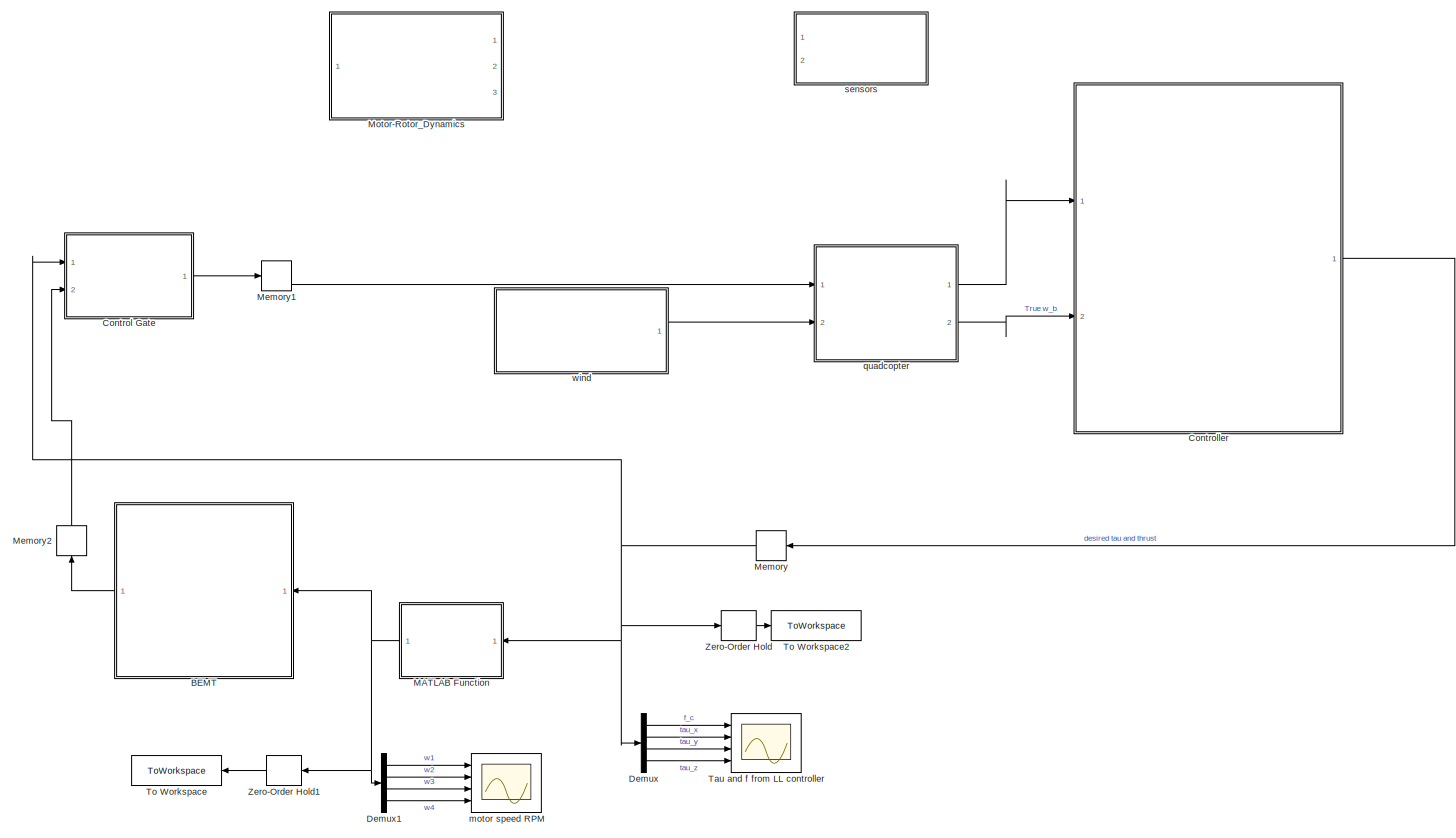
[diagram: root canvas - part 1/1, most of the canvas]
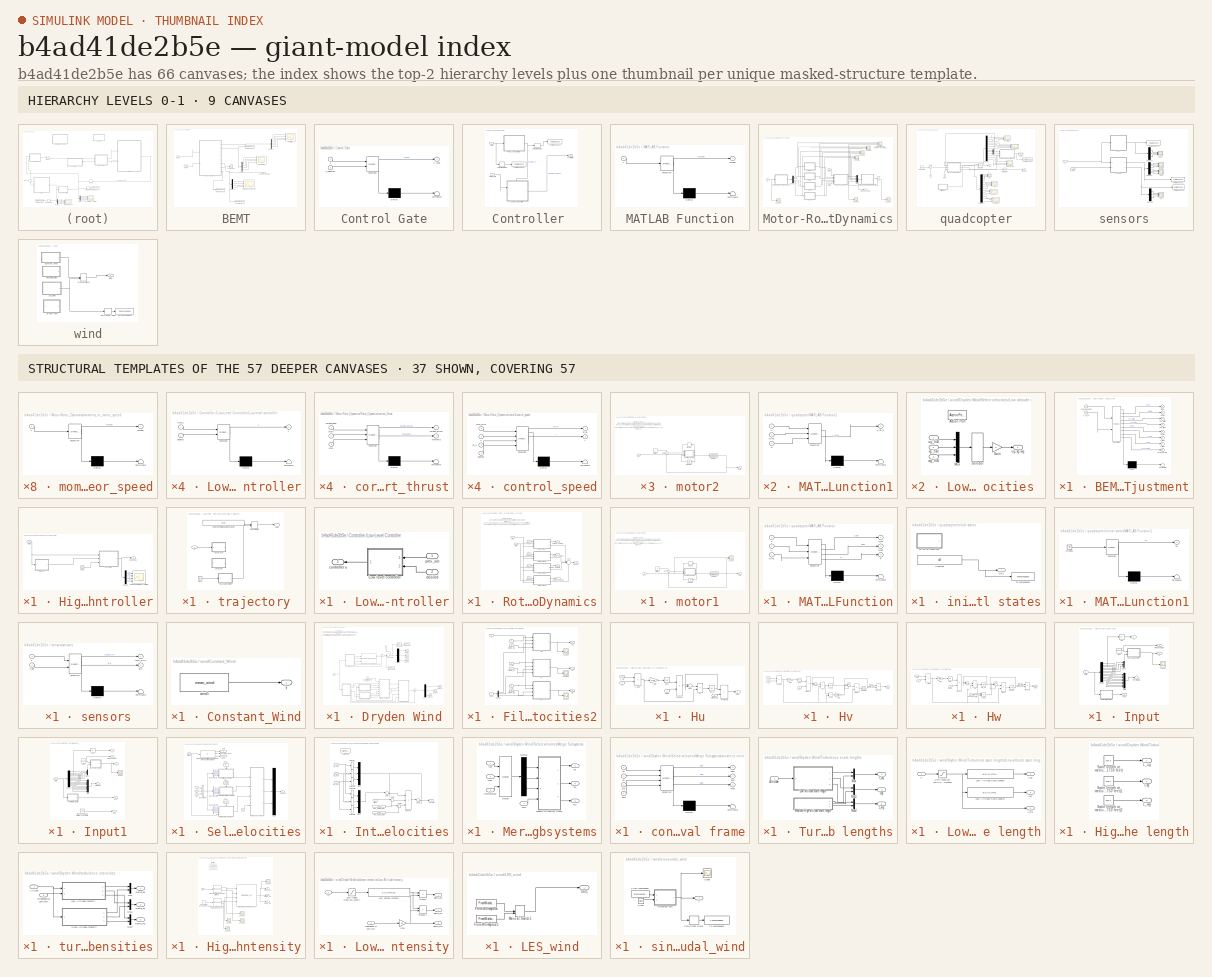
[diagram: thumbnail index - top-2 hierarchy levels (9 canvases) + 37 structural-template representatives of the remaining 57 canvases]
MODEL slx_b4ad41de2b5e
KIND model
CONFIG AbsTol = auto
CONFIG EnableMultiTasking = off
CONFIG FixedStep = 0.001
CONFIG MaxStep = auto
CONFIG MinStep = auto
CONFIG RelTol = 1e-6
CONFIG SampleTimeConstraint = Unconstrained
CONFIG SolverName = ode4
CONFIG StartTime = 0.0
CONFIG StopTime = 14
BLOCK [SubSystem] BEMT
  Ports = [1, 1]
  RequestExecContextInheritance = off
BLOCK [Scope] BEMT/Adjusted F_c and Tau
  Floating = off
  NumInputPorts = 4
  Ports = [4]
  ScopeSpecificationString = Simulink.scopes.TimeScopeBlockCfg('CurrentConfiguration', extmgr.ConfigurationSet(extmgr.Configuration('Core','General UI',true),extmgr.Configuration('Core','Source UI',true),extmgr.Configuration('Sources','WiredSimulink',true,'DataLoggingVariableName','ScopeData1'),extmgr.Configuration('Visuals','Time Domain',true,'SerializedDisplays',{struct('MinYLimReal','-2.08595','MaxYLimReal','14.15512','YLa...<+1442ch>
BLOCK [Scope] BEMT/Adjusted RPM
  Floating = off
  NumInputPorts = 4
  Ports = [4]
  ScopeSpecificationString = Simulink.scopes.TimeScopeBlockCfg('CurrentConfiguration', extmgr.ConfigurationSet(extmgr.Configuration('Core','General UI',true),extmgr.Configuration('Core','Source UI',true),extmgr.Configuration('Sources','WiredSimulink',true,'DataLoggingVariableName','ScopeData2'),extmgr.Configuration('Visuals','Time Domain',true,'SerializedDisplays',{struct('MinYLimReal','-3484.58545','MaxYLimReal','31361.26904...<+1420ch>
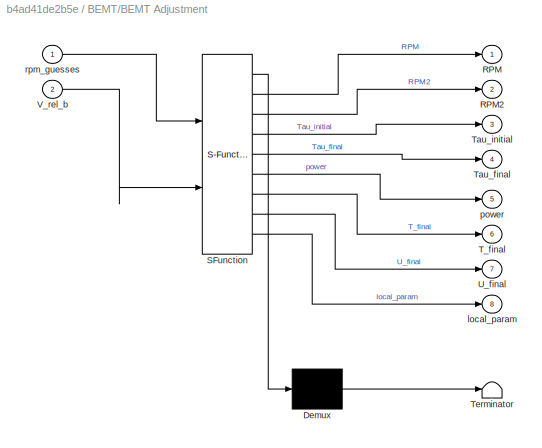
BLOCK [SubSystem] BEMT/BEMT Adjustment
  ErrorFcn = Stateflow.Translate.translate
  PermitHierarchicalResolution = ExplicitOnly
  Ports = [2, 8]
  RequestExecContextInheritance = off
  SFBlockType = MATLAB Function
  TreatAsAtomicUnit = on
BLOCK [Demux] BEMT/BEMT Adjustment/ Demux 
  Outputs = 1
  Ports = [1, 1]
BLOCK [S-Function] BEMT/BEMT Adjustment/ SFunction 
  EnableBusSupport = on
  FunctionName = sf_sfun
  Parameters = P
  PortCounts = [2 9]
  Ports = [2, 9]
  SFcnIsStateOwnerBlock = off
  SFunctionDeploymentMode = off
  Tag = Stateflow S-Function 9
BLOCK [Terminator] BEMT/BEMT Adjustment/ Terminator 
BLOCK [Outport] BEMT/BEMT Adjustment/RPM
BLOCK [Outport] BEMT/BEMT Adjustment/RPM2
  Port = 2
BLOCK [Outport] BEMT/BEMT Adjustment/T_final
  Port = 6
BLOCK [Outport] BEMT/BEMT Adjustment/Tau_final
  Port = 4
BLOCK [Outport] BEMT/BEMT Adjustment/Tau_initial
  Port = 3
BLOCK [Outport] BEMT/BEMT Adjustment/U_final
  Port = 7
BLOCK [Inport] BEMT/BEMT Adjustment/V_rel_b
  Port = 2
BLOCK [Outport] BEMT/BEMT Adjustment/local_param
  Port = 8
BLOCK [Outport] BEMT/BEMT Adjustment/power
  Port = 5
BLOCK [Inport] BEMT/BEMT Adjustment/rpm_guesses
BLOCK [Demux] BEMT/Demux
  Ports = [1, 4]
BLOCK [Demux] BEMT/Demux1
  Ports = [1, 4]
BLOCK [Demux] BEMT/Demux2
  Ports = [1, 4]
BLOCK [Scope] BEMT/Final Thurst
  Floating = off
  NumInputPorts = 1
  Ports = [1]
  ScopeSpecificationString = Simulink.scopes.TimeScopeBlockCfg('CurrentConfiguration', extmgr.ConfigurationSet(extmgr.Configuration('Core','General UI',true),extmgr.Configuration('Core','Source UI',true),extmgr.Configuration('Sources','WiredSimulink',true,'DataLoggingVariableName','ScopeData3'),extmgr.Configuration('Visuals','Time Domain',true,'SerializedDisplays',{struct('MinYLimReal','-37.27828','MaxYLimReal','18.98463','YL...<+1421ch>
BLOCK [From] BEMT/From
  GotoTag = V_rel_b
  TagVisibility = global
BLOCK [Scope] BEMT/RPM initial
  Floating = off
  NumInputPorts = 4
  Ports = [4]
  ScopeSpecificationString = Simulink.scopes.TimeScopeBlockCfg('CurrentConfiguration', extmgr.ConfigurationSet(extmgr.Configuration('Core','General UI',true),extmgr.Configuration('Core','Source UI',true),extmgr.Configuration('Sources','WiredSimulink',true,'DataLoggingVariableName','ScopeData1'),extmgr.Configuration('Visuals','Time Domain',true,'SerializedDisplays',{struct('MinYLimReal','-3033.05232','MaxYLimReal','28114.78356...<+1420ch>
BLOCK [ToWorkspace] BEMT/To Workspace
  FixptAsFi = on
  MaxDataPoints = inf
  Ports = [1]
  SampleTime = -1
  Save2DSignal = 2-D array (concatenate along first dimension)
  VariableName = control_force_adjusted
BLOCK [ToWorkspace] BEMT/To Workspace1
  FixptAsFi = on
  MaxDataPoints = inf
  Ports = [1]
  SampleTime = -1
  Save2DSignal = 2-D array (concatenate along first dimension)
  VariableName = rotor_RPM_adjusted
BLOCK [ToWorkspace] BEMT/To Workspace2
  FixptAsFi = on
  MaxDataPoints = inf
  Ports = [1]
  SampleTime = -1
  Save2DSignal = 2-D array (concatenate along first dimension)
  VariableName = local_param
BLOCK [Outport] BEMT/U_BEMT_adjusted
BLOCK [Inport] BEMT/omega
BLOCK [SubSystem] Control Gate
  ErrorFcn = Stateflow.Translate.translate
  PermitHierarchicalResolution = ExplicitOnly
  Ports = [2, 1]
  RequestExecContextInheritance = off
  SFBlockType = MATLAB Function
  TreatAsAtomicUnit = on
BLOCK [Demux] Control Gate/ Demux 
  Outputs = 1
  Ports = [1, 1]
BLOCK [S-Function] Control Gate/ SFunction 
  EnableBusSupport = on
  FunctionName = sf_sfun
  PortCounts = [2 2]
  Ports = [2, 2]
  SFcnIsStateOwnerBlock = off
  SFunctionDeploymentMode = off
  Tag = Stateflow S-Function 12
BLOCK [Terminator] Control Gate/ Terminator 
BLOCK [Outport] Control Gate/U_final
BLOCK [Inport] Control Gate/u
BLOCK [Inport] Control Gate/u_adjusted
  Port = 2
BLOCK [SubSystem] Controller 
  Ports = [2, 1]
  RequestExecContextInheritance = off
BLOCK [SubSystem] Controller /High Level Controller
  Ports = [1, 1]
  RequestExecContextInheritance = off
BLOCK [Outport] Controller /High Level Controller/ wx,wy,wz, f_c
BLOCK [Clock] Controller /High Level Controller/Clock
BLOCK [Demux] Controller /High Level Controller/Demux
  Ports = [1, 4]
BLOCK [SubSystem] Controller /High Level Controller/RS Controller
  ErrorFcn = Stateflow.Translate.translate
  InitFcn = run("get_finitegain.m")
  PermitHierarchicalResolution = ExplicitOnly
  Ports = [3, 1]
  RequestExecContextInheritance = off
  SFBlockType = MATLAB Function
  SystemSampleTime = .05
  TreatAsAtomicUnit = on
BLOCK [Demux] Controller /High Level Controller/RS Controller/ Demux 
  Outputs = 1
  Ports = [1, 1]
BLOCK [S-Function] Controller /High Level Controller/RS Controller/ SFunction 
  EnableBusSupport = on
  FunctionName = sf_sfun
  Parameters = P
  PortCounts = [3 2]
  Ports = [3, 2]
  SFcnIsStateOwnerBlock = off
  SFunctionDeploymentMode = off
  Tag = Stateflow S-Function 13
BLOCK [Terminator] Controller /High Level Controller/RS Controller/ Terminator 
BLOCK [Inport] Controller /High Level Controller/RS Controller/r
  Port = 2
BLOCK [Inport] Controller /High Level Controller/RS Controller/t
  Port = 3
BLOCK [Inport] Controller /High Level Controller/RS Controller/x
BLOCK [Outport] Controller /High Level Controller/RS Controller/y
BLOCK [Inport] Controller /High Level Controller/State
BLOCK [Scope] Controller /High Level Controller/omega and fc from HL controller
  Floating = off
  NumInputPorts = 4
  Ports = [4]
  ScopeSpecificationString = Simulink.scopes.TimeScopeBlockCfg('CurrentConfiguration', extmgr.ConfigurationSet(extmgr.Configuration('Core','General UI',true),extmgr.Configuration('Core','Source UI',true),extmgr.Configuration('Sources','WiredSimulink',true,'DataLoggingVariableName','ScopeData8'),extmgr.Configuration('Visuals','Time Domain',true,'SerializedDisplays',{struct('MinYLimReal','-8.52109','MaxYLimReal','25.79731','YLa...<+1410ch>
BLOCK [SubSystem] Controller /High Level Controller/trajectory
  Ports = [1, 1]
  RequestExecContextInheritance = off
BLOCK [Clock] Controller /High Level Controller/trajectory/Clock
BLOCK [Constant] Controller /High Level Controller/trajectory/Desired Position, quat and velocity 
  Value = xref
BLOCK [SubSystem] Controller /High Level Controller/trajectory/MATLAB Function
  ErrorFcn = Stateflow.Translate.translate
  PermitHierarchicalResolution = ExplicitOnly
  Ports = [1, 1]
  RequestExecContextInheritance = off
  SFBlockType = MATLAB Function
  TreatAsAtomicUnit = on
BLOCK [Demux] Controller /High Level Controller/trajectory/MATLAB Function/ Demux 
  Outputs = 1
  Ports = [1, 1]
BLOCK [S-Function] Controller /High Level Controller/trajectory/MATLAB Function/ SFunction 
  EnableBusSupport = on
  FunctionName = sf_sfun
  Parameters = P
  PortCounts = [1 2]
  Ports = [1, 2]
  SFcnIsStateOwnerBlock = off
  SFunctionDeploymentMode = off
  Tag = Stateflow S-Function 3
BLOCK [Terminator] Controller /High Level Controller/trajectory/MATLAB Function/ Terminator 
BLOCK [Inport] Controller /High Level Controller/trajectory/MATLAB Function/t
BLOCK [Outport] Controller /High Level Controller/trajectory/MATLAB Function/xdes
BLOCK [ManualSwitch] Controller /High Level Controller/trajectory/Manual Switch
  CurrentSetting = 0
BLOCK [Outport] Controller /High Level Controller/trajectory/Out1
BLOCK [Inport] Controller /High Level Controller/trajectory/X
BLOCK [SubSystem] Controller /High Level Controller/trajectory/circle_traj
  Commented = on
  ErrorFcn = Stateflow.Translate.translate
  PermitHierarchicalResolution = ExplicitOnly
  Ports = [1, 1]
  RequestExecContextInheritance = off
  SFBlockType = MATLAB Function
  TreatAsAtomicUnit = on
BLOCK [Demux] Controller /High Level Controller/trajectory/circle_traj/ Demux 
  Outputs = 1
  Ports = [1, 1]
BLOCK [S-Function] Controller /High Level Controller/trajectory/circle_traj/ SFunction 
  EnableBusSupport = on
  FunctionName = sf_sfun
  PortCounts = [1 2]
  Ports = [1, 2]
  SFcnIsStateOwnerBlock = off
  SFunctionDeploymentMode = off
  Tag = Stateflow S-Function 14
BLOCK [Terminator] Controller /High Level Controller/trajectory/circle_traj/ Terminator 
BLOCK [Inport] Controller /High Level Controller/trajectory/circle_traj/X
BLOCK [Outport] Controller /High Level Controller/trajectory/circle_traj/y
BLOCK [SubSystem] Controller /High Level Controller/trajectory/squre_traj
  Commented = on
  ErrorFcn = Stateflow.Translate.translate
  PermitHierarchicalResolution = ExplicitOnly
  Ports = [1, 1]
  RequestExecContextInheritance = off
  SFBlockType = MATLAB Function
  TreatAsAtomicUnit = on
BLOCK [Demux] Controller /High Level Controller/trajectory/squre_traj/ Demux 
  Outputs = 1
  Ports = [1, 1]
BLOCK [S-Function] Controller /High Level Controller/trajectory/squre_traj/ SFunction 
  EnableBusSupport = on
  FunctionName = sf_sfun
  PortCounts = [1 2]
  Ports = [1, 2]
  SFcnIsStateOwnerBlock = off
  SFunctionDeploymentMode = off
  Tag = Stateflow S-Function 15
BLOCK [Terminator] Controller /High Level Controller/trajectory/squre_traj/ Terminator 
BLOCK [Inport] Controller /High Level Controller/trajectory/squre_traj/X
BLOCK [Outport] Controller /High Level Controller/trajectory/squre_traj/y
BLOCK [SubSystem] Controller /Low-Level Controller
  NameLocation = top
  PortSchema = {"entries":[{"content":{"sides":[{"content":{"connectorIds":["In1"]},"type":"ConnectorPlacement.EquallySpacedRectSide","uuid":"a33d16ce-9843-4a8f-a539-e48e55dea327"},{"content":{"connectorIds":["Out1"],"side":"RIGHT"},"type":"ConnectorPlacement.EquallySpacedRectSide","uuid":"666ca801-6962-4f07-8037-ca18b43ecb76"},{"content":{"connectorIds":["In2"],"side":"TOP"},"type":"ConnectorPlacement.EquallySp...<+245ch>
  Ports = [2, 1]
  RequestExecContextInheritance = off
BLOCK [SubSystem] Controller /Low-Level Controller/Low level controller
  ErrorFcn = Stateflow.Translate.translate
  NameLocation = top
  PermitHierarchicalResolution = ExplicitOnly
  Ports = [2, 1]
  RequestExecContextInheritance = off
  SFBlockType = MATLAB Function
  SystemSampleTime = .005
  TreatAsAtomicUnit = on
BLOCK [Demux] Controller /Low-Level Controller/Low level controller/ Demux 
  Outputs = 1
  Ports = [1, 1]
BLOCK [S-Function] Controller /Low-Level Controller/Low level controller/ SFunction 
  EnableBusSupport = on
  FunctionName = sf_sfun
  Parameters = P
  PortCounts = [2 2]
  Ports = [2, 2]
  SFcnIsStateOwnerBlock = off
  SFunctionDeploymentMode = off
  Tag = Stateflow S-Function 16
BLOCK [Terminator] Controller /Low-Level Controller/Low level controller/ Terminator 
BLOCK [Inport] Controller /Low-Level Controller/Low level controller/desired
  Port = 2
BLOCK [Inport] Controller /Low-Level Controller/Low level controller/true_u
BLOCK [Outport] Controller /Low-Level Controller/Low level controller/u
BLOCK [Outport] Controller /Low-Level Controller/controller u
BLOCK [Inport] Controller /Low-Level Controller/desired
  Port = 2
BLOCK [Inport] Controller /Low-Level Controller/prev_wb
BLOCK [Inport] Controller /State
BLOCK [ToWorkspace] Controller /To Workspace1
  FixptAsFi = on
  MaxDataPoints = inf
  Ports = [1]
  SampleTime = -1
  Save2DSignal = 2-D array (concatenate along first dimension)
  VariableName = controller_omega
BLOCK [ToWorkspace] Controller /To Workspace5
  FixptAsFi = on
  MaxDataPoints = inf
  Ports = [1]
  SampleTime = -1
  Save2DSignal = 2-D array (concatenate along first dimension)
  VariableName = states
BLOCK [ZeroOrderHold] Controller /Zero-Order Hold1
  SampleTime = 0.01
BLOCK [ZeroOrderHold] Controller /Zero-Order Hold2
  SampleTime = 0.01
BLOCK [Outport] Controller /controller u
BLOCK [Inport] Controller /current_wb
  Port = 2
BLOCK [Demux] Demux
  Ports = [1, 4]
BLOCK [Demux] Demux1
  Ports = [1, 4]
BLOCK [SubSystem] MATLAB Function
  ErrorFcn = Stateflow.Translate.translate
  PermitHierarchicalResolution = ExplicitOnly
  Ports = [1, 1]
  RequestExecContextInheritance = off
  SFBlockType = MATLAB Function
  TreatAsAtomicUnit = on
BLOCK [Demux] MATLAB Function/ Demux 
  Outputs = 1
  Ports = [1, 1]
BLOCK [S-Function] MATLAB Function/ SFunction 
  EnableBusSupport = on
  FunctionName = sf_sfun
  Parameters = P
  PortCounts = [1 2]
  Ports = [1, 2]
  SFcnIsStateOwnerBlock = off
  SFunctionDeploymentMode = off
  Tag = Stateflow S-Function 4
BLOCK [Terminator] MATLAB Function/ Terminator 
BLOCK [Outport] MATLAB Function/omega
BLOCK [Inport] MATLAB Function/u
BLOCK [Memory] Memory
BLOCK [Memory] Memory1
  NameLocation = top
BLOCK [Memory] Memory2
  NameLocation = left
BLOCK [SubSystem] Motor-Rotor_Dynamics
  Commented = on
  NameLocation = top
  Ports = [3, 1]
  RequestExecContextInheritance = off
BLOCK [Demux] Motor-Rotor_Dynamics/Demux
  Ports = [1, 4]
BLOCK [Mux] Motor-Rotor_Dynamics/Mux
  DisplayOption = bar
  Ports = [4, 1]
BLOCK [SubSystem] Motor-Rotor_Dynamics/Rotor_Dynamics
  Ports = [6, 5]
  RequestExecContextInheritance = off
BLOCK [Outport] Motor-Rotor_Dynamics/Rotor_Dynamics/Moment
  Port = 5
BLOCK [Sum] Motor-Rotor_Dynamics/Rotor_Dynamics/Sum
  Inputs = |++++
  Ports = [4, 1]
BLOCK [SubSystem] Motor-Rotor_Dynamics/Rotor_Dynamics/correct_thrust
  ErrorFcn = Stateflow.Translate.translate
  PermitHierarchicalResolution = ExplicitOnly
  Ports = [3, 2]
  RequestExecContextInheritance = off
  SFBlockType = MATLAB Function
  TreatAsAtomicUnit = on
BLOCK [Demux] Motor-Rotor_Dynamics/Rotor_Dynamics/correct_thrust/ Demux 
  Outputs = 1
  Ports = [1, 1]
BLOCK [S-Function] Motor-Rotor_Dynamics/Rotor_Dynamics/correct_thrust/ SFunction 
  EnableBusSupport = on
  FunctionName = sf_sfun
  Parameters = P
  PortCounts = [3 3]
  Ports = [3, 3]
  SFcnIsStateOwnerBlock = off
  SFunctionDeploymentMode = off
  Tag = Stateflow S-Function 31
BLOCK [Terminator] Motor-Rotor_Dynamics/Rotor_Dynamics/correct_thrust/ Terminator 
BLOCK [Outport] Motor-Rotor_Dynamics/Rotor_Dynamics/correct_thrust/moments
  Port = 2
BLOCK [Outport] Motor-Rotor_Dynamics/Rotor_Dynamics/correct_thrust/omega_actual
BLOCK [Inport] Motor-Rotor_Dynamics/Rotor_Dynamics/correct_thrust/omega_ideal
BLOCK [Inport] Motor-Rotor_Dynamics/Rotor_Dynamics/correct_thrust/state
  Port = 2
BLOCK [Inport] Motor-Rotor_Dynamics/Rotor_Dynamics/correct_thrust/wind
  Port = 3
BLOCK [SubSystem] Motor-Rotor_Dynamics/Rotor_Dynamics/correct_thrust1
  ErrorFcn = Stateflow.Translate.translate
  PermitHierarchicalResolution = ExplicitOnly
  Ports = [3, 2]
  RequestExecContextInheritance = off
  SFBlockType = MATLAB Function
  TreatAsAtomicUnit = on
BLOCK [Demux] Motor-Rotor_Dynamics/Rotor_Dynamics/correct_thrust1/ Demux 
  Outputs = 1
  Ports = [1, 1]
BLOCK [S-Function] Motor-Rotor_Dynamics/Rotor_Dynamics/correct_thrust1/ SFunction 
  EnableBusSupport = on
  FunctionName = sf_sfun
  Parameters = P
  PortCounts = [3 3]
  Ports = [3, 3]
  SFcnIsStateOwnerBlock = off
  SFunctionDeploymentMode = off
  Tag = Stateflow S-Function 32
BLOCK [Terminator] Motor-Rotor_Dynamics/Rotor_Dynamics/correct_thrust1/ Terminator 
BLOCK [Outport] Motor-Rotor_Dynamics/Rotor_Dynamics/correct_thrust1/moments
  Port = 2
BLOCK [Outport] Motor-Rotor_Dynamics/Rotor_Dynamics/correct_thrust1/omega_actual
BLOCK [Inport] Motor-Rotor_Dynamics/Rotor_Dynamics/correct_thrust1/omega_ideal
BLOCK [Inport] Motor-Rotor_Dynamics/Rotor_Dynamics/correct_thrust1/state
  Port = 2
BLOCK [Inport] Motor-Rotor_Dynamics/Rotor_Dynamics/correct_thrust1/wind
  Port = 3
BLOCK [SubSystem] Motor-Rotor_Dynamics/Rotor_Dynamics/correct_thrust2
  ErrorFcn = Stateflow.Translate.translate
  PermitHierarchicalResolution = ExplicitOnly
  Ports = [3, 2]
  RequestExecContextInheritance = off
  SFBlockType = MATLAB Function
  TreatAsAtomicUnit = on
BLOCK [Demux] Motor-Rotor_Dynamics/Rotor_Dynamics/correct_thrust2/ Demux 
  Outputs = 1
  Ports = [1, 1]
BLOCK [S-Function] Motor-Rotor_Dynamics/Rotor_Dynamics/correct_thrust2/ SFunction 
  EnableBusSupport = on
  FunctionName = sf_sfun
  Parameters = P
  PortCounts = [3 3]
  Ports = [3, 3]
  SFcnIsStateOwnerBlock = off
  SFunctionDeploymentMode = off
  Tag = Stateflow S-Function 33
BLOCK [Terminator] Motor-Rotor_Dynamics/Rotor_Dynamics/correct_thrust2/ Terminator 
BLOCK [Outport] Motor-Rotor_Dynamics/Rotor_Dynamics/correct_thrust2/moments
  Port = 2
BLOCK [Outport] Motor-Rotor_Dynamics/Rotor_Dynamics/correct_thrust2/omega_actual
BLOCK [Inport] Motor-Rotor_Dynamics/Rotor_Dynamics/correct_thrust2/omega_ideal
BLOCK [Inport] Motor-Rotor_Dynamics/Rotor_Dynamics/correct_thrust2/state
  Port = 2
BLOCK [Inport] Motor-Rotor_Dynamics/Rotor_Dynamics/correct_thrust2/wind
  Port = 3
BLOCK [SubSystem] Motor-Rotor_Dynamics/Rotor_Dynamics/correct_thrust3
  ErrorFcn = Stateflow.Translate.translate
  PermitHierarchicalResolution = ExplicitOnly
  Ports = [3, 2]
  RequestExecContextInheritance = off
  SFBlockType = MATLAB Function
  TreatAsAtomicUnit = on
BLOCK [Demux] Motor-Rotor_Dynamics/Rotor_Dynamics/correct_thrust3/ Demux 
  Outputs = 1
  Ports = [1, 1]
BLOCK [S-Function] Motor-Rotor_Dynamics/Rotor_Dynamics/correct_thrust3/ SFunction 
  EnableBusSupport = on
  FunctionName = sf_sfun
  Parameters = P
  PortCounts = [3 3]
  Ports = [3, 3]
  SFcnIsStateOwnerBlock = off
  SFunctionDeploymentMode = off
  Tag = Stateflow S-Function 34
BLOCK [Terminator] Motor-Rotor_Dynamics/Rotor_Dynamics/correct_thrust3/ Terminator 
BLOCK [Outport] Motor-Rotor_Dynamics/Rotor_Dynamics/correct_thrust3/moments
  Port = 2
BLOCK [Outport] Motor-Rotor_Dynamics/Rotor_Dynamics/correct_thrust3/omega_actual
BLOCK [Inport] Motor-Rotor_Dynamics/Rotor_Dynamics/correct_thrust3/omega_ideal
BLOCK [Inport] Motor-Rotor_Dynamics/Rotor_Dynamics/correct_thrust3/state
  Port = 2
BLOCK [Inport] Motor-Rotor_Dynamics/Rotor_Dynamics/correct_thrust3/wind
  Port = 3
BLOCK [Inport] Motor-Rotor_Dynamics/Rotor_Dynamics/omega1
  Port = 2
BLOCK [Inport] Motor-Rotor_Dynamics/Rotor_Dynamics/omega2
  Port = 3
BLOCK [Inport] Motor-Rotor_Dynamics/Rotor_Dynamics/omega3
  Port = 4
BLOCK [Inport] Motor-Rotor_Dynamics/Rotor_Dynamics/omega4
  Port = 5
BLOCK [Outport] Motor-Rotor_Dynamics/Rotor_Dynamics/omega_actual1
BLOCK [Outport] Motor-Rotor_Dynamics/Rotor_Dynamics/omega_actual2
  Port = 2
BLOCK [Outport] Motor-Rotor_Dynamics/Rotor_Dynamics/omega_actual3
  Port = 3
BLOCK [Outport] Motor-Rotor_Dynamics/Rotor_Dynamics/omega_actual4
  NameLocation = top
  Port = 4
BLOCK [Inport] Motor-Rotor_Dynamics/Rotor_Dynamics/state
BLOCK [Inport] Motor-Rotor_Dynamics/Rotor_Dynamics/wind
  Port = 6
BLOCK [Scope] Motor-Rotor_Dynamics/Scope1
  Floating = off
  NumInputPorts = 3
  Ports = [3]
  ScopeSpecificationString = Simulink.scopes.TimeScopeBlockCfg('CurrentConfiguration', extmgr.ConfigurationSet(extmgr.Configuration('Core','General UI',true),extmgr.Configuration('Core','Source UI',true),extmgr.Configuration('Sources','WiredSimulink',true,'DataLoggingVariableName','ScopeData1'),extmgr.Configuration('Visuals','Time Domain',true,'SerializedDisplays',{struct('MinYLimReal','-1133.57567','MaxYLimReal','1681.81627'...<+1523ch>
BLOCK [Scope] Motor-Rotor_Dynamics/Scope2
  Floating = off
  NumInputPorts = 1
  Ports = [1]
  ScopeSpecificationString = Simulink.scopes.TimeScopeBlockCfg('CurrentConfiguration', extmgr.ConfigurationSet(extmgr.Configuration('Core','General UI',true),extmgr.Configuration('Core','Source UI',true),extmgr.Configuration('Sources','WiredSimulink',true,'DataLoggingVariableName','ScopeData2'),extmgr.Configuration('Visuals','Time Domain',true,'SerializedDisplays',{struct('MinYLimReal','-1.00000','MaxYLimReal','1.00000','YLab...<+1440ch>
BLOCK [Scope] Motor-Rotor_Dynamics/Scope3
  Floating = off
  NumInputPorts = 3
  Ports = [3]
  ScopeSpecificationString = Simulink.scopes.TimeScopeBlockCfg('CurrentConfiguration', extmgr.ConfigurationSet(extmgr.Configuration('Core','General UI',true),extmgr.Configuration('Core','Source UI',true),extmgr.Configuration('Sources','WiredSimulink',true,'DataLoggingVariableName','ScopeData3'),extmgr.Configuration('Visuals','Time Domain',true,'SerializedDisplays',{struct('MinYLimReal','-666.28097','MaxYLimReal','1319.54194',...<+1519ch>
BLOCK [Scope] Motor-Rotor_Dynamics/Scope4
  Floating = off
  NumInputPorts = 3
  Ports = [3]
  ScopeSpecificationString = Simulink.scopes.TimeScopeBlockCfg('CurrentConfiguration', extmgr.ConfigurationSet(extmgr.Configuration('Core','General UI',true),extmgr.Configuration('Core','Source UI',true),extmgr.Configuration('Sources','WiredSimulink',true,'DataLoggingVariableName','ScopeData4'),extmgr.Configuration('Visuals','Time Domain',true,'SerializedDisplays',{struct('MinYLimReal','-769.64581','MaxYLimReal','1186.42785',...<+1519ch>
BLOCK [Scope] Motor-Rotor_Dynamics/Scope5
  Floating = off
  NumInputPorts = 1
  Ports = [1]
  ScopeSpecificationString = Simulink.scopes.TimeScopeBlockCfg('CurrentConfiguration', extmgr.ConfigurationSet(extmgr.Configuration('Core','General UI',true),extmgr.Configuration('Core','Source UI',true),extmgr.Configuration('Sources','WiredSimulink',true,'DataLoggingVariableName','ScopeData1'),extmgr.Configuration('Visuals','Time Domain',true,'SerializedDisplays',{struct('MinYLimReal','-20.35322','MaxYLimReal','43.83396','YL...<+1457ch>
BLOCK [Scope] Motor-Rotor_Dynamics/Scope6
  Floating = off
  NumInputPorts = 1
  Ports = [1]
  ScopeSpecificationString = Simulink.scopes.TimeScopeBlockCfg('CurrentConfiguration', extmgr.ConfigurationSet(extmgr.Configuration('Core','General UI',true),extmgr.Configuration('Core','Source UI',true),extmgr.Configuration('Sources','WiredSimulink',true,'DataLoggingVariableName','ScopeData6'),extmgr.Configuration('Visuals','Time Domain',true,'SerializedDisplays',{struct('MinYLimReal','-6.49642','MaxYLimReal','39.0189','YLab...<+1459ch>
BLOCK [Sum] Motor-Rotor_Dynamics/Sum
  Inputs = |++
  Ports = [2, 1]
BLOCK [Scope] Motor-Rotor_Dynamics/comparison of desired omega, omega after motor dynamics, omega after rotor dynamics 
  Floating = off
  NumInputPorts = 3
  Ports = [3]
  ScopeSpecificationString = Simulink.scopes.TimeScopeBlockCfg('CurrentConfiguration', extmgr.ConfigurationSet(extmgr.Configuration('Core','General UI',true),extmgr.Configuration('Core','Source UI',true),extmgr.Configuration('Sources','WiredSimulink',true,'DataLoggingVariableName','ScopeData1'),extmgr.Configuration('Visuals','Time Domain',true,'SerializedDisplays',{struct('MinYLimReal','-52.31024','MaxYLimReal','470.79219','Y...<+1536ch>
BLOCK [SubSystem] Motor-Rotor_Dynamics/moments_to_motor_speed
  ErrorFcn = Stateflow.Translate.translate
  PermitHierarchicalResolution = ExplicitOnly
  Ports = [1, 1]
  RequestExecContextInheritance = off
  SFBlockType = MATLAB Function
  TreatAsAtomicUnit = on
BLOCK [Demux] Motor-Rotor_Dynamics/moments_to_motor_speed/ Demux 
  Outputs = 1
  Ports = [1, 1]
BLOCK [S-Function] Motor-Rotor_Dynamics/moments_to_motor_speed/ SFunction 
  EnableBusSupport = on
  FunctionName = sf_sfun
  Parameters = P
  PortCounts = [1 2]
  Ports = [1, 2]
  SFcnIsStateOwnerBlock = off
  SFunctionDeploymentMode = off
  Tag = Stateflow S-Function 35
BLOCK [Terminator] Motor-Rotor_Dynamics/moments_to_motor_speed/ Terminator 
BLOCK [Outport] Motor-Rotor_Dynamics/moments_to_motor_speed/omega
BLOCK [Inport] Motor-Rotor_Dynamics/moments_to_motor_speed/u
BLOCK [SubSystem] Motor-Rotor_Dynamics/motor1
  Ports = [1, 1]
  RequestExecContextInheritance = off
BLOCK [Inport] Motor-Rotor_Dynamics/motor1/In1
BLOCK [Integrator] Motor-Rotor_Dynamics/motor1/Integrator
  Ports = [1, 1]
BLOCK [Memory] Motor-Rotor_Dynamics/motor1/Memory
BLOCK [Outport] Motor-Rotor_Dynamics/motor1/Out2
BLOCK [Scope] Motor-Rotor_Dynamics/motor1/Scope
  Floating = off
  NumInputPorts = 2
  Ports = [2]
  ScopeSpecificationString = Simulink.scopes.TimeScopeBlockCfg('CurrentConfiguration', extmgr.ConfigurationSet(extmgr.Configuration('Core','General UI',true),extmgr.Configuration('Core','Source UI',true),extmgr.Configuration('Sources','WiredSimulink',true,'DataLoggingVariableName','ScopeData3'),extmgr.Configuration('Visuals','Time Domain',true,'SerializedDisplays',{struct('MinYLimReal','-126.53206','MaxYLimReal','1138.78855',...<+2094ch>
BLOCK [Sum] Motor-Rotor_Dynamics/motor1/Sum
  Ports = [2, 1]
BLOCK [SubSystem] Motor-Rotor_Dynamics/motor1/control_speed
  ErrorFcn = Stateflow.Translate.translate
  PermitHierarchicalResolution = ExplicitOnly
  Ports = [4, 2]
  RequestExecContextInheritance = off
  SFBlockType = MATLAB Function
  TreatAsAtomicUnit = on
BLOCK [Demux] Motor-Rotor_Dynamics/motor1/control_speed/ Demux 
  Outputs = 1
  Ports = [1, 1]
BLOCK [S-Function] Motor-Rotor_Dynamics/motor1/control_speed/ SFunction 
  EnableBusSupport = on
  FunctionName = sf_sfun
  Parameters = P
  PortCounts = [4 3]
  Ports = [4, 3]
  SFcnIsStateOwnerBlock = off
  SFunctionDeploymentMode = off
  Tag = Stateflow S-Function 40
BLOCK [Terminator] Motor-Rotor_Dynamics/motor1/control_speed/ Terminator 
BLOCK [Inport] Motor-Rotor_Dynamics/motor1/control_speed/desired
  Port = 4
BLOCK [Outport] Motor-Rotor_Dynamics/motor1/control_speed/error
BLOCK [Inport] Motor-Rotor_Dynamics/motor1/control_speed/int_u
  Port = 3
BLOCK [Inport] Motor-Rotor_Dynamics/motor1/control_speed/prev_error
BLOCK [Inport] Motor-Rotor_Dynamics/motor1/control_speed/u
  Port = 2
BLOCK [Outport] Motor-Rotor_Dynamics/motor1/control_speed/y
  Port = 2
BLOCK [TransferFcn] Motor-Rotor_Dynamics/motor1/electrical
  Denominator = [1,189.5, 13412, 142834]
  Numerator = 2057342
BLOCK [Constant] Motor-Rotor_Dynamics/motor1/initialize
  Value = 0
BLOCK [SubSystem] Motor-Rotor_Dynamics/motor2
  Ports = [1, 1]
  RequestExecContextInheritance = off
BLOCK [Inport] Motor-Rotor_Dynamics/motor2/In1
BLOCK [Integrator] Motor-Rotor_Dynamics/motor2/Integrator
  Ports = [1, 1]
BLOCK [Memory] Motor-Rotor_Dynamics/motor2/Memory
BLOCK [Outport] Motor-Rotor_Dynamics/motor2/Out2
BLOCK [Sum] Motor-Rotor_Dynamics/motor2/Sum
  Ports = [2, 1]
BLOCK [SubSystem] Motor-Rotor_Dynamics/motor2/control_speed
  ErrorFcn = Stateflow.Translate.translate
  PermitHierarchicalResolution = ExplicitOnly
  Ports = [4, 2]
  RequestExecContextInheritance = off
  SFBlockType = MATLAB Function
  TreatAsAtomicUnit = on
BLOCK [Demux] Motor-Rotor_Dynamics/motor2/control_speed/ Demux 
  Outputs = 1
  Ports = [1, 1]
BLOCK [S-Function] Motor-Rotor_Dynamics/motor2/control_speed/ SFunction 
  EnableBusSupport = on
  FunctionName = sf_sfun
  Parameters = P
  PortCounts = [4 3]
  Ports = [4, 3]
  SFcnIsStateOwnerBlock = off
  SFunctionDeploymentMode = off
  Tag = Stateflow S-Function 53
BLOCK [Terminator] Motor-Rotor_Dynamics/motor2/control_speed/ Terminator 
BLOCK [Inport] Motor-Rotor_Dynamics/motor2/control_speed/desired
  Port = 4
BLOCK [Outport] Motor-Rotor_Dynamics/motor2/control_speed/error
BLOCK [Inport] Motor-Rotor_Dynamics/motor2/control_speed/int_u
  Port = 3
BLOCK [Inport] Motor-Rotor_Dynamics/motor2/control_speed/prev_error
BLOCK [Inport] Motor-Rotor_Dynamics/motor2/control_speed/u
  Port = 2
BLOCK [Outport] Motor-Rotor_Dynamics/motor2/control_speed/y
  Port = 2
BLOCK [TransferFcn] Motor-Rotor_Dynamics/motor2/electrical
  Denominator = [1,189.5, 13412, 142834]
  Numerator = 2057342
BLOCK [Constant] Motor-Rotor_Dynamics/motor2/initialize
  Value = 0
BLOCK [SubSystem] Motor-Rotor_Dynamics/motor3
  Ports = [1, 1]
  RequestExecContextInheritance = off
BLOCK [Inport] Motor-Rotor_Dynamics/motor3/In1
BLOCK [Integrator] Motor-Rotor_Dynamics/motor3/Integrator
  Ports = [1, 1]
BLOCK [Memory] Motor-Rotor_Dynamics/motor3/Memory
BLOCK [Outport] Motor-Rotor_Dynamics/motor3/Out2
BLOCK [Sum] Motor-Rotor_Dynamics/motor3/Sum
  Ports = [2, 1]
BLOCK [SubSystem] Motor-Rotor_Dynamics/motor3/control_speed
  ErrorFcn = Stateflow.Translate.translate
  PermitHierarchicalResolution = ExplicitOnly
  Ports = [4, 2]
  RequestExecContextInheritance = off
  SFBlockType = MATLAB Function
  TreatAsAtomicUnit = on
BLOCK [Demux] Motor-Rotor_Dynamics/motor3/control_speed/ Demux 
  Outputs = 1
  Ports = [1, 1]
BLOCK [S-Function] Motor-Rotor_Dynamics/motor3/control_speed/ SFunction 
  EnableBusSupport = on
  FunctionName = sf_sfun
  Parameters = P
  PortCounts = [4 3]
  Ports = [4, 3]
  SFcnIsStateOwnerBlock = off
  SFunctionDeploymentMode = off
  Tag = Stateflow S-Function 54
BLOCK [Terminator] Motor-Rotor_Dynamics/motor3/control_speed/ Terminator 
BLOCK [Inport] Motor-Rotor_Dynamics/motor3/control_speed/desired
  Port = 4
BLOCK [Outport] Motor-Rotor_Dynamics/motor3/control_speed/error
BLOCK [Inport] Motor-Rotor_Dynamics/motor3/control_speed/int_u
  Port = 3
BLOCK [Inport] Motor-Rotor_Dynamics/motor3/control_speed/prev_error
BLOCK [Inport] Motor-Rotor_Dynamics/motor3/control_speed/u
  Port = 2
BLOCK [Outport] Motor-Rotor_Dynamics/motor3/control_speed/y
  Port = 2
BLOCK [TransferFcn] Motor-Rotor_Dynamics/motor3/electrical
  Denominator = [1,189.5, 13412, 142834]
  Numerator = 2057342
BLOCK [Constant] Motor-Rotor_Dynamics/motor3/initialize
  Value = 0
BLOCK [SubSystem] Motor-Rotor_Dynamics/motor4
  Ports = [1, 1]
  RequestExecContextInheritance = off
BLOCK [Inport] Motor-Rotor_Dynamics/motor4/In1
BLOCK [Integrator] Motor-Rotor_Dynamics/motor4/Integrator
  Ports = [1, 1]
BLOCK [Memory] Motor-Rotor_Dynamics/motor4/Memory
BLOCK [Outport] Motor-Rotor_Dynamics/motor4/Out2
BLOCK [Sum] Motor-Rotor_Dynamics/motor4/Sum
  Ports = [2, 1]
BLOCK [SubSystem] Motor-Rotor_Dynamics/motor4/control_speed
  ErrorFcn = Stateflow.Translate.translate
  PermitHierarchicalResolution = ExplicitOnly
  Ports = [4, 2]
  RequestExecContextInheritance = off
  SFBlockType = MATLAB Function
  TreatAsAtomicUnit = on
BLOCK [Demux] Motor-Rotor_Dynamics/motor4/control_speed/ Demux 
  Outputs = 1
  Ports = [1, 1]
BLOCK [S-Function] Motor-Rotor_Dynamics/motor4/control_speed/ SFunction 
  EnableBusSupport = on
  FunctionName = sf_sfun
  Parameters = P
  PortCounts = [4 3]
  Ports = [4, 3]
  SFcnIsStateOwnerBlock = off
  SFunctionDeploymentMode = off
  Tag = Stateflow S-Function 55
BLOCK [Terminator] Motor-Rotor_Dynamics/motor4/control_speed/ Terminator 
BLOCK [Inport] Motor-Rotor_Dynamics/motor4/control_speed/desired
  Port = 4
BLOCK [Outport] Motor-Rotor_Dynamics/motor4/control_speed/error
BLOCK [Inport] Motor-Rotor_Dynamics/motor4/control_speed/int_u
  Port = 3
BLOCK [Inport] Motor-Rotor_Dynamics/motor4/control_speed/prev_error
BLOCK [Inport] Motor-Rotor_Dynamics/motor4/control_speed/u
  Port = 2
BLOCK [Outport] Motor-Rotor_Dynamics/motor4/control_speed/y
  Port = 2
BLOCK [TransferFcn] Motor-Rotor_Dynamics/motor4/electrical
  Denominator = [1,189.5, 13412, 142834]
  Numerator = 2057342
BLOCK [Constant] Motor-Rotor_Dynamics/motor4/initialize
  Value = 0
BLOCK [SubSystem] Motor-Rotor_Dynamics/motor_speed_to_moments
  ErrorFcn = Stateflow.Translate.translate
  PermitHierarchicalResolution = ExplicitOnly
  Ports = [1, 1]
  RequestExecContextInheritance = off
  SFBlockType = MATLAB Function
  TreatAsAtomicUnit = on
BLOCK [Demux] Motor-Rotor_Dynamics/motor_speed_to_moments/ Demux 
  Outputs = 1
  Ports = [1, 1]
BLOCK [S-Function] Motor-Rotor_Dynamics/motor_speed_to_moments/ SFunction 
  EnableBusSupport = on
  FunctionName = sf_sfun
  Parameters = P
  PortCounts = [1 2]
  Ports = [1, 2]
  SFcnIsStateOwnerBlock = off
  SFunctionDeploymentMode = off
  Tag = Stateflow S-Function 56
BLOCK [Terminator] Motor-Rotor_Dynamics/motor_speed_to_moments/ Terminator 
BLOCK [Outport] Motor-Rotor_Dynamics/motor_speed_to_moments/F
BLOCK [Inport] Motor-Rotor_Dynamics/motor_speed_to_moments/u
BLOCK [Outport] Motor-Rotor_Dynamics/omega_actual
BLOCK [Inport] Motor-Rotor_Dynamics/states
  Port = 2
BLOCK [Inport] Motor-Rotor_Dynamics/u
  Port = 3
BLOCK [Inport] Motor-Rotor_Dynamics/wind
BLOCK [Scope] Tau and f from LL controller
  Floating = off
  NumInputPorts = 4
  Ports = [4]
  ScopeSpecificationString = Simulink.scopes.TimeScopeBlockCfg('CurrentConfiguration', extmgr.ConfigurationSet(extmgr.Configuration('Core','General UI',true),extmgr.Configuration('Core','Source UI',true),extmgr.Configuration('Sources','WiredSimulink',true,'DataLoggingVariableName','ScopeData7'),extmgr.Configuration('Visuals','Time Domain',true,'SerializedDisplays',{struct('MinYLimReal','-4.14353','MaxYLimReal','19.59641','YLa...<+1559ch>
BLOCK [ToWorkspace] To Workspace
  FixptAsFi = on
  MaxDataPoints = inf
  Ports = [1]
  SampleTime = -1
  Save2DSignal = 2-D array (concatenate along first dimension)
  VariableName = rotor_RPM
BLOCK [ToWorkspace] To Workspace2
  FixptAsFi = on
  MaxDataPoints = inf
  Ports = [1]
  SampleTime = -1
  Save2DSignal = 2-D array (concatenate along first dimension)
  VariableName = control_force_torque
BLOCK [ZeroOrderHold] Zero-Order Hold
  SampleTime = 0.01
BLOCK [ZeroOrderHold] Zero-Order Hold1
  SampleTime = 0.01
BLOCK [Scope] motor speed RPM
  Floating = off
  NumInputPorts = 4
  Ports = [4]
  ScopeSpecificationString = Simulink.scopes.TimeScopeBlockCfg('CurrentConfiguration', extmgr.ConfigurationSet(extmgr.Configuration('Core','General UI',true),extmgr.Configuration('Core','Source UI',true),extmgr.Configuration('Sources','WiredSimulink',true,'DataLoggingVariableName','ScopeData1'),extmgr.Configuration('Visuals','Time Domain',true,'SerializedDisplays',{struct('MinYLimReal','-3678.06421','MaxYLimReal','33102.57788...<+1479ch>
BLOCK [SubSystem] quadcopter
  Ports = [2, 2]
  RequestExecContextInheritance = off
BLOCK [Scope] quadcopter/1
  Floating = off
  NumInputPorts = 3
  Ports = [3]
  ScopeSpecificationString = Simulink.scopes.TimeScopeBlockCfg('CurrentConfiguration', extmgr.ConfigurationSet(extmgr.Configuration('Core','General UI',true),extmgr.Configuration('Core','Source UI',true),extmgr.Configuration('Sources','WiredSimulink',true,'DataLoggingVariableName','ScopeData1'),extmgr.Configuration('Visuals','Time Domain',true,'SerializedDisplays',{struct('MinYLimReal','-8.05311','MaxYLimReal','5.07629','YLab...<+1416ch>
BLOCK [Scope] quadcopter/2
  Floating = off
  NumInputPorts = 4
  Ports = [4]
  ScopeSpecificationString = Simulink.scopes.TimeScopeBlockCfg('CurrentConfiguration', extmgr.ConfigurationSet(extmgr.Configuration('Core','General UI',true),extmgr.Configuration('Core','Source UI',true),extmgr.Configuration('Sources','WiredSimulink',true,'DataLoggingVariableName','ScopeData6'),extmgr.Configuration('Visuals','Time Domain',true,'SerializedDisplays',{struct('MinYLimReal','-2.02909','MaxYLimReal','11.48834','YLa...<+1475ch>
BLOCK [Scope] quadcopter/3
  Floating = off
  NumInputPorts = 3
  Ports = [3]
  ScopeSpecificationString = Simulink.scopes.TimeScopeBlockCfg('CurrentConfiguration', extmgr.ConfigurationSet(extmgr.Configuration('Core','General UI',true),extmgr.Configuration('Core','Source UI',true),extmgr.Configuration('Sources','WiredSimulink',true,'DataLoggingVariableName','ScopeData8'),extmgr.Configuration('Visuals','Time Domain',true,'SerializedDisplays',{struct('MinYLimReal','-0.63129','MaxYLimReal','0.67206','YLab...<+1387ch>
BLOCK [Constant] quadcopter/Constant1
  Value = [0 0 0 0]
BLOCK [Demux] quadcopter/Demux
  Outputs = 13
  Ports = [1, 13]
BLOCK [Demux] quadcopter/Demux1
  Outputs = 13
  Ports = [1, 13]
BLOCK [Goto] quadcopter/Goto
  GotoTag = V_rel_b
  TagVisibility = global
BLOCK [Integrator] quadcopter/Integrator
  InitialConditionSource = external
  Ports = [2, 1]
BLOCK [Integrator] quadcopter/Integrator1
  InitialCondition = [0,0,0]
  Ports = [1, 1]
BLOCK [SubSystem] quadcopter/MATLAB Function
  ErrorFcn = Stateflow.Translate.translate
  PermitHierarchicalResolution = ExplicitOnly
  Ports = [3, 3]
  RequestExecContextInheritance = off
  SFBlockType = MATLAB Function
  TreatAsAtomicUnit = on
BLOCK [Demux] quadcopter/MATLAB Function/ Demux 
  Outputs = 1
  Ports = [1, 1]
BLOCK [S-Function] quadcopter/MATLAB Function/ SFunction 
  EnableBusSupport = on
  FunctionName = sf_sfun
  Parameters = P
  PortCounts = [3 4]
  Ports = [3, 4]
  SFcnIsStateOwnerBlock = off
  SFunctionDeploymentMode = off
  Tag = Stateflow S-Function 2
BLOCK [Terminator] quadcopter/MATLAB Function/ Terminator 
BLOCK [Outport] quadcopter/MATLAB Function/R
  Port = 3
BLOCK [Inport] quadcopter/MATLAB Function/U
  Port = 2
BLOCK [Inport] quadcopter/MATLAB Function/X
BLOCK [Outport] quadcopter/MATLAB Function/X_dot
BLOCK [Outport] quadcopter/MATLAB Function/wdot
  Port = 2
BLOCK [Inport] quadcopter/MATLAB Function/wind
  Port = 3
BLOCK [SubSystem] quadcopter/MATLAB Function1
  ErrorFcn = Stateflow.Translate.translate
  PermitHierarchicalResolution = ExplicitOnly
  Ports = [3, 1]
  RequestExecContextInheritance = off
  SFBlockType = MATLAB Function
  TreatAsAtomicUnit = on
BLOCK [Demux] quadcopter/MATLAB Function1/ Demux 
  Outputs = 1
  Ports = [1, 1]
BLOCK [S-Function] quadcopter/MATLAB Function1/ SFunction 
  EnableBusSupport = on
  FunctionName = sf_sfun
  PortCounts = [3 2]
  Ports = [3, 2]
  SFcnIsStateOwnerBlock = off
  SFunctionDeploymentMode = off
  Tag = Stateflow S-Function 1
BLOCK [Terminator] quadcopter/MATLAB Function1/ Terminator 
BLOCK [Inport] quadcopter/MATLAB Function1/R
  Port = 3
BLOCK [Inport] quadcopter/MATLAB Function1/u
BLOCK [Outport] quadcopter/MATLAB Function1/v_rel_b
BLOCK [Inport] quadcopter/MATLAB Function1/wind
  Port = 2
BLOCK [Mux] quadcopter/Mux
  DisplayOption = bar
  Inputs = 3
  Ports = [3, 1]
BLOCK [Scope] quadcopter/Position
  Floating = off
  NumInputPorts = 3
  Ports = [3]
  ScopeSpecificationString = Simulink.scopes.TimeScopeBlockCfg('CurrentConfiguration', extmgr.ConfigurationSet(extmgr.Configuration('Core','General UI',true),extmgr.Configuration('Core','Source UI',true),extmgr.Configuration('Sources','WiredSimulink',true,'DataLoggingVariableName','ScopeData2'),extmgr.Configuration('Visuals','Time Domain',true,'SerializedDisplays',{struct('MinYLimReal','-5.84261','MaxYLimReal','8.63243','YLab...<+1400ch>
BLOCK [Scope] quadcopter/Scope2
  Floating = off
  NumInputPorts = 4
  Ports = [4]
  ScopeSpecificationString = Simulink.scopes.TimeScopeBlockCfg('CurrentConfiguration', extmgr.ConfigurationSet(extmgr.Configuration('Core','General UI',true),extmgr.Configuration('Core','Source UI',true),extmgr.Configuration('Sources','WiredSimulink',true,'DataLoggingVariableName','ScopeData3'),extmgr.Configuration('Visuals','Time Domain',true,'SerializedDisplays',{struct('MinYLimReal','-0.37383','MaxYLimReal','1.15265','YLab...<+1423ch>
BLOCK [Scope] quadcopter/Scope5
  Floating = off
  NumInputPorts = 3
  Ports = [3]
  ScopeSpecificationString = Simulink.scopes.TimeScopeBlockCfg('CurrentConfiguration', extmgr.ConfigurationSet(extmgr.Configuration('Core','General UI',true),extmgr.Configuration('Core','Source UI',true),extmgr.Configuration('Sources','WiredSimulink',true,'DataLoggingVariableName','ScopeData6'),extmgr.Configuration('Visuals','Time Domain',true,'SerializedDisplays',{struct('MinYLimReal','-5.67512','MaxYLimReal','6.80544','YLab...<+1421ch>
BLOCK [Scope] quadcopter/State omega
  Floating = off
  NumInputPorts = 3
  Ports = [3]
  ScopeSpecificationString = Simulink.scopes.TimeScopeBlockCfg('CurrentConfiguration', extmgr.ConfigurationSet(extmgr.Configuration('Core','General UI',true),extmgr.Configuration('Core','Source UI',true),extmgr.Configuration('Sources','WiredSimulink',true,'DataLoggingVariableName','ScopeData1'),extmgr.Configuration('Visuals','Time Domain',true,'SerializedDisplays',{struct('MinYLimReal','-6.34573','MaxYLimReal','6.2374','YLabe...<+1417ch>
BLOCK [Sum] quadcopter/Sum1
  Inputs = |++
  Ports = [2, 1]
BLOCK [ToWorkspace] quadcopter/To Workspace
  FixptAsFi = on
  MaxDataPoints = inf
  Ports = [1]
  SampleTime = -1
  Save2DSignal = 2-D array (concatenate along first dimension)
  VariableName = v_rel_b
BLOCK [SubSystem] quadcopter/initial states
  Ports = [0, 1]
  RequestExecContextInheritance = off
BLOCK [Constant] quadcopter/initial states/Constant
  Value = x0
BLOCK [SubSystem] quadcopter/initial states/MATLAB Function1
  Commented = on
  ErrorFcn = Stateflow.Translate.translate
  PermitHierarchicalResolution = ExplicitOnly
  Ports = [0, 1]
  RequestExecContextInheritance = off
  SFBlockType = MATLAB Function
  TreatAsAtomicUnit = on
BLOCK [Demux] quadcopter/initial states/MATLAB Function1/ Demux 
  Outputs = 1
  Ports = [1, 1]
BLOCK [Ground] quadcopter/initial states/MATLAB Function1/ Ground 
BLOCK [S-Function] quadcopter/initial states/MATLAB Function1/ SFunction 
  EnableBusSupport = on
  FunctionName = sf_sfun
  PortCounts = [1 2]
  Ports = [1, 2]
  SFcnIsStateOwnerBlock = off
  SFunctionDeploymentMode = off
  Tag = Stateflow S-Function 7
BLOCK [Terminator] quadcopter/initial states/MATLAB Function1/ Terminator 
BLOCK [Outport] quadcopter/initial states/MATLAB Function1/X0
BLOCK [Outport] quadcopter/initial states/Out1
BLOCK [ToWorkspace] quadcopter/initial states/To Workspace4
  FixptAsFi = on
  MaxDataPoints = inf
  Ports = [1]
  SampleTime = -1
  VariableName = X0
BLOCK [Outport] quadcopter/true_wb
  OutDataTypeStr = double
  Port = 2
BLOCK [Inport] quadcopter/u
  NameLocation = right
BLOCK [Inport] quadcopter/wind
  NameLocation = right
  Port = 2
BLOCK [Outport] quadcopter/x
BLOCK [SubSystem] sensors
  Commented = on
  Ports = [2]
  RequestExecContextInheritance = off
BLOCK [Scope] sensors/B_b
  Floating = off
  NumInputPorts = 3
  Ports = [3]
  ScopeSpecificationString = Simulink.scopes.TimeScopeBlockCfg('CurrentConfiguration', extmgr.ConfigurationSet(extmgr.Configuration('Core','General UI',true),extmgr.Configuration('Core','Source UI',true),extmgr.Configuration('Sources','WiredSimulink',true,'DataLoggingVariableName','ScopeData1'),extmgr.Configuration('Visuals','Time Domain',true,'SerializedDisplays',{struct('MinYLimReal','-231.20709','MaxYLimReal','592.68065','...<+1542ch>
BLOCK [Demux] sensors/Demux1
  Outputs = 6
  Ports = [1, 6]
BLOCK [Demux] sensors/Demux2
  Outputs = 3
  Ports = [1, 3]
BLOCK [Demux] sensors/Demux3
  Outputs = 3
  Ports = [1, 3]
BLOCK [SubSystem] sensors/GPS
  ErrorFcn = Stateflow.Translate.translate
  PermitHierarchicalResolution = ExplicitOnly
  Ports = [1, 1]
  RequestExecContextInheritance = off
  SFBlockType = MATLAB Function
  SystemSampleTime = P.Ts_gps
  TreatAsAtomicUnit = on
BLOCK [Demux] sensors/GPS/ Demux 
  Outputs = 1
  Ports = [1, 1]
BLOCK [S-Function] sensors/GPS/ SFunction 
  EnableBusSupport = on
  FunctionName = sf_sfun
  Parameters = P
  PortCounts = [1 2]
  Ports = [1, 2]
  SFcnIsStateOwnerBlock = off
  SFunctionDeploymentMode = off
  Tag = Stateflow S-Function 5
BLOCK [Terminator] sensors/GPS/ Terminator 
BLOCK [Outport] sensors/GPS/GPS
BLOCK [Inport] sensors/GPS/x
BLOCK [ToWorkspace] sensors/To Workspace1
  FixptAsFi = on
  MaxDataPoints = inf
  Ports = [1]
  SampleTime = -1
  SaveFormat = Timeseries
  VariableName = Accel_Gyro
BLOCK [ToWorkspace] sensors/To Workspace3
  FixptAsFi = on
  MaxDataPoints = inf
  Ports = [1]
  SampleTime = -1
  SaveFormat = Timeseries
  VariableName = GPS
BLOCK [ToWorkspace] sensors/To Workspace6
  FixptAsFi = on
  MaxDataPoints = inf
  Ports = [1]
  SampleTime = -1
  SaveFormat = Timeseries
  VariableName = B_b
BLOCK [Scope] sensors/accel
  Floating = off
  NumInputPorts = 3
  Ports = [3]
  ScopeSpecificationString = Simulink.scopes.TimeScopeBlockCfg('CurrentConfiguration', extmgr.ConfigurationSet(extmgr.Configuration('Core','General UI',true),extmgr.Configuration('Core','Source UI',true),extmgr.Configuration('Sources','WiredSimulink',true,'DataLoggingVariableName','ScopeData1'),extmgr.Configuration('Visuals','Time Domain',true,'SerializedDisplays',{struct('MinYLimReal','-25.8062','MaxYLimReal','4.79397','YLab...<+1557ch>
BLOCK [Scope] sensors/gps
  Floating = off
  NumInputPorts = 3
  Ports = [3]
  ScopeSpecificationString = Simulink.scopes.TimeScopeBlockCfg('CurrentConfiguration', extmgr.ConfigurationSet(extmgr.Configuration('Core','General UI',true),extmgr.Configuration('Core','Source UI',true),extmgr.Configuration('Sources','WiredSimulink',true,'DataLoggingVariableName','ScopeData3'),extmgr.Configuration('Visuals','Time Domain',true,'SerializedDisplays',{struct('MinYLimReal','-34.43292','MaxYLimReal','227.42855','Y...<+1538ch>
BLOCK [Scope] sensors/gyro
  Floating = off
  NumInputPorts = 3
  Ports = [3]
  ScopeSpecificationString = Simulink.scopes.TimeScopeBlockCfg('CurrentConfiguration', extmgr.ConfigurationSet(extmgr.Configuration('Core','General UI',true),extmgr.Configuration('Core','Source UI',true),extmgr.Configuration('Sources','WiredSimulink',true,'DataLoggingVariableName','ScopeData2'),extmgr.Configuration('Visuals','Time Domain',true,'SerializedDisplays',{struct('MinYLimReal','-1.36468','MaxYLimReal','1.66776','YLab...<+1528ch>
BLOCK [SubSystem] sensors/sensors
  ErrorFcn = Stateflow.Translate.translate
  PermitHierarchicalResolution = ExplicitOnly
  Ports = [2, 2]
  RequestExecContextInheritance = off
  SFBlockType = MATLAB Function
  SystemSampleTime = P.Ts_gy_ac
  TreatAsAtomicUnit = on
BLOCK [Demux] sensors/sensors/ Demux 
  Outputs = 1
  Ports = [1, 1]
BLOCK [S-Function] sensors/sensors/ SFunction 
  EnableBusSupport = on
  FunctionName = sf_sfun
  Parameters = P
  PortCounts = [2 3]
  Ports = [2, 3]
  SFcnIsStateOwnerBlock = off
  SFunctionDeploymentMode = off
  Tag = Stateflow S-Function 8
BLOCK [Terminator] sensors/sensors/ Terminator 
BLOCK [Outport] sensors/sensors/Accel_Gyro
BLOCK [Outport] sensors/sensors/B_b
  Port = 2
BLOCK [Inport] sensors/sensors/x
BLOCK [Inport] sensors/sensors/x_dot
  Port = 2
BLOCK [Inport] sensors/x
  Port = 2
BLOCK [Inport] sensors/x_dot
BLOCK [SubSystem] wind
  Ports = [0, 1]
  RequestExecContextInheritance = off
BLOCK [SubSystem] wind/Constant_Wind
  Ports = [0, 1]
  RequestExecContextInheritance = off
BLOCK [Constant] wind/Constant_Wind/wind1
  Value = mean_wind
BLOCK [Outport] wind/Constant_Wind/y
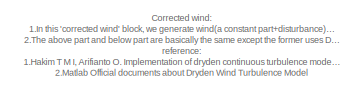
[diagram: wind/Dryden Wind - part 1/2, top left region]
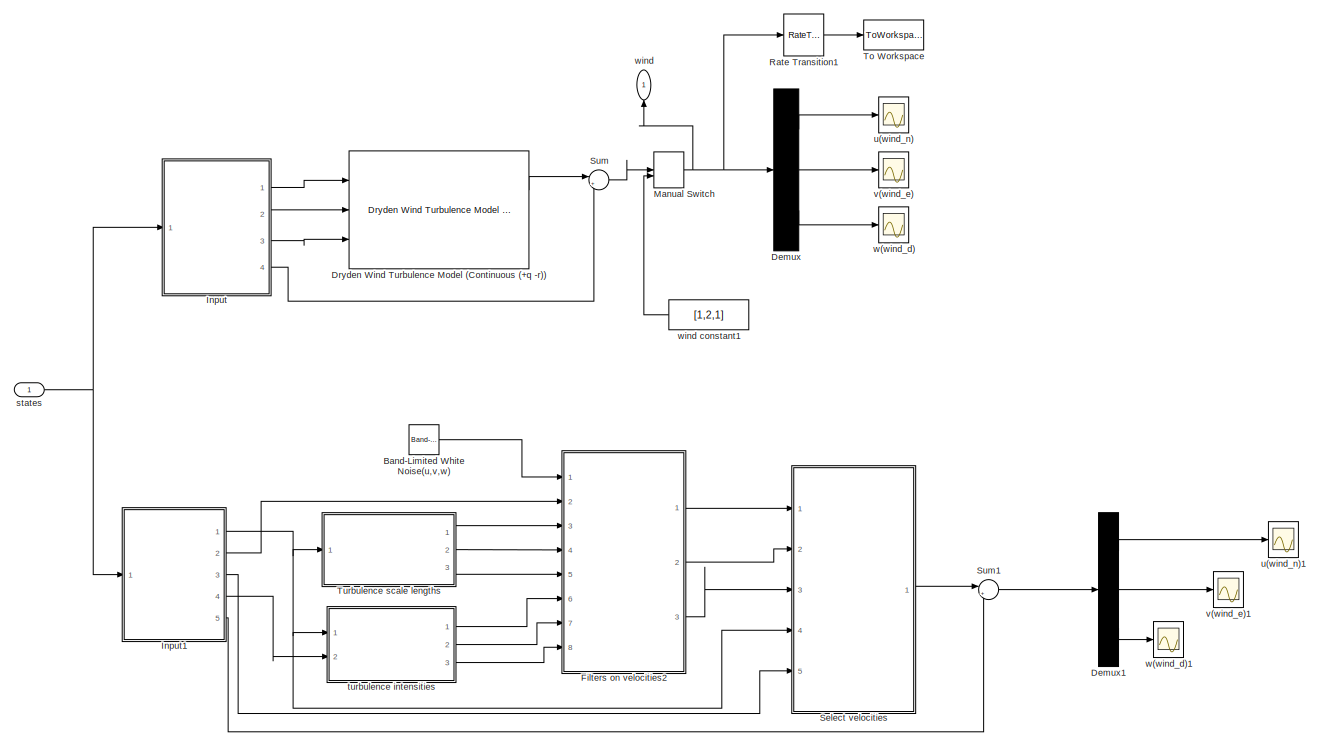
[diagram: wind/Dryden Wind - part 2/2, most of the canvas]
BLOCK [SubSystem] wind/Dryden Wind
  Commented = on
  Ports = [1, 1]
  RequestExecContextInheritance = off
BLOCK [Reference] wind/Dryden Wind/Band-Limited White Noise(u,v,w)  REF=simulink/Sources/Band-Limited
White Noise
  Ports = [0, 1]
  SourceBlock = simulink/Sources/Band-Limited\nWhite Noise
  SourceProductBaseCode = SL
  SourceType = Band-Limited White Noise.
BLOCK [Demux] wind/Dryden Wind/Demux
  Outputs = 3
  Ports = [1, 3]
BLOCK [Demux] wind/Dryden Wind/Demux1
  Outputs = 3
  Ports = [1, 3]
BLOCK [Reference] wind/Dryden Wind/Dryden Wind Turbulence Model (Continuous (+q -r))  REF=aerolibwind2/Dryden Wind Turbulence Model 
(Continuous (+q -r))
  Commented = on
  Ports = [3, 2]
  SourceBlock = aerolibwind2/Dryden Wind Turbulence Model \n(Continuous (+q -r))
  SourceProductBaseCode = AE
  SourceType = Wind Turbulence Model
BLOCK [SubSystem] wind/Dryden Wind/Filters on velocities2
  Ports = [8, 3]
  RequestExecContextInheritance = off
BLOCK [Demux] wind/Dryden Wind/Filters on velocities2/Demux
  Outputs = 3
  Ports = [1, 3]
BLOCK [SubSystem] wind/Dryden Wind/Filters on velocities2/Hu
  Ports = [4, 1]
  RequestExecContextInheritance = off
BLOCK [Gain] wind/Dryden Wind/Filters on velocities2/Hu/(2//pi)
  Gain = 2/pi
BLOCK [Inport] wind/Dryden Wind/Filters on velocities2/Hu/L_ug
BLOCK [Product] wind/Dryden Wind/Filters on velocities2/Hu/L_ug//V
  Inputs = */
  Ports = [2, 1]
BLOCK [Inport] wind/Dryden Wind/Filters on velocities2/Hu/Noise
  Port = 3
BLOCK [Product] wind/Dryden Wind/Filters on velocities2/Hu/Product
  Ports = [2, 1]
BLOCK [Product] wind/Dryden Wind/Filters on velocities2/Hu/Product1
  Ports = [2, 1]
BLOCK [Sqrt] wind/Dryden Wind/Filters on velocities2/Hu/Sqrt
BLOCK [Sum] wind/Dryden Wind/Filters on velocities2/Hu/Sum
  Inputs = |+-
  Ports = [2, 1]
BLOCK [Inport] wind/Dryden Wind/Filters on velocities2/Hu/V
  Port = 2
BLOCK [Inport] wind/Dryden Wind/Filters on velocities2/Hu/sigma_ug
  Port = 4
BLOCK [Integrator] wind/Dryden Wind/Filters on velocities2/Hu/ug_p
  Ports = [1, 1]
BLOCK [Outport] wind/Dryden Wind/Filters on velocities2/Hu/ugw
BLOCK [Product] wind/Dryden Wind/Filters on velocities2/Hu/w
  Inputs = */
  Ports = [2, 1]
BLOCK [SubSystem] wind/Dryden Wind/Filters on velocities2/Hv
  Ports = [4, 1]
  RequestExecContextInheritance = off
BLOCK [Gain] wind/Dryden Wind/Filters on velocities2/Hv/(1//pi)
  Gain = 1/pi
BLOCK [Product] wind/Dryden Wind/Filters on velocities2/Hv/Divide
  Inputs = */
  Ports = [2, 1]
BLOCK [Gain] wind/Dryden Wind/Filters on velocities2/Hv/Gain
  Gain = sqrt(3)
BLOCK [Integrator] wind/Dryden Wind/Filters on velocities2/Hv/Integrator
  Ports = [1, 1]
BLOCK [Inport] wind/Dryden Wind/Filters on velocities2/Hv/L_vg
BLOCK [Product] wind/Dryden Wind/Filters on velocities2/Hv/L_vg//V
  Inputs = */
  Ports = [2, 1]
BLOCK [Product] wind/Dryden Wind/Filters on velocities2/Hv/Lvg//V
  Ports = [2, 1]
BLOCK [Inport] wind/Dryden Wind/Filters on velocities2/Hv/Noise
  Port = 3
BLOCK [Product] wind/Dryden Wind/Filters on velocities2/Hv/Product
  Ports = [2, 1]
BLOCK [Product] wind/Dryden Wind/Filters on velocities2/Hv/Product1
  Ports = [2, 1]
BLOCK [Sqrt] wind/Dryden Wind/Filters on velocities2/Hv/Sqrt
BLOCK [Sum] wind/Dryden Wind/Filters on velocities2/Hv/Sum
  Inputs = |+-
  Ports = [2, 1]
BLOCK [Sum] wind/Dryden Wind/Filters on velocities2/Hv/Sum1
  Inputs = |++-
  Ports = [3, 1]
BLOCK [Inport] wind/Dryden Wind/Filters on velocities2/Hv/V
  Port = 2
BLOCK [Inport] wind/Dryden Wind/Filters on velocities2/Hv/sigma_vg
  Port = 4
BLOCK [Integrator] wind/Dryden Wind/Filters on velocities2/Hv/vg_p1
  Ports = [1, 1]
BLOCK [Outport] wind/Dryden Wind/Filters on velocities2/Hv/vgw
BLOCK [Product] wind/Dryden Wind/Filters on velocities2/Hv/w
  Inputs = */
  Ports = [2, 1]
BLOCK [SubSystem] wind/Dryden Wind/Filters on velocities2/Hw
  Ports = [4, 1]
  RequestExecContextInheritance = off
BLOCK [Gain] wind/Dryden Wind/Filters on velocities2/Hw/(1//pi)
  Gain = 1/pi
BLOCK [Constant] wind/Dryden Wind/Filters on velocities2/Hw/Constant
  Value = 3
BLOCK [Product] wind/Dryden Wind/Filters on velocities2/Hw/Divide
  Inputs = */
  Ports = [2, 1]
BLOCK [Integrator] wind/Dryden Wind/Filters on velocities2/Hw/Integrator
  Ports = [1, 1]
BLOCK [Inport] wind/Dryden Wind/Filters on velocities2/Hw/L_wg
BLOCK [Product] wind/Dryden Wind/Filters on velocities2/Hw/L_wg//V
  Inputs = */
  Ports = [2, 1]
BLOCK [Product] wind/Dryden Wind/Filters on velocities2/Hw/Lwg//V
  Inputs = 3
  Ports = [3, 1]
BLOCK [Inport] wind/Dryden Wind/Filters on velocities2/Hw/Noise
  Port = 3
BLOCK [Product] wind/Dryden Wind/Filters on velocities2/Hw/Product
  Ports = [2, 1]
BLOCK [Product] wind/Dryden Wind/Filters on velocities2/Hw/Product1
  Ports = [2, 1]
BLOCK [Sqrt] wind/Dryden Wind/Filters on velocities2/Hw/Sqrt
BLOCK [Sqrt] wind/Dryden Wind/Filters on velocities2/Hw/Sqrt1
BLOCK [Sum] wind/Dryden Wind/Filters on velocities2/Hw/Sum
  Inputs = |+-
  Ports = [2, 1]
BLOCK [Sum] wind/Dryden Wind/Filters on velocities2/Hw/Sum1
  Inputs = |++-
  Ports = [3, 1]
BLOCK [Inport] wind/Dryden Wind/Filters on velocities2/Hw/V
  Port = 2
BLOCK [Inport] wind/Dryden Wind/Filters on velocities2/Hw/sigma_wg
  Port = 4
BLOCK [Product] wind/Dryden Wind/Filters on velocities2/Hw/w
  Inputs = */
  Ports = [2, 1]
BLOCK [Integrator] wind/Dryden Wind/Filters on velocities2/Hw/wg_p1
  Ports = [1, 1]
BLOCK [Outport] wind/Dryden Wind/Filters on velocities2/Hw/wgw
BLOCK [Inport] wind/Dryden Wind/Filters on velocities2/L_ug
  Port = 3
BLOCK [Inport] wind/Dryden Wind/Filters on velocities2/L_vg
  Port = 4
BLOCK [Inport] wind/Dryden Wind/Filters on velocities2/L_wg
  Port = 5
BLOCK [Inport] wind/Dryden Wind/Filters on velocities2/Noise
BLOCK [Scope] wind/Dryden Wind/Filters on velocities2/Scope
  Floating = off
  NumInputPorts = 1
  Ports = [1]
  ScopeSpecificationString = Simulink.scopes.TimeScopeBlockCfg('CurrentConfiguration', extmgr.ConfigurationSet(extmgr.Configuration('Core','General UI',true),extmgr.Configuration('Core','Source UI',true),extmgr.Configuration('Sources','WiredSimulink',true,'DataLoggingVariableName','ScopeData3'),extmgr.Configuration('Visuals','Time Domain',true,'SerializedDisplays',{struct('MinYLimReal','-3.03955','MaxYLimReal','3.81059','YLab...<+1370ch>
BLOCK [Scope] wind/Dryden Wind/Filters on velocities2/Scope1
  Floating = off
  NumInputPorts = 1
  Ports = [1]
  ScopeSpecificationString = Simulink.scopes.TimeScopeBlockCfg('CurrentConfiguration', extmgr.ConfigurationSet(extmgr.Configuration('Core','General UI',true),extmgr.Configuration('Core','Source UI',true),extmgr.Configuration('Sources','WiredSimulink',true,'DataLoggingVariableName','ScopeData4'),extmgr.Configuration('Visuals','Time Domain',true,'SerializedDisplays',{struct('MinYLimReal','-3.95716','MaxYLimReal','2.16196','YLab...<+1370ch>
BLOCK [Scope] wind/Dryden Wind/Filters on velocities2/Scope2
  Floating = off
  NumInputPorts = 1
  Ports = [1]
  ScopeSpecificationString = Simulink.scopes.TimeScopeBlockCfg('CurrentConfiguration', extmgr.ConfigurationSet(extmgr.Configuration('Core','General UI',true),extmgr.Configuration('Core','Source UI',true),extmgr.Configuration('Sources','WiredSimulink',true,'DataLoggingVariableName','ScopeData5'),extmgr.Configuration('Visuals','Time Domain',true,'SerializedDisplays',{struct('MinYLimReal','-3.01869','MaxYLimReal','4.56371','YLab...<+1370ch>
BLOCK [Inport] wind/Dryden Wind/Filters on velocities2/V
  Port = 2
BLOCK [Inport] wind/Dryden Wind/Filters on velocities2/sigma_ug
  Port = 6
BLOCK [Inport] wind/Dryden Wind/Filters on velocities2/sigma_vg
  Port = 7
BLOCK [Inport] wind/Dryden Wind/Filters on velocities2/sigma_wg
  Port = 8
BLOCK [Outport] wind/Dryden Wind/Filters on velocities2/ug
BLOCK [Outport] wind/Dryden Wind/Filters on velocities2/vg
  Port = 2
BLOCK [Outport] wind/Dryden Wind/Filters on velocities2/wg
  Port = 3
BLOCK [SubSystem] wind/Dryden Wind/Input
  Ports = [1, 4]
  RequestExecContextInheritance = off
BLOCK [Abs] wind/Dryden Wind/Input/Abs
  SaturateOnIntegerOverflow = off
BLOCK [SubSystem] wind/Dryden Wind/Input/DCM//rotation matrix
  ErrorFcn = Stateflow.Translate.translate
  PermitHierarchicalResolution = ExplicitOnly
  Ports = [1, 1]
  RequestExecContextInheritance = off
  SFBlockType = MATLAB Function
  TreatAsAtomicUnit = on
BLOCK [Demux] wind/Dryden Wind/Input/DCM//rotation matrix/ Demux 
  Outputs = 1
  Ports = [1, 1]
BLOCK [S-Function] wind/Dryden Wind/Input/DCM//rotation matrix/ SFunction 
  EnableBusSupport = on
  FunctionName = sf_sfun
  PortCounts = [1 2]
  Ports = [1, 2]
  SFcnIsStateOwnerBlock = off
  SFunctionDeploymentMode = off
  Tag = Stateflow S-Function 59
BLOCK [Terminator] wind/Dryden Wind/Input/DCM//rotation matrix/ Terminator 
BLOCK [Outport] wind/Dryden Wind/Input/DCM//rotation matrix/R
BLOCK [Inport] wind/Dryden Wind/Input/DCM//rotation matrix/x
BLOCK [Demux] wind/Dryden Wind/Input/Demux
  Outputs = 12
  Ports = [1, 12]
BLOCK [SubSystem] wind/Dryden Wind/Input/MATLAB Function
  ErrorFcn = Stateflow.Translate.translate
  PermitHierarchicalResolution = ExplicitOnly
  Ports = [2, 1]
  RequestExecContextInheritance = off
  SFBlockType = MATLAB Function
  TreatAsAtomicUnit = on
BLOCK [Demux] wind/Dryden Wind/Input/MATLAB Function/ Demux 
  Outputs = 1
  Ports = [1, 1]
BLOCK [S-Function] wind/Dryden Wind/Input/MATLAB Function/ SFunction 
  EnableBusSupport = on
  FunctionName = sf_sfun
  PortCounts = [2 2]
  Ports = [2, 2]
  SFcnIsStateOwnerBlock = off
  SFunctionDeploymentMode = off
  Tag = Stateflow S-Function 60
BLOCK [Terminator] wind/Dryden Wind/Input/MATLAB Function/ Terminator 
BLOCK [Outport] wind/Dryden Wind/Input/MATLAB Function/V
BLOCK [Inport] wind/Dryden Wind/Input/MATLAB Function/vel
  Port = 2
BLOCK [Inport] wind/Dryden Wind/Input/MATLAB Function/wind
BLOCK [Mux] wind/Dryden Wind/Input/Mux
  DisplayOption = bar
  Inputs = 9
  Ports = [9, 1]
BLOCK [Mux] wind/Dryden Wind/Input/Mux1
  DisplayOption = bar
  Inputs = 3
  Ports = [3, 1]
BLOCK [Scope] wind/Dryden Wind/Input/Scope
  Floating = off
  NumInputPorts = 1
  Ports = [1]
  ScopeSpecificationString = Simulink.scopes.TimeScopeBlockCfg('CurrentConfiguration', extmgr.ConfigurationSet(extmgr.Configuration('Core','General UI',true),extmgr.Configuration('Core','Source UI',true),extmgr.Configuration('Sources','WiredSimulink',true,'DataLoggingVariableName','ScopeData2'),extmgr.Configuration('Visuals','Time Domain',true,'SerializedDisplays',{struct('MinYLimReal','-4.37179','MaxYLimReal','43.1249','YLab...<+1423ch>
BLOCK [Terminator] wind/Dryden Wind/Input/Terminator
BLOCK [Outport] wind/Dryden Wind/Input/V
  Port = 2
BLOCK [Outport] wind/Dryden Wind/Input/dcm
  Port = 3
BLOCK [Outport] wind/Dryden Wind/Input/h
BLOCK [Inport] wind/Dryden Wind/Input/state
BLOCK [Constant] wind/Dryden Wind/Input/wind
  Value = [0.1,0.1,0]
BLOCK [Outport] wind/Dryden Wind/Input/wind constant
  Port = 4
BLOCK [SubSystem] wind/Dryden Wind/Input1
  Ports = [1, 5]
  RequestExecContextInheritance = off
BLOCK [Abs] wind/Dryden Wind/Input1/Abs
  SaturateOnIntegerOverflow = off
BLOCK [SubSystem] wind/Dryden Wind/Input1/DCM//rotation matrix
  ErrorFcn = Stateflow.Translate.translate
  PermitHierarchicalResolution = ExplicitOnly
  Ports = [1, 1]
  RequestExecContextInheritance = off
  SFBlockType = MATLAB Function
  TreatAsAtomicUnit = on
BLOCK [Demux] wind/Dryden Wind/Input1/DCM//rotation matrix/ Demux 
  Outputs = 1
  Ports = [1, 1]
BLOCK [S-Function] wind/Dryden Wind/Input1/DCM//rotation matrix/ SFunction 
  EnableBusSupport = on
  FunctionName = sf_sfun
  PortCounts = [1 2]
  Ports = [1, 2]
  SFcnIsStateOwnerBlock = off
  SFunctionDeploymentMode = off
  Tag = Stateflow S-Function 61
BLOCK [Terminator] wind/Dryden Wind/Input1/DCM//rotation matrix/ Terminator 
BLOCK [Inport] wind/Dryden Wind/Input1/DCM//rotation matrix/x
BLOCK [Outport] wind/Dryden Wind/Input1/DCM//rotation matrix/y
BLOCK [Demux] wind/Dryden Wind/Input1/Demux
  Outputs = 12
  Ports = [1, 12]
BLOCK [SubSystem] wind/Dryden Wind/Input1/MATLAB Function
  ErrorFcn = Stateflow.Translate.translate
  PermitHierarchicalResolution = ExplicitOnly
  Ports = [2, 1]
  RequestExecContextInheritance = off
  SFBlockType = MATLAB Function
  TreatAsAtomicUnit = on
BLOCK [Demux] wind/Dryden Wind/Input1/MATLAB Function/ Demux 
  Outputs = 1
  Ports = [1, 1]
BLOCK [S-Function] wind/Dryden Wind/Input1/MATLAB Function/ SFunction 
  EnableBusSupport = on
  FunctionName = sf_sfun
  Parameters = P
  PortCounts = [2 2]
  Ports = [2, 2]
  SFcnIsStateOwnerBlock = off
  SFunctionDeploymentMode = off
  Tag = Stateflow S-Function 62
BLOCK [Terminator] wind/Dryden Wind/Input1/MATLAB Function/ Terminator 
BLOCK [Outport] wind/Dryden Wind/Input1/MATLAB Function/V
BLOCK [Inport] wind/Dryden Wind/Input1/MATLAB Function/vel
  Port = 2
BLOCK [Inport] wind/Dryden Wind/Input1/MATLAB Function/wind
BLOCK [Mux] wind/Dryden Wind/Input1/Mux
  DisplayOption = bar
  Inputs = 9
  Ports = [9, 1]
BLOCK [Mux] wind/Dryden Wind/Input1/Mux1
  DisplayOption = bar
  Inputs = 3
  Ports = [3, 1]
BLOCK [Scope] wind/Dryden Wind/Input1/Scope
  Floating = off
  NumInputPorts = 1
  Ports = [1]
  ScopeSpecificationString = Simulink.scopes.TimeScopeBlockCfg('CurrentConfiguration', extmgr.ConfigurationSet(extmgr.Configuration('Core','General UI',true),extmgr.Configuration('Core','Source UI',true),extmgr.Configuration('Sources','WiredSimulink',true,'DataLoggingVariableName','ScopeData2'),extmgr.Configuration('Visuals','Time Domain',true,'SerializedDisplays',{struct('MinYLimReal','-3.52243','MaxYLimReal','42.0493','YLab...<+1404ch>
BLOCK [Terminator] wind/Dryden Wind/Input1/Terminator
BLOCK [Outport] wind/Dryden Wind/Input1/V
  Port = 2
BLOCK [Outport] wind/Dryden Wind/Input1/W20
  Port = 4
BLOCK [Constant] wind/Dryden Wind/Input1/Wind speed at 6 m defines the low-altitude intensity (m//s) Light-7.716m//s Moderate-15.432m//s Severe-23.148m//s
  Value = 15.432
BLOCK [Outport] wind/Dryden Wind/Input1/dcm
  Port = 3
BLOCK [Outport] wind/Dryden Wind/Input1/h
BLOCK [Inport] wind/Dryden Wind/Input1/state
BLOCK [Constant] wind/Dryden Wind/Input1/wind
  Value = [0.1,0.1,0]
BLOCK [Outport] wind/Dryden Wind/Input1/wind constant
  Port = 5
BLOCK [ManualSwitch] wind/Dryden Wind/Manual Switch
  CurrentSetting = 0
BLOCK [RateTransition] wind/Dryden Wind/Rate Transition1
  OutPortSampleTime = 0.01
BLOCK [SubSystem] wind/Dryden Wind/Select velocities
  Ports = [5, 1]
  RequestExecContextInheritance = off
BLOCK [BusCreator] wind/Dryden Wind/Select velocities/Bus Creator
  DisplayOption = bar
  InheritFromInputs = on
  Inputs = 3
  Ports = [3, 1]
BLOCK [BusSelector] wind/Dryden Wind/Select velocities/Bus Selector
  OutputSignals = signal1,signal2,signal3
  Ports = [1, 3]
BLOCK [BusSelector] wind/Dryden Wind/Select velocities/Bus Selector1
  OutputSignals = signal1,signal2,signal3
  Ports = [1, 3]
BLOCK [BusSelector] wind/Dryden Wind/Select velocities/Bus Selector2
  OutputSignals = signal1,signal2,signal3
  Ports = [1, 3]
BLOCK [From] wind/Dryden Wind/Select velocities/From
  GotoTag = ELSEIF
  NameLocation = left
BLOCK [From] wind/Dryden Wind/Select velocities/From1
  GotoTag = IF
  NameLocation = left
BLOCK [From] wind/Dryden Wind/Select velocities/From2
  GotoTag = ELSE
  NameLocation = left
BLOCK [Goto] wind/Dryden Wind/Select velocities/Goto
  GotoTag = IF
BLOCK [Goto] wind/Dryden Wind/Select velocities/Goto1
  GotoTag = ELSEIF
BLOCK [Goto] wind/Dryden Wind/Select velocities/Goto2
  GotoTag = ELSE
BLOCK [If] wind/Dryden Wind/Select velocities/If Height < Max low altitude elseif Height > Min medium//high altitude
  ElseIfExpressions = u1 >= 533.4
  IfExpression = u1 <= 304.8
  Ports = [1, 3]
BLOCK [SubSystem] wind/Dryden Wind/Select velocities/Interpolate velocities
  Ports = [4, 1, 0, 0, 0, 0, 0, 1]
  RequestExecContextInheritance = off
  TreatAsAtomicUnit = on
BLOCK [ActionPort] wind/Dryden Wind/Select velocities/Interpolate velocities/Action Port
BLOCK [Inport] wind/Dryden Wind/Select velocities/Interpolate velocities/Altitude
  Port = 4
BLOCK [Mux] wind/Dryden Wind/Select velocities/Interpolate velocities/Mux
  DisplayOption = bar
  Inputs = 3
  Ports = [3, 1]
BLOCK [Mux] wind/Dryden Wind/Select velocities/Interpolate velocities/Mux1
  DisplayOption = bar
  Inputs = 3
  Ports = [3, 1]
BLOCK [Product] wind/Dryden Wind/Select velocities/Interpolate velocities/Product
  Inputs = **/
  Ports = [3, 1]
BLOCK [Selector] wind/Dryden Wind/Select velocities/Interpolate velocities/Selector
  IndexOptions = Index vector (dialog)
  Indices = [1]
  InputPortWidth = 2
  OutputSizes = 1
  Ports = [1, 1]
BLOCK [Selector] wind/Dryden Wind/Select velocities/Interpolate velocities/Selector1
  IndexOptions = Index vector (dialog)
  Indices = [1]
  InputPortWidth = 2
  OutputSizes = 1
  Ports = [1, 1]
BLOCK [Selector] wind/Dryden Wind/Select velocities/Interpolate velocities/Selector2
  IndexOptions = Index vector (dialog)
  Indices = [1]
  InputPortWidth = 2
  OutputSizes = 1
  Ports = [1, 1]
BLOCK [Selector] wind/Dryden Wind/Select velocities/Interpolate velocities/Selector3
  IndexOptions = Index vector (dialog)
  Indices = [2]
  InputPortWidth = 2
  OutputSizes = 1
  Ports = [1, 1]
BLOCK [Selector] wind/Dryden Wind/Select velocities/Interpolate velocities/Selector4
  IndexOptions = Index vector (dialog)
  Indices = [2]
  InputPortWidth = 2
  OutputSizes = 1
  Ports = [1, 1]
BLOCK [Selector] wind/Dryden Wind/Select velocities/Interpolate velocities/Selector5
  IndexOptions = Index vector (dialog)
  Indices = [2]
  InputPortWidth = 2
  OutputSizes = 1
  Ports = [1, 1]
BLOCK [Sum] wind/Dryden Wind/Select velocities/Interpolate velocities/Sum
  Inputs = |+-
  Ports = [2, 1]
BLOCK [Sum] wind/Dryden Wind/Select velocities/Interpolate velocities/Sum1
  Inputs = |+-
  Ports = [2, 1]
BLOCK [Sum] wind/Dryden Wind/Select velocities/Interpolate velocities/Sum2
  Inputs = |-+
  Ports = [2, 1]
BLOCK [Sum] wind/Dryden Wind/Select velocities/Interpolate velocities/Sum3
  Inputs = |++
  Ports = [2, 1]
BLOCK [Constant] wind/Dryden Wind/Select velocities/Interpolate velocities/max_height_low
  Value = 304.8
BLOCK [Constant] wind/Dryden Wind/Select velocities/Interpolate velocities/min_height_high
  Value = 533.4
BLOCK [Outport] wind/Dryden Wind/Select velocities/Interpolate velocities/ug,vg,wg
BLOCK [Inport] wind/Dryden Wind/Select velocities/Interpolate velocities/ug_h&l
BLOCK [Inport] wind/Dryden Wind/Select velocities/Interpolate velocities/vg_h&l
  Port = 2
BLOCK [Inport] wind/Dryden Wind/Select velocities/Interpolate velocities/wg_h&l
  Port = 3
BLOCK [SubSystem] wind/Dryden Wind/Select velocities/Low altitude velocities 
  Ports = [3, 1, 0, 0, 0, 0, 0, 1]
  RequestExecContextInheritance = off
  TreatAsAtomicUnit = on
BLOCK [ActionPort] wind/Dryden Wind/Select velocities/Low altitude velocities /Action Port
BLOCK [Gain] wind/Dryden Wind/Select velocities/Low altitude velocities /Gain
BLOCK [Mux] wind/Dryden Wind/Select velocities/Low altitude velocities /Mux
  DisplayOption = bar
  Inputs = 3
  Ports = [3, 1]
BLOCK [Selector] wind/Dryden Wind/Select velocities/Low altitude velocities /Selector
  IndexOptions = Index vector (dialog)
  Indices = [1 3 5]
  InputPortWidth = 6
  OutputSizes = 1
  Ports = [1, 1]
BLOCK [Outport] wind/Dryden Wind/Select velocities/Low altitude velocities /ug,vg,wg
BLOCK [Inport] wind/Dryden Wind/Select velocities/Low altitude velocities /ug_h&l
BLOCK [Inport] wind/Dryden Wind/Select velocities/Low altitude velocities /vg_h&l
  Port = 2
BLOCK [Inport] wind/Dryden Wind/Select velocities/Low altitude velocities /wg_h&l
  Port = 3
BLOCK [SubSystem] wind/Dryden Wind/Select velocities/Medium//High altitude velocities
  Ports = [3, 1, 0, 0, 0, 0, 0, 1]
  RequestExecContextInheritance = off
  TreatAsAtomicUnit = on
BLOCK [ActionPort] wind/Dryden Wind/Select velocities/Medium//High altitude velocities/Action Port
BLOCK [Gain] wind/Dryden Wind/Select velocities/Medium//High altitude velocities/Gain
BLOCK [Mux] wind/Dryden Wind/Select velocities/Medium//High altitude velocities/Mux
  DisplayOption = bar
  Inputs = 3
  Ports = [3, 1]
BLOCK [Selector] wind/Dryden Wind/Select velocities/Medium//High altitude velocities/Selector
  IndexOptions = Index vector (dialog)
  Indices = [2 4 6]
  InputPortWidth = 6
  OutputSizes = 1
  Ports = [1, 1]
BLOCK [Outport] wind/Dryden Wind/Select velocities/Medium//High altitude velocities/ug,vg,wg
BLOCK [Inport] wind/Dryden Wind/Select velocities/Medium//High altitude velocities/ug_h&l
BLOCK [Inport] wind/Dryden Wind/Select velocities/Medium//High altitude velocities/vg_h&l
  Port = 2
BLOCK [Inport] wind/Dryden Wind/Select velocities/Medium//High altitude velocities/wg_h&l
  Port = 3
BLOCK [SubSystem] wind/Dryden Wind/Select velocities/Merge Subsystems
  Ports = [4, 3]
  RequestExecContextInheritance = off
BLOCK [Demux] wind/Dryden Wind/Select velocities/Merge Subsystems/Demux
  Outputs = 3
  Ports = [1, 3]
BLOCK [Merge] wind/Dryden Wind/Select velocities/Merge Subsystems/Merge
  Inputs = 3
  Ports = [3, 1]
BLOCK [SubSystem] wind/Dryden Wind/Select velocities/Merge Subsystems/convert to inertial frame
  ErrorFcn = Stateflow.Translate.translate
  PermitHierarchicalResolution = ExplicitOnly
  Ports = [4, 3]
  RequestExecContextInheritance = off
  SFBlockType = MATLAB Function
  TreatAsAtomicUnit = on
BLOCK [Demux] wind/Dryden Wind/Select velocities/Merge Subsystems/convert to inertial frame/ Demux 
  Outputs = 1
  Ports = [1, 1]
BLOCK [S-Function] wind/Dryden Wind/Select velocities/Merge Subsystems/convert to inertial frame/ SFunction 
  EnableBusSupport = on
  FunctionName = sf_sfun
  PortCounts = [4 4]
  Ports = [4, 4]
  SFcnIsStateOwnerBlock = off
  SFunctionDeploymentMode = off
  Tag = Stateflow S-Function 67
BLOCK [Terminator] wind/Dryden Wind/Select velocities/Merge Subsystems/convert to inertial frame/ Terminator 
BLOCK [Inport] wind/Dryden Wind/Select velocities/Merge Subsystems/convert to inertial frame/dcm
  Port = 4
BLOCK [Inport] wind/Dryden Wind/Select velocities/Merge Subsystems/convert to inertial frame/ug
BLOCK [Outport] wind/Dryden Wind/Select velocities/Merge Subsystems/convert to inertial frame/ugw
BLOCK [Inport] wind/Dryden Wind/Select velocities/Merge Subsystems/convert to inertial frame/vg
  Port = 2
BLOCK [Outport] wind/Dryden Wind/Select velocities/Merge Subsystems/convert to inertial frame/vgw
  Port = 2
BLOCK [Inport] wind/Dryden Wind/Select velocities/Merge Subsystems/convert to inertial frame/wg
  Port = 3
BLOCK [Outport] wind/Dryden Wind/Select velocities/Merge Subsystems/convert to inertial frame/wgw
  Port = 3
BLOCK [Inport] wind/Dryden Wind/Select velocities/Merge Subsystems/dcm
  Port = 4
BLOCK [Inport] wind/Dryden Wind/Select velocities/Merge Subsystems/high
  Port = 2
BLOCK [Inport] wind/Dryden Wind/Select velocities/Merge Subsystems/interpolated
  Port = 3
BLOCK [Inport] wind/Dryden Wind/Select velocities/Merge Subsystems/low
BLOCK [Outport] wind/Dryden Wind/Select velocities/Merge Subsystems/ug
BLOCK [Outport] wind/Dryden Wind/Select velocities/Merge Subsystems/vg
  Port = 2
BLOCK [Outport] wind/Dryden Wind/Select velocities/Merge Subsystems/wg
  Port = 3
BLOCK [Mux] wind/Dryden Wind/Select velocities/Mux
  DisplayOption = bar
  Inputs = 3
  Ports = [3, 1]
BLOCK [Inport] wind/Dryden Wind/Select velocities/altitude
  Port = 4
BLOCK [Inport] wind/Dryden Wind/Select velocities/dcm
  Port = 5
BLOCK [Inport] wind/Dryden Wind/Select velocities/ug
BLOCK [Outport] wind/Dryden Wind/Select velocities/ug,vg,wg
BLOCK [Inport] wind/Dryden Wind/Select velocities/vg
  Port = 2
BLOCK [Inport] wind/Dryden Wind/Select velocities/wg
  Port = 3
BLOCK [Sum] wind/Dryden Wind/Sum
  Inputs = |++
  Ports = [2, 1]
BLOCK [Sum] wind/Dryden Wind/Sum1
  Inputs = |++
  Ports = [2, 1]
BLOCK [ToWorkspace] wind/Dryden Wind/To Workspace
  MaxDataPoints = inf
  Ports = [1]
  SampleTime = -1
  SaveFormat = Timeseries
  VariableName = Wind
BLOCK [SubSystem] wind/Dryden Wind/Turbulence scale lengths
  Ports = [1, 3]
  RequestExecContextInheritance = off
BLOCK [Inport] wind/Dryden Wind/Turbulence scale lengths/Altitude
BLOCK [Outport] wind/Dryden Wind/Turbulence scale lengths/L_ug
BLOCK [Outport] wind/Dryden Wind/Turbulence scale lengths/L_wg
  Port = 3
BLOCK [SubSystem] wind/Dryden Wind/Turbulence scale lengths/Low altitude scale length
  Ports = [1, 3]
  RequestExecContextInheritance = off
BLOCK [Outport] wind/Dryden Wind/Turbulence scale lengths/Low altitude scale length/L_ug
BLOCK [Outport] wind/Dryden Wind/Turbulence scale lengths/Low altitude scale length/L_wg
  Port = 3
BLOCK [Saturate] wind/Dryden Wind/Turbulence scale lengths/Low altitude scale length/Limit Function 10ft(3.048m) to 1000ft(304.8m) 1 foot = 0.3048m
  LowerLimit = 3.048
  UpperLimit = 304.8
BLOCK [Fcn] wind/Dryden Wind/Turbulence scale lengths/Low altitude scale length/Low Altitude Scale Length
  Expr = u(1)/(0.177+0.000823*u(1))^1.2
BLOCK [Fcn] wind/Dryden Wind/Turbulence scale lengths/Low altitude scale length/Low Altitude Scale Length1
  Expr = u(1)/(0.177+0.000823*u(1))^1.2
BLOCK [Outport] wind/Dryden Wind/Turbulence scale lengths/Low altitude scale length/Lvg
  Port = 2
BLOCK [Inport] wind/Dryden Wind/Turbulence scale lengths/Low altitude scale length/h
BLOCK [Outport] wind/Dryden Wind/Turbulence scale lengths/Lvg
  Port = 2
BLOCK [SubSystem] wind/Dryden Wind/Turbulence scale lengths/Medium//High altitude scale length
  Ports = [0, 3]
  RequestExecContextInheritance = off
BLOCK [Outport] wind/Dryden Wind/Turbulence scale lengths/Medium//High altitude scale length/L_ug
BLOCK [Outport] wind/Dryden Wind/Turbulence scale lengths/Medium//High altitude scale length/L_wg
  Port = 3
BLOCK [Outport] wind/Dryden Wind/Turbulence scale lengths/Medium//High altitude scale length/Lvg
  Port = 2
BLOCK [Constant] wind/Dryden Wind/Turbulence scale lengths/Medium//High altitude scale length/Scale length at medium//high altitudes: 533.4m(1750 feet)
  Value = 533.4
BLOCK [Constant] wind/Dryden Wind/Turbulence scale lengths/Medium//High altitude scale length/Scale length at medium//high altitudes: 533.4m(1750 feet)1
  Value = 533.4
BLOCK [Constant] wind/Dryden Wind/Turbulence scale lengths/Medium//High altitude scale length/Scale length at medium//high altitudes: 533.4m(1750 feet)2
  Value = 533.4
BLOCK [Mux] wind/Dryden Wind/Turbulence scale lengths/Mux
  DisplayOption = bar
  Inputs = 2
  Ports = [2, 1]
BLOCK [Mux] wind/Dryden Wind/Turbulence scale lengths/Mux1
  DisplayOption = bar
  Inputs = 2
  Ports = [2, 1]
BLOCK [Mux] wind/Dryden Wind/Turbulence scale lengths/Mux2
  DisplayOption = bar
  Inputs = 2
  Ports = [2, 1]
BLOCK [Inport] wind/Dryden Wind/states
BLOCK [SubSystem] wind/Dryden Wind/turbulence intensities
  Ports = [2, 3]
  RequestExecContextInheritance = off
BLOCK [Inport] wind/Dryden Wind/turbulence intensities/Altitude
BLOCK [SubSystem] wind/Dryden Wind/turbulence intensities/High Altitude Intensity
  Ports = [1, 3]
  RequestExecContextInheritance = off
BLOCK [Interpolation_n-D] wind/Dryden Wind/turbulence intensities/High Altitude Intensity/Interpolation Using Prelookup
  InputPortMap = u0,u1,u2,u3
  IntermediateResultsDataTypeStr = Inherit: Inherit via internal rule
  InternalRulePriority = Speed
  Ports = [4, 1]
  Table = [3.2,4.2,6.6,8.6,11.8,15.6,18.7;2.2,3.6,6.9,9.6,13,17.6,21.5;1.5,3.3,7.4,10.6,16,23,28.4;0,1.6,6.7,10.1,15.1,23.6,30.2;0,0,4.6,8,11.6,22.1,30.7;0,0,2.7,6.6,9.7,20,31;0,0,0.4,5,8.1,16,25.2;0,0,0,4.2,8.2,15.1,23.1;0,0,0,2.7,7.9,12.1,17.5;0,0,0,0,4.9,7.9,10.7;0,0,0,0,3.2,6.2,8.4;0,0,0,0,2.1,5.1,7.2]
BLOCK [PreLookup] wind/Dryden Wind/turbulence intensities/High Altitude Intensity/Prelookup Index Search (altitude)
  BeginIndexSearchUsingPreviousIndexResult = on
  BreakpointsData = [154.2;539.7;1156.5;2313;4626;7710;10794;13878;16962;20046;23130;24672]
  InputPortMap = u0
  Ports = [1, 2]
  UseLastBreakpoint = on
BLOCK [PreLookup] wind/Dryden Wind/turbulence intensities/High Altitude Intensity/Prelookup Index Search (prob of exceed)
  BeginIndexSearchUsingPreviousIndexResult = on
  BreakpointsData = [1:7]
  InputPortMap = u0
  Ports = [1, 2]
  UseLastBreakpoint = on
BLOCK [Constant] wind/Dryden Wind/turbulence intensities/High Altitude Intensity/Probability of Exceedance
  Value = 4
BLOCK [Scope] wind/Dryden Wind/turbulence intensities/High Altitude Intensity/Scope
  Floating = off
  NumInputPorts = 1
  Ports = [1]
  ScopeSpecificationString = Simulink.scopes.TimeScopeBlockCfg('CurrentConfiguration', extmgr.ConfigurationSet(extmgr.Configuration('Core','General UI',true),extmgr.Configuration('Core','Source UI',true),extmgr.Configuration('Sources','WiredSimulink',true,'DataLoggingVariableName','ScopeData1'),extmgr.Configuration('Visuals','Time Domain',true,'SerializedDisplays',{struct('MinYLimReal','2.00000','MaxYLimReal','4.00000','YLabe...<+1398ch>
BLOCK [Scope] wind/Dryden Wind/turbulence intensities/High Altitude Intensity/Scope1
  Floating = off
  NumInputPorts = 1
  Ports = [1]
  ScopeSpecificationString = Simulink.scopes.TimeScopeBlockCfg('CurrentConfiguration', extmgr.ConfigurationSet(extmgr.Configuration('Core','General UI',true),extmgr.Configuration('Core','Source UI',true),extmgr.Configuration('Sources','WiredSimulink',true,'DataLoggingVariableName','ScopeData2'),extmgr.Configuration('Visuals','Time Domain',true,'SerializedDisplays',{struct('MinYLimReal','-1.00000','MaxYLimReal','1.00000','YLab...<+1429ch>
BLOCK [Scope] wind/Dryden Wind/turbulence intensities/High Altitude Intensity/Scope2
  Floating = off
  NumInputPorts = 1
  Ports = [1]
  ScopeSpecificationString = Simulink.scopes.TimeScopeBlockCfg('CurrentConfiguration', extmgr.ConfigurationSet(extmgr.Configuration('Core','General UI',true),extmgr.Configuration('Core','Source UI',true),extmgr.Configuration('Sources','WiredSimulink',true,'DataLoggingVariableName','ScopeData3'),extmgr.Configuration('Visuals','Time Domain',true,'SerializedDisplays',{struct('MinYLimReal','-1.00000','MaxYLimReal','1.00000','YLab...<+1394ch>
BLOCK [Scope] wind/Dryden Wind/turbulence intensities/High Altitude Intensity/Scope3
  Floating = off
  NumInputPorts = 1
  Ports = [1]
  ScopeSpecificationString = Simulink.scopes.TimeScopeBlockCfg('CurrentConfiguration', extmgr.ConfigurationSet(extmgr.Configuration('Core','General UI',true),extmgr.Configuration('Core','Source UI',true),extmgr.Configuration('Sources','WiredSimulink',true,'DataLoggingVariableName','ScopeData4'),extmgr.Configuration('Visuals','Time Domain',true,'SerializedDisplays',{struct('MinYLimReal','-1.00000','MaxYLimReal','1.00000','YLab...<+1394ch>
BLOCK [Scope] wind/Dryden Wind/turbulence intensities/High Altitude Intensity/Scope4
  Floating = off
  NumInputPorts = 1
  Ports = [1]
  ScopeSpecificationString = Simulink.scopes.TimeScopeBlockCfg('CurrentConfiguration', extmgr.ConfigurationSet(extmgr.Configuration('Core','General UI',true),extmgr.Configuration('Core','Source UI',true),extmgr.Configuration('Sources','WiredSimulink',true,'DataLoggingVariableName','ScopeData3'),extmgr.Configuration('Visuals','Time Domain',true,'SerializedDisplays',{struct('MinYLimReal','7.6','MaxYLimReal','9.6','YLabelReal','...<+1354ch>
BLOCK [Inport] wind/Dryden Wind/turbulence intensities/High Altitude Intensity/h
BLOCK [Outport] wind/Dryden Wind/turbulence intensities/High Altitude Intensity/sigma_ug
BLOCK [Outport] wind/Dryden Wind/turbulence intensities/High Altitude Intensity/sigma_vg
  Port = 2
BLOCK [Outport] wind/Dryden Wind/turbulence intensities/High Altitude Intensity/sigma_wg
  Port = 3
BLOCK [SubSystem] wind/Dryden Wind/turbulence intensities/Low Altitude Intensity
  Ports = [2, 3]
  RequestExecContextInheritance = off
BLOCK [Gain] wind/Dryden Wind/turbulence intensities/Low Altitude Intensity/Gain
  Gain = 0.1
BLOCK [Saturate] wind/Dryden Wind/turbulence intensities/Low Altitude Intensity/Limit Height h<304.8m(1000ft)
  LowerLimit = 0
  UpperLimit = 304.8
BLOCK [Fcn] wind/Dryden Wind/turbulence intensities/Low Altitude Intensity/Low Altitude Intensity
  Expr = 1/(0.177+0.000823*u(1))^0.4
BLOCK [Product] wind/Dryden Wind/turbulence intensities/Low Altitude Intensity/Product
  Ports = [2, 1]
BLOCK [Product] wind/Dryden Wind/turbulence intensities/Low Altitude Intensity/Product1
  Ports = [2, 1]
BLOCK [Inport] wind/Dryden Wind/turbulence intensities/Low Altitude Intensity/Windspeed at 20ft(6m)
  Port = 2
BLOCK [Inport] wind/Dryden Wind/turbulence intensities/Low Altitude Intensity/h
BLOCK [Outport] wind/Dryden Wind/turbulence intensities/Low Altitude Intensity/sigma_ug
BLOCK [Outport] wind/Dryden Wind/turbulence intensities/Low Altitude Intensity/sigma_vg
  Port = 2
BLOCK [Outport] wind/Dryden Wind/turbulence intensities/Low Altitude Intensity/sigma_wg
  Port = 3
BLOCK [Mux] wind/Dryden Wind/turbulence intensities/Mux
  DisplayOption = bar
  Inputs = 2
  Ports = [2, 1]
BLOCK [Mux] wind/Dryden Wind/turbulence intensities/Mux1
  DisplayOption = bar
  Inputs = 2
  Ports = [2, 1]
BLOCK [Mux] wind/Dryden Wind/turbulence intensities/Mux2
  DisplayOption = bar
  Inputs = 2
  Ports = [2, 1]
BLOCK [Inport] wind/Dryden Wind/turbulence intensities/Windspeed at 20ft(6m)
  Port = 2
BLOCK [Outport] wind/Dryden Wind/turbulence intensities/sigma_ug
BLOCK [Outport] wind/Dryden Wind/turbulence intensities/sigma_vg
  Port = 2
BLOCK [Outport] wind/Dryden Wind/turbulence intensities/sigma_wg
  Port = 3
BLOCK [Scope] wind/Dryden Wind/u(wind_n)
  Floating = off
  NumInputPorts = 1
  Ports = [1]
  ScopeSpecificationString = Simulink.scopes.TimeScopeBlockCfg('CurrentConfiguration', extmgr.ConfigurationSet(extmgr.Configuration('Core','General UI',true),extmgr.Configuration('Core','Source UI',true),extmgr.Configuration('Sources','WiredSimulink',true,'DataLoggingVariableName','ScopeData1'),extmgr.Configuration('Visuals','Time Domain',true,'SerializedDisplays',{struct('MinYLimReal','0.9','MaxYLimReal','1.1','YLabelReal','...<+1359ch>
BLOCK [Scope] wind/Dryden Wind/u(wind_n)1
  Floating = off
  NumInputPorts = 1
  Ports = [1]
  ScopeSpecificationString = Simulink.scopes.TimeScopeBlockCfg('CurrentConfiguration', extmgr.ConfigurationSet(extmgr.Configuration('Core','General UI',true),extmgr.Configuration('Core','Source UI',true),extmgr.Configuration('Sources','WiredSimulink',true,'DataLoggingVariableName','ScopeData1'),extmgr.Configuration('Visuals','Time Domain',true,'SerializedDisplays',{struct('MinYLimReal','0.43989','MaxYLimReal','8.84023','YLabe...<+1392ch>
BLOCK [Scope] wind/Dryden Wind/v(wind_e)
  Floating = off
  NumInputPorts = 1
  Ports = [1]
  ScopeSpecificationString = Simulink.scopes.TimeScopeBlockCfg('CurrentConfiguration', extmgr.ConfigurationSet(extmgr.Configuration('Core','General UI',true),extmgr.Configuration('Core','Source UI',true),extmgr.Configuration('Sources','WiredSimulink',true,'DataLoggingVariableName','ScopeData1'),extmgr.Configuration('Visuals','Time Domain',true,'SerializedDisplays',{struct('MinYLimReal','1.00000','MaxYLimReal','3.00000','YLabe...<+1393ch>
BLOCK [Scope] wind/Dryden Wind/v(wind_e)1
  Floating = off
  NumInputPorts = 1
  Ports = [1]
  ScopeSpecificationString = Simulink.scopes.TimeScopeBlockCfg('CurrentConfiguration', extmgr.ConfigurationSet(extmgr.Configuration('Core','General UI',true),extmgr.Configuration('Core','Source UI',true),extmgr.Configuration('Sources','WiredSimulink',true,'DataLoggingVariableName','ScopeData2'),extmgr.Configuration('Visuals','Time Domain',true,'SerializedDisplays',{struct('MinYLimReal','1.52278','MaxYLimReal','7.76574','YLabe...<+1394ch>
BLOCK [Scope] wind/Dryden Wind/w(wind_d)
  Floating = off
  NumInputPorts = 1
  Ports = [1]
  ScopeSpecificationString = Simulink.scopes.TimeScopeBlockCfg('CurrentConfiguration', extmgr.ConfigurationSet(extmgr.Configuration('Core','General UI',true),extmgr.Configuration('Core','Source UI',true),extmgr.Configuration('Sources','WiredSimulink',true,'DataLoggingVariableName','ScopeData2'),extmgr.Configuration('Visuals','Time Domain',true,'SerializedDisplays',{struct('MinYLimReal','-3.4206','MaxYLimReal','4.19311','YLabe...<+1393ch>
BLOCK [Scope] wind/Dryden Wind/w(wind_d)1
  Floating = off
  NumInputPorts = 1
  Ports = [1]
  ScopeSpecificationString = Simulink.scopes.TimeScopeBlockCfg('CurrentConfiguration', extmgr.ConfigurationSet(extmgr.Configuration('Core','General UI',true),extmgr.Configuration('Core','Source UI',true),extmgr.Configuration('Sources','WiredSimulink',true,'DataLoggingVariableName','ScopeData3'),extmgr.Configuration('Visuals','Time Domain',true,'SerializedDisplays',{struct('MinYLimReal','-3.46225','MaxYLimReal','3.53284','YLab...<+1396ch>
BLOCK [Outport] wind/Dryden Wind/wind
  NameLocation = right
BLOCK [Constant] wind/Dryden Wind/wind constant1
  NameLocation = top
  Value = [1,2,1]
BLOCK [SubSystem] wind/LES_wind
  Ports = [0, 1]
  RequestExecContextInheritance = off
BLOCK [FromWorkspace] wind/LES_wind/From Workspace
  Commented = on
  SampleTime = -1
  VariableName = LES_wind_8m
BLOCK [FromWorkspace] wind/LES_wind/From Workspace1
  SampleTime = 1
  VariableName = LES_wind
BLOCK [ManualSwitch] wind/LES_wind/Manual Switch1
  CurrentSetting = 0
BLOCK [Outport] wind/LES_wind/Out1
BLOCK [ManualSwitch] wind/Manual Switch
BLOCK [ToWorkspace] wind/To Workspace4
  FixptAsFi = on
  MaxDataPoints = inf
  Ports = [1]
  SampleTime = -1
  Save2DSignal = 2-D array (concatenate along first dimension)
  VariableName = Wind
BLOCK [ZeroOrderHold] wind/Zero-Order Hold1
  SampleTime = 0.01
BLOCK [SubSystem] wind/sinusoidal_wind
  Commented = on
  Ports = [0, 1]
  RequestExecContextInheritance = off
BLOCK [Clock] wind/sinusoidal_wind/Clock
BLOCK [FromWorkspace] wind/sinusoidal_wind/From Workspace
  SampleTime = -1
  VariableName = LES_wind_8m
BLOCK [Scope] wind/sinusoidal_wind/Scope
  Floating = off
  NumInputPorts = 1
  Ports = [1]
  ScopeSpecificationString = Simulink.scopes.TimeScopeBlockCfg('CurrentConfiguration', extmgr.ConfigurationSet(extmgr.Configuration('Core','General UI',true),extmgr.Configuration('Core','Source UI',true),extmgr.Configuration('Sources','WiredSimulink',true,'DataLoggingVariableName','ScopeData1'),extmgr.Configuration('Visuals','Time Domain',true,'SerializedDisplays',{struct('MinYLimReal','-4.13086','MaxYLimReal','4.66179','YLab...<+1416ch>
BLOCK [ToWorkspace] wind/sinusoidal_wind/To Workspace4
  FixptAsFi = on
  MaxDataPoints = inf
  Ports = [1]
  SampleTime = -1
  SaveFormat = Timeseries
  VariableName = Wind
BLOCK [ZeroOrderHold] wind/sinusoidal_wind/Zero-Order Hold1
  SampleTime = 0.01
BLOCK [SubSystem] wind/sinusoidal_wind/sinusoidal part
  ErrorFcn = Stateflow.Translate.translate
  PermitHierarchicalResolution = ExplicitOnly
  Ports = [2, 1]
  RequestExecContextInheritance = off
  SFBlockType = MATLAB Function
  TreatAsAtomicUnit = on
BLOCK [Demux] wind/sinusoidal_wind/sinusoidal part/ Demux 
  Outputs = 1
  Ports = [1, 1]
BLOCK [S-Function] wind/sinusoidal_wind/sinusoidal part/ SFunction 
  EnableBusSupport = on
  FunctionName = sf_sfun
  PortCounts = [2 2]
  Ports = [2, 2]
  SFcnIsStateOwnerBlock = off
  SFunctionDeploymentMode = off
  Tag = Stateflow S-Function 6
BLOCK [Terminator] wind/sinusoidal_wind/sinusoidal part/ Terminator 
BLOCK [Inport] wind/sinusoidal_wind/sinusoidal part/LES
BLOCK [Inport] wind/sinusoidal_wind/sinusoidal part/t
  Port = 2
BLOCK [Outport] wind/sinusoidal_wind/sinusoidal part/y
BLOCK [Outport] wind/sinusoidal_wind/y
BLOCK [Outport] wind/wind
ANNOTATION Motor-Rotor_Dynamics/Rotor_Dynamics: Rotor dynamics: Consider the blade-flapping effect and air-relative velocity effect reference: Sydney N, Smyth B, Paley D A. Dynamic control of autonomous quadrotor flight in an estimated wind field[C] //52nd IEEE Conference on Decision and Control. IEEE, 2013: 3609-3616.
ANNOTATION Motor-Rotor_Dynamics/motor1: Motor dynamics: PID controller adjust the duty ratio of PWM wave to adjust motor speed. And this transfer function takes a pulse width modulation input and outputsthe rotor angular rate. the range of Pwm wave is [0,2000] PID controller should use a discrete-PID controller which sampling frequency=100hz? reference: Xiang C, Wang X, Ma Y, et al. Practical modeling and comprehensive system identifica...<+75ch>
ANNOTATION Motor-Rotor_Dynamics/motor2: Motor dynamics: PID controller adjust the duty ratio of PWM wave to adjust motor speed. And this transfer function takes a pulse width modulation input and outputsthe rotor angular rate. the range of Pwm wave is [0,2000] PID controller should use a discrete-PID controller which sampling frequency=100hz? reference: Xiang C, Wang X, Ma Y, et al. Practical modeling and comprehensive system identifica...<+75ch>
ANNOTATION Motor-Rotor_Dynamics/motor3: Motor dynamics: PID controller adjust the duty ratio of PWM wave to adjust motor speed. And this transfer function takes a pulse width modulation input and outputsthe rotor angular rate. the range of Pwm wave is [0,2000] PID controller should use a discrete-PID controller which sampling frequency=100hz? reference: Xiang C, Wang X, Ma Y, et al. Practical modeling and comprehensive system identifica...<+75ch>
ANNOTATION Motor-Rotor_Dynamics/motor4: Motor dynamics: PID controller adjust the duty ratio of PWM wave to adjust motor speed. And this transfer function takes a pulse width modulation input and outputsthe rotor angular rate. the range of Pwm wave is [0,2000] PID controller should use a discrete-PID controller which sampling frequency=100hz? reference: Xiang C, Wang X, Ma Y, et al. Practical modeling and comprehensive system identifica...<+75ch>
ANNOTATION wind/Dryden Wind: Corrected wind: 1.In this 'corrected wind' block, we generate wind(a constant part+disturbance): The constant part is set in 'input' block and disturbance is generated by Dryden wind turbulence model. 2.The above part and below part are basically the same except the former uses Dryden function provided by matlab and the latter uses Dryden function build by ourselves. reference: 1.Hakim T M I, Arif...<+241ch>
ANNOTATION wind/Dryden Wind/turbulence intensities/High Altitude Intensity: (feet)----(m) 500---154.2 1750--- 539.7 3750--- 1156.5 7500--- 2313 15000--- 4626 25000--- 7710 35000--- 10794 45000--- 13878 55000--- 16962 65000--- 20046 75000--- 23130 80000--- 24672
LINE BEMT/BEMT Adjustment:1 -> BEMT/Demux2:1
NET BEMT/BEMT Adjustment:2 -> BEMT/Demux:1, BEMT/To Workspace1:1
LINE BEMT/BEMT Adjustment:6 -> BEMT/Final Thurst:1
NET BEMT/BEMT Adjustment:7 -> BEMT/Demux1:1, BEMT/To Workspace:1, BEMT/U_BEMT_adjusted:1
LINE BEMT/BEMT Adjustment:8 -> BEMT/To Workspace2:1
LINE BEMT/Demux1:1 -> BEMT/Adjusted F_c and Tau:1
LINE BEMT/Demux1:2 -> BEMT/Adjusted F_c and Tau:2
LINE BEMT/Demux1:3 -> BEMT/Adjusted F_c and Tau:3
LINE BEMT/Demux1:4 -> BEMT/Adjusted F_c and Tau:4
LINE BEMT/Demux2:1 -> BEMT/RPM initial:1
LINE BEMT/Demux2:2 -> BEMT/RPM initial:2
LINE BEMT/Demux2:3 -> BEMT/RPM initial:3
LINE BEMT/Demux2:4 -> BEMT/RPM initial:4
LINE BEMT/Demux:1 -> BEMT/Adjusted RPM:1
LINE BEMT/Demux:2 -> BEMT/Adjusted RPM:2
LINE BEMT/Demux:3 -> BEMT/Adjusted RPM:3
LINE BEMT/Demux:4 -> BEMT/Adjusted RPM:4
LINE BEMT/From:1 -> BEMT/BEMT Adjustment:2
LINE BEMT/omega:1 -> BEMT/BEMT Adjustment:1
LINE BEMT:1 -> Memory2:1
LINE Control Gate:1 -> Memory1:1
LINE Controller /High Level Controller/Clock:1 -> Controller /High Level Controller/RS Controller:3
LINE Controller /High Level Controller/Demux:1 -> Controller /High Level Controller/omega and fc from HL controller:1
LINE Controller /High Level Controller/Demux:2 -> Controller /High Level Controller/omega and fc from HL controller:2
LINE Controller /High Level Controller/Demux:3 -> Controller /High Level Controller/omega and fc from HL controller:3
LINE Controller /High Level Controller/Demux:4 -> Controller /High Level Controller/omega and fc from HL controller:4
NET Controller /High Level Controller/RS Controller:1 -> Controller /High Level Controller/ wx,wy,wz, f_c:1, Controller /High Level Controller/Demux:1
NET Controller /High Level Controller/State:1 -> Controller /High Level Controller/RS Controller:1, Controller /High Level Controller/trajectory:1
LINE Controller /High Level Controller/trajectory/Clock:1 -> Controller /High Level Controller/trajectory/MATLAB Function:1
LINE Controller /High Level Controller/trajectory/Desired Position, quat and velocity :1 -> Controller /High Level Controller/trajectory/Manual Switch:1
LINE Controller /High Level Controller/trajectory/MATLAB Function:1 -> Controller /High Level Controller/trajectory/Manual Switch:2
LINE Controller /High Level Controller/trajectory/Manual Switch:1 -> Controller /High Level Controller/trajectory/Out1:1
LINE Controller /High Level Controller/trajectory/X:1 -> Controller /High Level Controller/trajectory/squre_traj:1
LINE Controller /High Level Controller/trajectory:1 -> Controller /High Level Controller/RS Controller:2
NET Controller /High Level Controller:1 -> Controller /Low-Level Controller:2, Controller /Zero-Order Hold1:1
LINE Controller /Low-Level Controller/Low level controller:1 -> Controller /Low-Level Controller/controller u:1
LINE Controller /Low-Level Controller/desired:1 -> Controller /Low-Level Controller/Low level controller:2
LINE Controller /Low-Level Controller/prev_wb:1 -> Controller /Low-Level Controller/Low level controller:1
LINE Controller /Low-Level Controller:1 -> Controller /controller u:1
NET Controller /State:1 -> Controller /High Level Controller:1, Controller /Zero-Order Hold2:1
LINE Controller /Zero-Order Hold1:1 -> Controller /To Workspace1:1
LINE Controller /Zero-Order Hold2:1 -> Controller /To Workspace5:1
LINE Controller /current_wb:1 -> Controller /Low-Level Controller:1
LINE Controller :1 -> Memory:1
LINE Demux1:1 -> motor speed RPM:1
LINE Demux1:2 -> motor speed RPM:2
LINE Demux1:3 -> motor speed RPM:3
LINE Demux1:4 -> motor speed RPM:4
LINE Demux:1 -> Tau and f from LL controller:1
LINE Demux:2 -> Tau and f from LL controller:2
LINE Demux:3 -> Tau and f from LL controller:3
LINE Demux:4 -> Tau and f from LL controller:4
NET MATLAB Function:1 -> BEMT:1, Demux1:1, Zero-Order Hold1:1
LINE Memory1:1 -> quadcopter:1
LINE Memory2:1 -> Control Gate:2
NET Memory:1 -> Control Gate:1, Demux:1, MATLAB Function:1, Zero-Order Hold:1
NET Motor-Rotor_Dynamics/Demux:1 -> Motor-Rotor_Dynamics/comparison of desired omega, omega after motor dynamics, omega after rotor dynamics :1, Motor-Rotor_Dynamics/motor1:1
NET Motor-Rotor_Dynamics/Demux:2 -> Motor-Rotor_Dynamics/Scope1:1, Motor-Rotor_Dynamics/motor2:1
NET Motor-Rotor_Dynamics/Demux:3 -> Motor-Rotor_Dynamics/Scope3:1, Motor-Rotor_Dynamics/motor3:1
NET Motor-Rotor_Dynamics/Demux:4 -> Motor-Rotor_Dynamics/Scope4:1, Motor-Rotor_Dynamics/motor4:1
NET Motor-Rotor_Dynamics/Mux:1 -> Motor-Rotor_Dynamics/motor_speed_to_moments:1, Motor-Rotor_Dynamics/omega_actual:1
LINE Motor-Rotor_Dynamics/Rotor_Dynamics/Sum:1 -> Motor-Rotor_Dynamics/Rotor_Dynamics/Moment:1
LINE Motor-Rotor_Dynamics/Rotor_Dynamics/correct_thrust1:1 -> Motor-Rotor_Dynamics/Rotor_Dynamics/omega_actual2:1
LINE Motor-Rotor_Dynamics/Rotor_Dynamics/correct_thrust1:2 -> Motor-Rotor_Dynamics/Rotor_Dynamics/Sum:2
LINE Motor-Rotor_Dynamics/Rotor_Dynamics/correct_thrust2:1 -> Motor-Rotor_Dynamics/Rotor_Dynamics/omega_actual3:1
LINE Motor-Rotor_Dynamics/Rotor_Dynamics/correct_thrust2:2 -> Motor-Rotor_Dynamics/Rotor_Dynamics/Sum:3
LINE Motor-Rotor_Dynamics/Rotor_Dynamics/correct_thrust3:1 -> Motor-Rotor_Dynamics/Rotor_Dynamics/omega_actual4:1
LINE Motor-Rotor_Dynamics/Rotor_Dynamics/correct_thrust3:2 -> Motor-Rotor_Dynamics/Rotor_Dynamics/Sum:4
LINE Motor-Rotor_Dynamics/Rotor_Dynamics/correct_thrust:1 -> Motor-Rotor_Dynamics/Rotor_Dynamics/omega_actual1:1
LINE Motor-Rotor_Dynamics/Rotor_Dynamics/correct_thrust:2 -> Motor-Rotor_Dynamics/Rotor_Dynamics/Sum:1
LINE Motor-Rotor_Dynamics/Rotor_Dynamics/omega1:1 -> Motor-Rotor_Dynamics/Rotor_Dynamics/correct_thrust:1
LINE Motor-Rotor_Dynamics/Rotor_Dynamics/omega2:1 -> Motor-Rotor_Dynamics/Rotor_Dynamics/correct_thrust1:1
LINE Motor-Rotor_Dynamics/Rotor_Dynamics/omega3:1 -> Motor-Rotor_Dynamics/Rotor_Dynamics/correct_thrust2:1
LINE Motor-Rotor_Dynamics/Rotor_Dynamics/omega4:1 -> Motor-Rotor_Dynamics/Rotor_Dynamics/correct_thrust3:1
NET Motor-Rotor_Dynamics/Rotor_Dynamics/state:1 -> Motor-Rotor_Dynamics/Rotor_Dynamics/correct_thrust1:2, Motor-Rotor_Dynamics/Rotor_Dynamics/correct_thrust2:2, Motor-Rotor_Dynamics/Rotor_Dynamics/correct_thrust3:2, Motor-Rotor_Dynamics/Rotor_Dynamics/correct_thrust:2
NET Motor-Rotor_Dynamics/Rotor_Dynamics/wind:1 -> Motor-Rotor_Dynamics/Rotor_Dynamics/correct_thrust1:3, Motor-Rotor_Dynamics/Rotor_Dynamics/correct_thrust2:3, Motor-Rotor_Dynamics/Rotor_Dynamics/correct_thrust3:3, Motor-Rotor_Dynamics/Rotor_Dynamics/correct_thrust:3
NET Motor-Rotor_Dynamics/Rotor_Dynamics:1 -> Motor-Rotor_Dynamics/Mux:1, Motor-Rotor_Dynamics/comparison of desired omega, omega after motor dynamics, omega after rotor dynamics :3
NET Motor-Rotor_Dynamics/Rotor_Dynamics:2 -> Motor-Rotor_Dynamics/Mux:2, Motor-Rotor_Dynamics/Scope1:3
NET Motor-Rotor_Dynamics/Rotor_Dynamics:3 -> Motor-Rotor_Dynamics/Mux:3, Motor-Rotor_Dynamics/Scope3:3
NET Motor-Rotor_Dynamics/Rotor_Dynamics:4 -> Motor-Rotor_Dynamics/Mux:4, Motor-Rotor_Dynamics/Scope4:3
NET Motor-Rotor_Dynamics/Rotor_Dynamics:5 -> Motor-Rotor_Dynamics/Scope2:1, Motor-Rotor_Dynamics/Sum:2
LINE Motor-Rotor_Dynamics/Sum:1 -> Motor-Rotor_Dynamics/Scope6:1
LINE Motor-Rotor_Dynamics/moments_to_motor_speed:1 -> Motor-Rotor_Dynamics/Demux:1
NET Motor-Rotor_Dynamics/motor1/In1:1 -> Motor-Rotor_Dynamics/motor1/Scope:1, Motor-Rotor_Dynamics/motor1/control_speed:4
LINE Motor-Rotor_Dynamics/motor1/Integrator:1 -> Motor-Rotor_Dynamics/motor1/control_speed:3
LINE Motor-Rotor_Dynamics/motor1/Memory:1 -> Motor-Rotor_Dynamics/motor1/control_speed:1
LINE Motor-Rotor_Dynamics/motor1/Sum:1 -> Motor-Rotor_Dynamics/motor1/control_speed:2
NET Motor-Rotor_Dynamics/motor1/control_speed:1 -> Motor-Rotor_Dynamics/motor1/Integrator:1, Motor-Rotor_Dynamics/motor1/Memory:1
LINE Motor-Rotor_Dynamics/motor1/control_speed:2 -> Motor-Rotor_Dynamics/motor1/electrical:1
NET Motor-Rotor_Dynamics/motor1/electrical:1 -> Motor-Rotor_Dynamics/motor1/Out2:1, Motor-Rotor_Dynamics/motor1/Scope:2, Motor-Rotor_Dynamics/motor1/Sum:2
LINE Motor-Rotor_Dynamics/motor1/initialize:1 -> Motor-Rotor_Dynamics/motor1/Sum:1
NET Motor-Rotor_Dynamics/motor1:1 -> Motor-Rotor_Dynamics/Rotor_Dynamics:2, Motor-Rotor_Dynamics/comparison of desired omega, omega after motor dynamics, omega after rotor dynamics :2
LINE Motor-Rotor_Dynamics/motor2/In1:1 -> Motor-Rotor_Dynamics/motor2/control_speed:4
LINE Motor-Rotor_Dynamics/motor2/Integrator:1 -> Motor-Rotor_Dynamics/motor2/control_speed:3
LINE Motor-Rotor_Dynamics/motor2/Memory:1 -> Motor-Rotor_Dynamics/motor2/control_speed:1
LINE Motor-Rotor_Dynamics/motor2/Sum:1 -> Motor-Rotor_Dynamics/motor2/control_speed:2
NET Motor-Rotor_Dynamics/motor2/control_speed:1 -> Motor-Rotor_Dynamics/motor2/Integrator:1, Motor-Rotor_Dynamics/motor2/Memory:1
LINE Motor-Rotor_Dynamics/motor2/control_speed:2 -> Motor-Rotor_Dynamics/motor2/electrical:1
NET Motor-Rotor_Dynamics/motor2/electrical:1 -> Motor-Rotor_Dynamics/motor2/Out2:1, Motor-Rotor_Dynamics/motor2/Sum:2
LINE Motor-Rotor_Dynamics/motor2/initialize:1 -> Motor-Rotor_Dynamics/motor2/Sum:1
NET Motor-Rotor_Dynamics/motor2:1 -> Motor-Rotor_Dynamics/Rotor_Dynamics:3, Motor-Rotor_Dynamics/Scope1:2
LINE Motor-Rotor_Dynamics/motor3/In1:1 -> Motor-Rotor_Dynamics/motor3/control_speed:4
LINE Motor-Rotor_Dynamics/motor3/Integrator:1 -> Motor-Rotor_Dynamics/motor3/control_speed:3
LINE Motor-Rotor_Dynamics/motor3/Memory:1 -> Motor-Rotor_Dynamics/motor3/control_speed:1
LINE Motor-Rotor_Dynamics/motor3/Sum:1 -> Motor-Rotor_Dynamics/motor3/control_speed:2
NET Motor-Rotor_Dynamics/motor3/control_speed:1 -> Motor-Rotor_Dynamics/motor3/Integrator:1, Motor-Rotor_Dynamics/motor3/Memory:1
LINE Motor-Rotor_Dynamics/motor3/control_speed:2 -> Motor-Rotor_Dynamics/motor3/electrical:1
NET Motor-Rotor_Dynamics/motor3/electrical:1 -> Motor-Rotor_Dynamics/motor3/Out2:1, Motor-Rotor_Dynamics/motor3/Sum:2
LINE Motor-Rotor_Dynamics/motor3/initialize:1 -> Motor-Rotor_Dynamics/motor3/Sum:1
NET Motor-Rotor_Dynamics/motor3:1 -> Motor-Rotor_Dynamics/Rotor_Dynamics:4, Motor-Rotor_Dynamics/Scope3:2
LINE Motor-Rotor_Dynamics/motor4/In1:1 -> Motor-Rotor_Dynamics/motor4/control_speed:4
LINE Motor-Rotor_Dynamics/motor4/Integrator:1 -> Motor-Rotor_Dynamics/motor4/control_speed:3
LINE Motor-Rotor_Dynamics/motor4/Memory:1 -> Motor-Rotor_Dynamics/motor4/control_speed:1
LINE Motor-Rotor_Dynamics/motor4/Sum:1 -> Motor-Rotor_Dynamics/motor4/control_speed:2
NET Motor-Rotor_Dynamics/motor4/control_speed:1 -> Motor-Rotor_Dynamics/motor4/Integrator:1, Motor-Rotor_Dynamics/motor4/Memory:1
LINE Motor-Rotor_Dynamics/motor4/control_speed:2 -> Motor-Rotor_Dynamics/motor4/electrical:1
NET Motor-Rotor_Dynamics/motor4/electrical:1 -> Motor-Rotor_Dynamics/motor4/Out2:1, Motor-Rotor_Dynamics/motor4/Sum:2
LINE Motor-Rotor_Dynamics/motor4/initialize:1 -> Motor-Rotor_Dynamics/motor4/Sum:1
NET Motor-Rotor_Dynamics/motor4:1 -> Motor-Rotor_Dynamics/Rotor_Dynamics:5, Motor-Rotor_Dynamics/Scope4:2
LINE Motor-Rotor_Dynamics/motor_speed_to_moments:1 -> Motor-Rotor_Dynamics/Sum:1
LINE Motor-Rotor_Dynamics/states:1 -> Motor-Rotor_Dynamics/Rotor_Dynamics:1
NET Motor-Rotor_Dynamics/u:1 -> Motor-Rotor_Dynamics/Scope5:1, Motor-Rotor_Dynamics/moments_to_motor_speed:1
LINE Motor-Rotor_Dynamics/wind:1 -> Motor-Rotor_Dynamics/Rotor_Dynamics:6
LINE Zero-Order Hold1:1 -> To Workspace:1
LINE Zero-Order Hold:1 -> To Workspace2:1
LINE quadcopter/Constant1:1 -> quadcopter/Sum1:1
LINE quadcopter/Demux1:1 -> quadcopter/1:1
LINE quadcopter/Demux1:10 -> quadcopter/3:3
LINE quadcopter/Demux1:11 -> quadcopter/Scope5:1
LINE quadcopter/Demux1:12 -> quadcopter/Scope5:2
LINE quadcopter/Demux1:13 -> quadcopter/Scope5:3
LINE quadcopter/Demux1:2 -> quadcopter/1:2
LINE quadcopter/Demux1:3 -> quadcopter/1:3
LINE quadcopter/Demux1:4 -> quadcopter/2:1
LINE quadcopter/Demux1:5 -> quadcopter/2:2
LINE quadcopter/Demux1:6 -> quadcopter/2:3
LINE quadcopter/Demux1:7 -> quadcopter/2:4
LINE quadcopter/Demux1:8 -> quadcopter/3:1
LINE quadcopter/Demux1:9 -> quadcopter/3:2
LINE quadcopter/Demux:1 -> quadcopter/Position:1
LINE quadcopter/Demux:10 -> quadcopter/Mux:3
LINE quadcopter/Demux:11 -> quadcopter/State omega:1
LINE quadcopter/Demux:12 -> quadcopter/State omega:2
LINE quadcopter/Demux:13 -> quadcopter/State omega:3
LINE quadcopter/Demux:2 -> quadcopter/Position:2
LINE quadcopter/Demux:3 -> quadcopter/Position:3
LINE quadcopter/Demux:4 -> quadcopter/Scope2:1
LINE quadcopter/Demux:5 -> quadcopter/Scope2:2
LINE quadcopter/Demux:6 -> quadcopter/Scope2:3
LINE quadcopter/Demux:7 -> quadcopter/Scope2:4
LINE quadcopter/Demux:8 -> quadcopter/Mux:1
LINE quadcopter/Demux:9 -> quadcopter/Mux:2
LINE quadcopter/Integrator1:1 -> quadcopter/true_wb:1
NET quadcopter/Integrator:1 -> quadcopter/Demux:1, quadcopter/MATLAB Function:1, quadcopter/x:1
NET quadcopter/MATLAB Function1:1 -> quadcopter/Goto:1, quadcopter/To Workspace:1
NET quadcopter/MATLAB Function:1 -> quadcopter/Demux1:1, quadcopter/Integrator:1
LINE quadcopter/MATLAB Function:2 -> quadcopter/Integrator1:1
LINE quadcopter/MATLAB Function:3 -> quadcopter/MATLAB Function1:3
LINE quadcopter/Mux:1 -> quadcopter/MATLAB Function1:1
LINE quadcopter/Sum1:1 -> quadcopter/MATLAB Function:2
NET quadcopter/initial states/Constant:1 -> quadcopter/initial states/Out1:1, quadcopter/initial states/To Workspace4:1
LINE quadcopter/initial states:1 -> quadcopter/Integrator:2
LINE quadcopter/u:1 -> quadcopter/Sum1:2
NET quadcopter/wind:1 -> quadcopter/MATLAB Function1:2, quadcopter/MATLAB Function:3
LINE quadcopter:1 -> Controller :1
LINE quadcopter:2 -> Controller :2
LINE sensors/Demux1:1 -> sensors/accel:1
LINE sensors/Demux1:2 -> sensors/accel:2
LINE sensors/Demux1:3 -> sensors/accel:3
LINE sensors/Demux1:4 -> sensors/gyro:1
LINE sensors/Demux1:5 -> sensors/gyro:2
LINE sensors/Demux1:6 -> sensors/gyro:3
LINE sensors/Demux2:1 -> sensors/gps:1
LINE sensors/Demux2:2 -> sensors/gps:2
LINE sensors/Demux2:3 -> sensors/gps:3
LINE sensors/Demux3:1 -> sensors/B_b:1
LINE sensors/Demux3:2 -> sensors/B_b:2
LINE sensors/Demux3:3 -> sensors/B_b:3
NET sensors/GPS:1 -> sensors/Demux2:1, sensors/To Workspace3:1
NET sensors/sensors:1 -> sensors/Demux1:1, sensors/To Workspace1:1
NET sensors/sensors:2 -> sensors/Demux3:1, sensors/To Workspace6:1
NET sensors/x:1 -> sensors/GPS:1, sensors/sensors:1
LINE sensors/x_dot:1 -> sensors/sensors:2
LINE wind/Constant_Wind/wind1:1 -> wind/Constant_Wind/y:1
LINE wind/Constant_Wind:1 -> wind/Manual Switch:1
LINE wind/Dryden Wind/Band-Limited White Noise(u,v,w):1 -> wind/Dryden Wind/Filters on velocities2:1
LINE wind/Dryden Wind/Demux1:1 -> wind/Dryden Wind/u(wind_n)1:1
LINE wind/Dryden Wind/Demux1:2 -> wind/Dryden Wind/v(wind_e)1:1
LINE wind/Dryden Wind/Demux1:3 -> wind/Dryden Wind/w(wind_d)1:1
LINE wind/Dryden Wind/Demux:1 -> wind/Dryden Wind/u(wind_n):1
LINE wind/Dryden Wind/Demux:2 -> wind/Dryden Wind/v(wind_e):1
LINE wind/Dryden Wind/Demux:3 -> wind/Dryden Wind/w(wind_d):1
LINE wind/Dryden Wind/Dryden Wind Turbulence Model (Continuous (+q -r)):1 -> wind/Dryden Wind/Sum:1
LINE wind/Dryden Wind/Filters on velocities2/Demux:1 -> wind/Dryden Wind/Filters on velocities2/Hu:3
LINE wind/Dryden Wind/Filters on velocities2/Demux:2 -> wind/Dryden Wind/Filters on velocities2/Hv:3
LINE wind/Dryden Wind/Filters on velocities2/Demux:3 -> wind/Dryden Wind/Filters on velocities2/Hw:3
LINE wind/Dryden Wind/Filters on velocities2/Hu/(2//pi):1 -> wind/Dryden Wind/Filters on velocities2/Hu/Sqrt:1
NET wind/Dryden Wind/Filters on velocities2/Hu/L_ug//V:1 -> wind/Dryden Wind/Filters on velocities2/Hu/(2//pi):1, wind/Dryden Wind/Filters on velocities2/Hu/w:2
LINE wind/Dryden Wind/Filters on velocities2/Hu/L_ug:1 -> wind/Dryden Wind/Filters on velocities2/Hu/L_ug//V:1
LINE wind/Dryden Wind/Filters on velocities2/Hu/Noise:1 -> wind/Dryden Wind/Filters on velocities2/Hu/Product:2
LINE wind/Dryden Wind/Filters on velocities2/Hu/Product1:1 -> wind/Dryden Wind/Filters on velocities2/Hu/ugw:1
LINE wind/Dryden Wind/Filters on velocities2/Hu/Product:1 -> wind/Dryden Wind/Filters on velocities2/Hu/Sum:1
LINE wind/Dryden Wind/Filters on velocities2/Hu/Sqrt:1 -> wind/Dryden Wind/Filters on velocities2/Hu/Product:1
LINE wind/Dryden Wind/Filters on velocities2/Hu/Sum:1 -> wind/Dryden Wind/Filters on velocities2/Hu/w:1
LINE wind/Dryden Wind/Filters on velocities2/Hu/V:1 -> wind/Dryden Wind/Filters on velocities2/Hu/L_ug//V:2
LINE wind/Dryden Wind/Filters on velocities2/Hu/sigma_ug:1 -> wind/Dryden Wind/Filters on velocities2/Hu/Product1:2
NET wind/Dryden Wind/Filters on velocities2/Hu/ug_p:1 -> wind/Dryden Wind/Filters on velocities2/Hu/Product1:1, wind/Dryden Wind/Filters on velocities2/Hu/Sum:2
LINE wind/Dryden Wind/Filters on velocities2/Hu/w:1 -> wind/Dryden Wind/Filters on velocities2/Hu/ug_p:1
NET wind/Dryden Wind/Filters on velocities2/Hu:1 -> wind/Dryden Wind/Filters on velocities2/Scope:1, wind/Dryden Wind/Filters on velocities2/ug:1
LINE wind/Dryden Wind/Filters on velocities2/Hv/(1//pi):1 -> wind/Dryden Wind/Filters on velocities2/Hv/Sqrt:1
LINE wind/Dryden Wind/Filters on velocities2/Hv/Divide:1 -> wind/Dryden Wind/Filters on velocities2/Hv/Integrator:1
LINE wind/Dryden Wind/Filters on velocities2/Hv/Gain:1 -> wind/Dryden Wind/Filters on velocities2/Hv/Sum1:2
NET wind/Dryden Wind/Filters on velocities2/Hv/Integrator:1 -> wind/Dryden Wind/Filters on velocities2/Hv/Product1:2, wind/Dryden Wind/Filters on velocities2/Hv/Sum1:3
NET wind/Dryden Wind/Filters on velocities2/Hv/L_vg//V:1 -> wind/Dryden Wind/Filters on velocities2/Hv/(1//pi):1, wind/Dryden Wind/Filters on velocities2/Hv/Divide:2, wind/Dryden Wind/Filters on velocities2/Hv/Lvg//V:2, wind/Dryden Wind/Filters on velocities2/Hv/w:2
LINE wind/Dryden Wind/Filters on velocities2/Hv/L_vg:1 -> wind/Dryden Wind/Filters on velocities2/Hv/L_vg//V:1
LINE wind/Dryden Wind/Filters on velocities2/Hv/Lvg//V:1 -> wind/Dryden Wind/Filters on velocities2/Hv/Gain:1
LINE wind/Dryden Wind/Filters on velocities2/Hv/Noise:1 -> wind/Dryden Wind/Filters on velocities2/Hv/Product:2
LINE wind/Dryden Wind/Filters on velocities2/Hv/Product1:1 -> wind/Dryden Wind/Filters on velocities2/Hv/vgw:1
LINE wind/Dryden Wind/Filters on velocities2/Hv/Product:1 -> wind/Dryden Wind/Filters on velocities2/Hv/Sum:1
LINE wind/Dryden Wind/Filters on velocities2/Hv/Sqrt:1 -> wind/Dryden Wind/Filters on velocities2/Hv/Product:1
LINE wind/Dryden Wind/Filters on velocities2/Hv/Sum1:1 -> wind/Dryden Wind/Filters on velocities2/Hv/Divide:1
LINE wind/Dryden Wind/Filters on velocities2/Hv/Sum:1 -> wind/Dryden Wind/Filters on velocities2/Hv/w:1
LINE wind/Dryden Wind/Filters on velocities2/Hv/V:1 -> wind/Dryden Wind/Filters on velocities2/Hv/L_vg//V:2
LINE wind/Dryden Wind/Filters on velocities2/Hv/sigma_vg:1 -> wind/Dryden Wind/Filters on velocities2/Hv/Product1:1
NET wind/Dryden Wind/Filters on velocities2/Hv/vg_p1:1 -> wind/Dryden Wind/Filters on velocities2/Hv/Sum1:1, wind/Dryden Wind/Filters on velocities2/Hv/Sum:2
NET wind/Dryden Wind/Filters on velocities2/Hv/w:1 -> wind/Dryden Wind/Filters on velocities2/Hv/Lvg//V:1, wind/Dryden Wind/Filters on velocities2/Hv/vg_p1:1
NET wind/Dryden Wind/Filters on velocities2/Hv:1 -> wind/Dryden Wind/Filters on velocities2/Scope1:1, wind/Dryden Wind/Filters on velocities2/vg:1
LINE wind/Dryden Wind/Filters on velocities2/Hw/(1//pi):1 -> wind/Dryden Wind/Filters on velocities2/Hw/Sqrt:1
LINE wind/Dryden Wind/Filters on velocities2/Hw/Constant:1 -> wind/Dryden Wind/Filters on velocities2/Hw/Sqrt1:1
LINE wind/Dryden Wind/Filters on velocities2/Hw/Divide:1 -> wind/Dryden Wind/Filters on velocities2/Hw/Integrator:1
NET wind/Dryden Wind/Filters on velocities2/Hw/Integrator:1 -> wind/Dryden Wind/Filters on velocities2/Hw/Product1:2, wind/Dryden Wind/Filters on velocities2/Hw/Sum1:3
NET wind/Dryden Wind/Filters on velocities2/Hw/L_wg//V:1 -> wind/Dryden Wind/Filters on velocities2/Hw/(1//pi):1, wind/Dryden Wind/Filters on velocities2/Hw/Divide:2, wind/Dryden Wind/Filters on velocities2/Hw/Lwg//V:3, wind/Dryden Wind/Filters on velocities2/Hw/w:2
LINE wind/Dryden Wind/Filters on velocities2/Hw/L_wg:1 -> wind/Dryden Wind/Filters on velocities2/Hw/L_wg//V:1
LINE wind/Dryden Wind/Filters on velocities2/Hw/Lwg//V:1 -> wind/Dryden Wind/Filters on velocities2/Hw/Sum1:2
LINE wind/Dryden Wind/Filters on velocities2/Hw/Noise:1 -> wind/Dryden Wind/Filters on velocities2/Hw/Product:2
LINE wind/Dryden Wind/Filters on velocities2/Hw/Product1:1 -> wind/Dryden Wind/Filters on velocities2/Hw/wgw:1
LINE wind/Dryden Wind/Filters on velocities2/Hw/Product:1 -> wind/Dryden Wind/Filters on velocities2/Hw/Sum:1
LINE wind/Dryden Wind/Filters on velocities2/Hw/Sqrt1:1 -> wind/Dryden Wind/Filters on velocities2/Hw/Lwg//V:2
LINE wind/Dryden Wind/Filters on velocities2/Hw/Sqrt:1 -> wind/Dryden Wind/Filters on velocities2/Hw/Product:1
LINE wind/Dryden Wind/Filters on velocities2/Hw/Sum1:1 -> wind/Dryden Wind/Filters on velocities2/Hw/Divide:1
LINE wind/Dryden Wind/Filters on velocities2/Hw/Sum:1 -> wind/Dryden Wind/Filters on velocities2/Hw/w:1
LINE wind/Dryden Wind/Filters on velocities2/Hw/V:1 -> wind/Dryden Wind/Filters on velocities2/Hw/L_wg//V:2
LINE wind/Dryden Wind/Filters on velocities2/Hw/sigma_wg:1 -> wind/Dryden Wind/Filters on velocities2/Hw/Product1:1
NET wind/Dryden Wind/Filters on velocities2/Hw/w:1 -> wind/Dryden Wind/Filters on velocities2/Hw/Lwg//V:1, wind/Dryden Wind/Filters on velocities2/Hw/wg_p1:1
NET wind/Dryden Wind/Filters on velocities2/Hw/wg_p1:1 -> wind/Dryden Wind/Filters on velocities2/Hw/Sum1:1, wind/Dryden Wind/Filters on velocities2/Hw/Sum:2
NET wind/Dryden Wind/Filters on velocities2/Hw:1 -> wind/Dryden Wind/Filters on velocities2/Scope2:1, wind/Dryden Wind/Filters on velocities2/wg:1
LINE wind/Dryden Wind/Filters on velocities2/L_ug:1 -> wind/Dryden Wind/Filters on velocities2/Hu:1
LINE wind/Dryden Wind/Filters on velocities2/L_vg:1 -> wind/Dryden Wind/Filters on velocities2/Hv:1
LINE wind/Dryden Wind/Filters on velocities2/L_wg:1 -> wind/Dryden Wind/Filters on velocities2/Hw:1
LINE wind/Dryden Wind/Filters on velocities2/Noise:1 -> wind/Dryden Wind/Filters on velocities2/Demux:1
NET wind/Dryden Wind/Filters on velocities2/V:1 -> wind/Dryden Wind/Filters on velocities2/Hu:2, wind/Dryden Wind/Filters on velocities2/Hv:2, wind/Dryden Wind/Filters on velocities2/Hw:2
LINE wind/Dryden Wind/Filters on velocities2/sigma_ug:1 -> wind/Dryden Wind/Filters on velocities2/Hu:4
LINE wind/Dryden Wind/Filters on velocities2/sigma_vg:1 -> wind/Dryden Wind/Filters on velocities2/Hv:4
LINE wind/Dryden Wind/Filters on velocities2/sigma_wg:1 -> wind/Dryden Wind/Filters on velocities2/Hw:4
LINE wind/Dryden Wind/Filters on velocities2:1 -> wind/Dryden Wind/Select velocities:1
LINE wind/Dryden Wind/Filters on velocities2:2 -> wind/Dryden Wind/Select velocities:2
LINE wind/Dryden Wind/Filters on velocities2:3 -> wind/Dryden Wind/Select velocities:3
LINE wind/Dryden Wind/Input/Abs:1 -> wind/Dryden Wind/Input/h:1
LINE wind/Dryden Wind/Input/DCM//rotation matrix:1 -> wind/Dryden Wind/Input/dcm:1
LINE wind/Dryden Wind/Input/Demux:1 -> wind/Dryden Wind/Input/Mux:1
LINE wind/Dryden Wind/Input/Demux:10 -> wind/Dryden Wind/Input/Mux:7
LINE wind/Dryden Wind/Input/Demux:11 -> wind/Dryden Wind/Input/Mux:8
LINE wind/Dryden Wind/Input/Demux:12 -> wind/Dryden Wind/Input/Mux:9
LINE wind/Dryden Wind/Input/Demux:2 -> wind/Dryden Wind/Input/Mux:2
NET wind/Dryden Wind/Input/Demux:3 -> wind/Dryden Wind/Input/Abs:1, wind/Dryden Wind/Input/Mux:3
LINE wind/Dryden Wind/Input/Demux:4 -> wind/Dryden Wind/Input/Mux1:1
LINE wind/Dryden Wind/Input/Demux:5 -> wind/Dryden Wind/Input/Mux1:2
LINE wind/Dryden Wind/Input/Demux:6 -> wind/Dryden Wind/Input/Mux1:3
LINE wind/Dryden Wind/Input/Demux:7 -> wind/Dryden Wind/Input/Mux:4
LINE wind/Dryden Wind/Input/Demux:8 -> wind/Dryden Wind/Input/Mux:5
LINE wind/Dryden Wind/Input/Demux:9 -> wind/Dryden Wind/Input/Mux:6
NET wind/Dryden Wind/Input/MATLAB Function:1 -> wind/Dryden Wind/Input/Scope:1, wind/Dryden Wind/Input/V:1
LINE wind/Dryden Wind/Input/Mux1:1 -> wind/Dryden Wind/Input/MATLAB Function:2
LINE wind/Dryden Wind/Input/Mux:1 -> wind/Dryden Wind/Input/Terminator:1
NET wind/Dryden Wind/Input/state:1 -> wind/Dryden Wind/Input/DCM//rotation matrix:1, wind/Dryden Wind/Input/Demux:1
NET wind/Dryden Wind/Input/wind:1 -> wind/Dryden Wind/Input/MATLAB Function:1, wind/Dryden Wind/Input/wind constant:1
LINE wind/Dryden Wind/Input1/Abs:1 -> wind/Dryden Wind/Input1/h:1
LINE wind/Dryden Wind/Input1/DCM//rotation matrix:1 -> wind/Dryden Wind/Input1/dcm:1
LINE wind/Dryden Wind/Input1/Demux:1 -> wind/Dryden Wind/Input1/Mux:1
LINE wind/Dryden Wind/Input1/Demux:10 -> wind/Dryden Wind/Input1/Mux:7
LINE wind/Dryden Wind/Input1/Demux:11 -> wind/Dryden Wind/Input1/Mux:8
LINE wind/Dryden Wind/Input1/Demux:12 -> wind/Dryden Wind/Input1/Mux:9
LINE wind/Dryden Wind/Input1/Demux:2 -> wind/Dryden Wind/Input1/Mux:2
NET wind/Dryden Wind/Input1/Demux:3 -> wind/Dryden Wind/Input1/Abs:1, wind/Dryden Wind/Input1/Mux:3
LINE wind/Dryden Wind/Input1/Demux:4 -> wind/Dryden Wind/Input1/Mux1:1
LINE wind/Dryden Wind/Input1/Demux:5 -> wind/Dryden Wind/Input1/Mux1:2
LINE wind/Dryden Wind/Input1/Demux:6 -> wind/Dryden Wind/Input1/Mux1:3
LINE wind/Dryden Wind/Input1/Demux:7 -> wind/Dryden Wind/Input1/Mux:4
LINE wind/Dryden Wind/Input1/Demux:8 -> wind/Dryden Wind/Input1/Mux:5
LINE wind/Dryden Wind/Input1/Demux:9 -> wind/Dryden Wind/Input1/Mux:6
NET wind/Dryden Wind/Input1/MATLAB Function:1 -> wind/Dryden Wind/Input1/Scope:1, wind/Dryden Wind/Input1/V:1
LINE wind/Dryden Wind/Input1/Mux1:1 -> wind/Dryden Wind/Input1/MATLAB Function:2
LINE wind/Dryden Wind/Input1/Mux:1 -> wind/Dryden Wind/Input1/Terminator:1
LINE wind/Dryden Wind/Input1/Wind speed at 6 m defines the low-altitude intensity (m//s) Light-7.716m//s Moderate-15.432m//s Severe-23.148m//s:1 -> wind/Dryden Wind/Input1/W20:1
NET wind/Dryden Wind/Input1/state:1 -> wind/Dryden Wind/Input1/DCM//rotation matrix:1, wind/Dryden Wind/Input1/Demux:1
NET wind/Dryden Wind/Input1/wind:1 -> wind/Dryden Wind/Input1/MATLAB Function:1, wind/Dryden Wind/Input1/wind constant:1
NET wind/Dryden Wind/Input1:1 -> wind/Dryden Wind/Select velocities:4, wind/Dryden Wind/Turbulence scale lengths:1, wind/Dryden Wind/turbulence intensities:1
LINE wind/Dryden Wind/Input1:2 -> wind/Dryden Wind/Filters on velocities2:2
LINE wind/Dryden Wind/Input1:3 -> wind/Dryden Wind/Select velocities:5
LINE wind/Dryden Wind/Input1:4 -> wind/Dryden Wind/turbulence intensities:2
LINE wind/Dryden Wind/Input1:5 -> wind/Dryden Wind/Sum1:2
LINE wind/Dryden Wind/Input:1 -> wind/Dryden Wind/Dryden Wind Turbulence Model (Continuous (+q -r)):1
LINE wind/Dryden Wind/Input:2 -> wind/Dryden Wind/Dryden Wind Turbulence Model (Continuous (+q -r)):2
LINE wind/Dryden Wind/Input:3 -> wind/Dryden Wind/Dryden Wind Turbulence Model (Continuous (+q -r)):3
LINE wind/Dryden Wind/Input:4 -> wind/Dryden Wind/Sum:2
NET wind/Dryden Wind/Manual Switch:1 -> wind/Dryden Wind/Demux:1, wind/Dryden Wind/Rate Transition1:1, wind/Dryden Wind/wind:1
LINE wind/Dryden Wind/Rate Transition1:1 -> wind/Dryden Wind/To Workspace:1
NET wind/Dryden Wind/Select velocities/Bus Creator:1 -> wind/Dryden Wind/Select velocities/Bus Selector1:1, wind/Dryden Wind/Select velocities/Bus Selector2:1, wind/Dryden Wind/Select velocities/Bus Selector:1
LINE wind/Dryden Wind/Select velocities/Bus Selector1:1 -> wind/Dryden Wind/Select velocities/Medium//High altitude velocities:1
LINE wind/Dryden Wind/Select velocities/Bus Selector1:2 -> wind/Dryden Wind/Select velocities/Medium//High altitude velocities:2
LINE wind/Dryden Wind/Select velocities/Bus Selector1:3 -> wind/Dryden Wind/Select velocities/Medium//High altitude velocities:3
LINE wind/Dryden Wind/Select velocities/Bus Selector2:1 -> wind/Dryden Wind/Select velocities/Interpolate velocities:1
LINE wind/Dryden Wind/Select velocities/Bus Selector2:2 -> wind/Dryden Wind/Select velocities/Interpolate velocities:2
LINE wind/Dryden Wind/Select velocities/Bus Selector2:3 -> wind/Dryden Wind/Select velocities/Interpolate velocities:3
LINE wind/Dryden Wind/Select velocities/Bus Selector:1 -> wind/Dryden Wind/Select velocities/Low altitude velocities :1
LINE wind/Dryden Wind/Select velocities/Bus Selector:2 -> wind/Dryden Wind/Select velocities/Low altitude velocities :2
LINE wind/Dryden Wind/Select velocities/Bus Selector:3 -> wind/Dryden Wind/Select velocities/Low altitude velocities :3
LINE wind/Dryden Wind/Select velocities/From1:1 -> wind/Dryden Wind/Select velocities/Low altitude velocities :ifaction
LINE wind/Dryden Wind/Select velocities/From2:1 -> wind/Dryden Wind/Select velocities/Interpolate velocities:ifaction
LINE wind/Dryden Wind/Select velocities/From:1 -> wind/Dryden Wind/Select velocities/Medium//High altitude velocities:ifaction
LINE wind/Dryden Wind/Select velocities/If Height < Max low altitude elseif Height > Min medium//high altitude:1 -> wind/Dryden Wind/Select velocities/Goto:1
LINE wind/Dryden Wind/Select velocities/If Height < Max low altitude elseif Height > Min medium//high altitude:2 -> wind/Dryden Wind/Select velocities/Goto1:1
LINE wind/Dryden Wind/Select velocities/If Height < Max low altitude elseif Height > Min medium//high altitude:3 -> wind/Dryden Wind/Select velocities/Goto2:1
LINE wind/Dryden Wind/Select velocities/Interpolate velocities/Altitude:1 -> wind/Dryden Wind/Select velocities/Interpolate velocities/Sum1:1
LINE wind/Dryden Wind/Select velocities/Interpolate velocities/Mux1:1 -> wind/Dryden Wind/Select velocities/Interpolate velocities/Sum:1
NET wind/Dryden Wind/Select velocities/Interpolate velocities/Mux:1 -> wind/Dryden Wind/Select velocities/Interpolate velocities/Sum3:2, wind/Dryden Wind/Select velocities/Interpolate velocities/Sum:2
LINE wind/Dryden Wind/Select velocities/Interpolate velocities/Product:1 -> wind/Dryden Wind/Select velocities/Interpolate velocities/Sum3:1
LINE wind/Dryden Wind/Select velocities/Interpolate velocities/Selector1:1 -> wind/Dryden Wind/Select velocities/Interpolate velocities/Mux:2
LINE wind/Dryden Wind/Select velocities/Interpolate velocities/Selector2:1 -> wind/Dryden Wind/Select velocities/Interpolate velocities/Mux:3
LINE wind/Dryden Wind/Select velocities/Interpolate velocities/Selector3:1 -> wind/Dryden Wind/Select velocities/Interpolate velocities/Mux1:1
LINE wind/Dryden Wind/Select velocities/Interpolate velocities/Selector4:1 -> wind/Dryden Wind/Select velocities/Interpolate velocities/Mux1:2
LINE wind/Dryden Wind/Select velocities/Interpolate velocities/Selector5:1 -> wind/Dryden Wind/Select velocities/Interpolate velocities/Mux1:3
LINE wind/Dryden Wind/Select velocities/Interpolate velocities/Selector:1 -> wind/Dryden Wind/Select velocities/Interpolate velocities/Mux:1
LINE wind/Dryden Wind/Select velocities/Interpolate velocities/Sum1:1 -> wind/Dryden Wind/Select velocities/Interpolate velocities/Product:2
LINE wind/Dryden Wind/Select velocities/Interpolate velocities/Sum2:1 -> wind/Dryden Wind/Select velocities/Interpolate velocities/Product:3
LINE wind/Dryden Wind/Select velocities/Interpolate velocities/Sum3:1 -> wind/Dryden Wind/Select velocities/Interpolate velocities/ug,vg,wg:1
LINE wind/Dryden Wind/Select velocities/Interpolate velocities/Sum:1 -> wind/Dryden Wind/Select velocities/Interpolate velocities/Product:1
NET wind/Dryden Wind/Select velocities/Interpolate velocities/max_height_low:1 -> wind/Dryden Wind/Select velocities/Interpolate velocities/Sum1:2, wind/Dryden Wind/Select velocities/Interpolate velocities/Sum2:1
LINE wind/Dryden Wind/Select velocities/Interpolate velocities/min_height_high:1 -> wind/Dryden Wind/Select velocities/Interpolate velocities/Sum2:2
NET wind/Dryden Wind/Select velocities/Interpolate velocities/ug_h&l:1 -> wind/Dryden Wind/Select velocities/Interpolate velocities/Selector3:1, wind/Dryden Wind/Select velocities/Interpolate velocities/Selector:1
NET wind/Dryden Wind/Select velocities/Interpolate velocities/vg_h&l:1 -> wind/Dryden Wind/Select velocities/Interpolate velocities/Selector1:1, wind/Dryden Wind/Select velocities/Interpolate velocities/Selector4:1
NET wind/Dryden Wind/Select velocities/Interpolate velocities/wg_h&l:1 -> wind/Dryden Wind/Select velocities/Interpolate velocities/Selector2:1, wind/Dryden Wind/Select velocities/Interpolate velocities/Selector5:1
LINE wind/Dryden Wind/Select velocities/Interpolate velocities:1 -> wind/Dryden Wind/Select velocities/Merge Subsystems:3
LINE wind/Dryden Wind/Select velocities/Low altitude velocities /Gain:1 -> wind/Dryden Wind/Select velocities/Low altitude velocities /ug,vg,wg:1
LINE wind/Dryden Wind/Select velocities/Low altitude velocities /Mux:1 -> wind/Dryden Wind/Select velocities/Low altitude velocities /Selector:1
LINE wind/Dryden Wind/Select velocities/Low altitude velocities /Selector:1 -> wind/Dryden Wind/Select velocities/Low altitude velocities /Gain:1
LINE wind/Dryden Wind/Select velocities/Low altitude velocities /ug_h&l:1 -> wind/Dryden Wind/Select velocities/Low altitude velocities /Mux:1
LINE wind/Dryden Wind/Select velocities/Low altitude velocities /vg_h&l:1 -> wind/Dryden Wind/Select velocities/Low altitude velocities /Mux:2
LINE wind/Dryden Wind/Select velocities/Low altitude velocities /wg_h&l:1 -> wind/Dryden Wind/Select velocities/Low altitude velocities /Mux:3
LINE wind/Dryden Wind/Select velocities/Low altitude velocities :1 -> wind/Dryden Wind/Select velocities/Merge Subsystems:1
LINE wind/Dryden Wind/Select velocities/Medium//High altitude velocities/Gain:1 -> wind/Dryden Wind/Select velocities/Medium//High altitude velocities/ug,vg,wg:1
LINE wind/Dryden Wind/Select velocities/Medium//High altitude velocities/Mux:1 -> wind/Dryden Wind/Select velocities/Medium//High altitude velocities/Selector:1
LINE wind/Dryden Wind/Select velocities/Medium//High altitude velocities/Selector:1 -> wind/Dryden Wind/Select velocities/Medium//High altitude velocities/Gain:1
LINE wind/Dryden Wind/Select velocities/Medium//High altitude velocities/ug_h&l:1 -> wind/Dryden Wind/Select velocities/Medium//High altitude velocities/Mux:1
LINE wind/Dryden Wind/Select velocities/Medium//High altitude velocities/vg_h&l:1 -> wind/Dryden Wind/Select velocities/Medium//High altitude velocities/Mux:2
LINE wind/Dryden Wind/Select velocities/Medium//High altitude velocities/wg_h&l:1 -> wind/Dryden Wind/Select velocities/Medium//High altitude velocities/Mux:3
LINE wind/Dryden Wind/Select velocities/Medium//High altitude velocities:1 -> wind/Dryden Wind/Select velocities/Merge Subsystems:2
LINE wind/Dryden Wind/Select velocities/Merge Subsystems/Demux:1 -> wind/Dryden Wind/Select velocities/Merge Subsystems/convert to inertial frame:1
LINE wind/Dryden Wind/Select velocities/Merge Subsystems/Demux:2 -> wind/Dryden Wind/Select velocities/Merge Subsystems/convert to inertial frame:2
LINE wind/Dryden Wind/Select velocities/Merge Subsystems/Demux:3 -> wind/Dryden Wind/Select velocities/Merge Subsystems/convert to inertial frame:3
LINE wind/Dryden Wind/Select velocities/Merge Subsystems/Merge:1 -> wind/Dryden Wind/Select velocities/Merge Subsystems/Demux:1
LINE wind/Dryden Wind/Select velocities/Merge Subsystems/convert to inertial frame:1 -> wind/Dryden Wind/Select velocities/Merge Subsystems/ug:1
LINE wind/Dryden Wind/Select velocities/Merge Subsystems/convert to inertial frame:2 -> wind/Dryden Wind/Select velocities/Merge Subsystems/vg:1
LINE wind/Dryden Wind/Select velocities/Merge Subsystems/convert to inertial frame:3 -> wind/Dryden Wind/Select velocities/Merge Subsystems/wg:1
LINE wind/Dryden Wind/Select velocities/Merge Subsystems/dcm:1 -> wind/Dryden Wind/Select velocities/Merge Subsystems/convert to inertial frame:4
LINE wind/Dryden Wind/Select velocities/Merge Subsystems/high:1 -> wind/Dryden Wind/Select velocities/Merge Subsystems/Merge:2
LINE wind/Dryden Wind/Select velocities/Merge Subsystems/interpolated:1 -> wind/Dryden Wind/Select velocities/Merge Subsystems/Merge:3
LINE wind/Dryden Wind/Select velocities/Merge Subsystems/low:1 -> wind/Dryden Wind/Select velocities/Merge Subsystems/Merge:1
LINE wind/Dryden Wind/Select velocities/Merge Subsystems:1 -> wind/Dryden Wind/Select velocities/Mux:1
LINE wind/Dryden Wind/Select velocities/Merge Subsystems:2 -> wind/Dryden Wind/Select velocities/Mux:2
LINE wind/Dryden Wind/Select velocities/Merge Subsystems:3 -> wind/Dryden Wind/Select velocities/Mux:3
LINE wind/Dryden Wind/Select velocities/Mux:1 -> wind/Dryden Wind/Select velocities/ug,vg,wg:1
NET wind/Dryden Wind/Select velocities/altitude:1 -> wind/Dryden Wind/Select velocities/If Height < Max low altitude elseif Height > Min medium//high altitude:1, wind/Dryden Wind/Select velocities/Interpolate velocities:4
LINE wind/Dryden Wind/Select velocities/dcm:1 -> wind/Dryden Wind/Select velocities/Merge Subsystems:4
LINE wind/Dryden Wind/Select velocities/ug:1 -> wind/Dryden Wind/Select velocities/Bus Creator:1
LINE wind/Dryden Wind/Select velocities/vg:1 -> wind/Dryden Wind/Select velocities/Bus Creator:2
LINE wind/Dryden Wind/Select velocities/wg:1 -> wind/Dryden Wind/Select velocities/Bus Creator:3
LINE wind/Dryden Wind/Select velocities:1 -> wind/Dryden Wind/Sum1:1
LINE wind/Dryden Wind/Sum1:1 -> wind/Dryden Wind/Demux1:1
LINE wind/Dryden Wind/Sum:1 -> wind/Dryden Wind/Manual Switch:1
LINE wind/Dryden Wind/Turbulence scale lengths/Altitude:1 -> wind/Dryden Wind/Turbulence scale lengths/Low altitude scale length:1
NET wind/Dryden Wind/Turbulence scale lengths/Low altitude scale length/Limit Function 10ft(3.048m) to 1000ft(304.8m) 1 foot = 0.3048m:1 -> wind/Dryden Wind/Turbulence scale lengths/Low altitude scale length/L_wg:1, wind/Dryden Wind/Turbulence scale lengths/Low altitude scale length/Low Altitude Scale Length1:1, wind/Dryden Wind/Turbulence scale lengths/Low altitude scale length/Low Altitude Scale Length:1
LINE wind/Dryden Wind/Turbulence scale lengths/Low altitude scale length/Low Altitude Scale Length1:1 -> wind/Dryden Wind/Turbulence scale lengths/Low altitude scale length/Lvg:1
LINE wind/Dryden Wind/Turbulence scale lengths/Low altitude scale length/Low Altitude Scale Length:1 -> wind/Dryden Wind/Turbulence scale lengths/Low altitude scale length/L_ug:1
LINE wind/Dryden Wind/Turbulence scale lengths/Low altitude scale length/h:1 -> wind/Dryden Wind/Turbulence scale lengths/Low altitude scale length/Limit Function 10ft(3.048m) to 1000ft(304.8m) 1 foot = 0.3048m:1
LINE wind/Dryden Wind/Turbulence scale lengths/Low altitude scale length:1 -> wind/Dryden Wind/Turbulence scale lengths/Mux:1
LINE wind/Dryden Wind/Turbulence scale lengths/Low altitude scale length:2 -> wind/Dryden Wind/Turbulence scale lengths/Mux1:1
LINE wind/Dryden Wind/Turbulence scale lengths/Low altitude scale length:3 -> wind/Dryden Wind/Turbulence scale lengths/Mux2:1
LINE wind/Dryden Wind/Turbulence scale lengths/Medium//High altitude scale length/Scale length at medium//high altitudes: 533.4m(1750 feet)1:1 -> wind/Dryden Wind/Turbulence scale lengths/Medium//High altitude scale length/Lvg:1
LINE wind/Dryden Wind/Turbulence scale lengths/Medium//High altitude scale length/Scale length at medium//high altitudes: 533.4m(1750 feet)2:1 -> wind/Dryden Wind/Turbulence scale lengths/Medium//High altitude scale length/L_wg:1
LINE wind/Dryden Wind/Turbulence scale lengths/Medium//High altitude scale length/Scale length at medium//high altitudes: 533.4m(1750 feet):1 -> wind/Dryden Wind/Turbulence scale lengths/Medium//High altitude scale length/L_ug:1
LINE wind/Dryden Wind/Turbulence scale lengths/Medium//High altitude scale length:1 -> wind/Dryden Wind/Turbulence scale lengths/Mux:2
LINE wind/Dryden Wind/Turbulence scale lengths/Medium//High altitude scale length:2 -> wind/Dryden Wind/Turbulence scale lengths/Mux1:2
LINE wind/Dryden Wind/Turbulence scale lengths/Medium//High altitude scale length:3 -> wind/Dryden Wind/Turbulence scale lengths/Mux2:2
LINE wind/Dryden Wind/Turbulence scale lengths/Mux1:1 -> wind/Dryden Wind/Turbulence scale lengths/Lvg:1
LINE wind/Dryden Wind/Turbulence scale lengths/Mux2:1 -> wind/Dryden Wind/Turbulence scale lengths/L_wg:1
LINE wind/Dryden Wind/Turbulence scale lengths/Mux:1 -> wind/Dryden Wind/Turbulence scale lengths/L_ug:1
LINE wind/Dryden Wind/Turbulence scale lengths:1 -> wind/Dryden Wind/Filters on velocities2:3
LINE wind/Dryden Wind/Turbulence scale lengths:2 -> wind/Dryden Wind/Filters on velocities2:4
LINE wind/Dryden Wind/Turbulence scale lengths:3 -> wind/Dryden Wind/Filters on velocities2:5
NET wind/Dryden Wind/states:1 -> wind/Dryden Wind/Input1:1, wind/Dryden Wind/Input:1
NET wind/Dryden Wind/turbulence intensities/Altitude:1 -> wind/Dryden Wind/turbulence intensities/High Altitude Intensity:1, wind/Dryden Wind/turbulence intensities/Low Altitude Intensity:1
NET wind/Dryden Wind/turbulence intensities/High Altitude Intensity/Interpolation Using Prelookup:1 -> wind/Dryden Wind/turbulence intensities/High Altitude Intensity/Scope4:1, wind/Dryden Wind/turbulence intensities/High Altitude Intensity/sigma_ug:1, wind/Dryden Wind/turbulence intensities/High Altitude Intensity/sigma_vg:1, wind/Dryden Wind/turbulence intensities/High Altitude Intensity/sigma_wg:1
NET wind/Dryden Wind/turbulence intensities/High Altitude Intensity/Prelookup Index Search (altitude):1 -> wind/Dryden Wind/turbulence intensities/High Altitude Intensity/Interpolation Using Prelookup:1, wind/Dryden Wind/turbulence intensities/High Altitude Intensity/Scope2:1
NET wind/Dryden Wind/turbulence intensities/High Altitude Intensity/Prelookup Index Search (altitude):2 -> wind/Dryden Wind/turbulence intensities/High Altitude Intensity/Interpolation Using Prelookup:2, wind/Dryden Wind/turbulence intensities/High Altitude Intensity/Scope3:1
NET wind/Dryden Wind/turbulence intensities/High Altitude Intensity/Prelookup Index Search (prob of exceed):1 -> wind/Dryden Wind/turbulence intensities/High Altitude Intensity/Interpolation Using Prelookup:3, wind/Dryden Wind/turbulence intensities/High Altitude Intensity/Scope:1
NET wind/Dryden Wind/turbulence intensities/High Altitude Intensity/Prelookup Index Search (prob of exceed):2 -> wind/Dryden Wind/turbulence intensities/High Altitude Intensity/Interpolation Using Prelookup:4, wind/Dryden Wind/turbulence intensities/High Altitude Intensity/Scope1:1
LINE wind/Dryden Wind/turbulence intensities/High Altitude Intensity/Probability of Exceedance:1 -> wind/Dryden Wind/turbulence intensities/High Altitude Intensity/Prelookup Index Search (prob of exceed):1
LINE wind/Dryden Wind/turbulence intensities/High Altitude Intensity/h:1 -> wind/Dryden Wind/turbulence intensities/High Altitude Intensity/Prelookup Index Search (altitude):1
LINE wind/Dryden Wind/turbulence intensities/High Altitude Intensity:1 -> wind/Dryden Wind/turbulence intensities/Mux:2
LINE wind/Dryden Wind/turbulence intensities/High Altitude Intensity:2 -> wind/Dryden Wind/turbulence intensities/Mux1:2
LINE wind/Dryden Wind/turbulence intensities/High Altitude Intensity:3 -> wind/Dryden Wind/turbulence intensities/Mux2:2
NET wind/Dryden Wind/turbulence intensities/Low Altitude Intensity/Gain:1 -> wind/Dryden Wind/turbulence intensities/Low Altitude Intensity/Product1:2, wind/Dryden Wind/turbulence intensities/Low Altitude Intensity/Product:2, wind/Dryden Wind/turbulence intensities/Low Altitude Intensity/sigma_wg:1
LINE wind/Dryden Wind/turbulence intensities/Low Altitude Intensity/Limit Height h<304.8m(1000ft):1 -> wind/Dryden Wind/turbulence intensities/Low Altitude Intensity/Low Altitude Intensity:1
NET wind/Dryden Wind/turbulence intensities/Low Altitude Intensity/Low Altitude Intensity:1 -> wind/Dryden Wind/turbulence intensities/Low Altitude Intensity/Product1:1, wind/Dryden Wind/turbulence intensities/Low Altitude Intensity/Product:1
LINE wind/Dryden Wind/turbulence intensities/Low Altitude Intensity/Product1:1 -> wind/Dryden Wind/turbulence intensities/Low Altitude Intensity/sigma_vg:1
LINE wind/Dryden Wind/turbulence intensities/Low Altitude Intensity/Product:1 -> wind/Dryden Wind/turbulence intensities/Low Altitude Intensity/sigma_ug:1
LINE wind/Dryden Wind/turbulence intensities/Low Altitude Intensity/Windspeed at 20ft(6m):1 -> wind/Dryden Wind/turbulence intensities/Low Altitude Intensity/Gain:1
LINE wind/Dryden Wind/turbulence intensities/Low Altitude Intensity/h:1 -> wind/Dryden Wind/turbulence intensities/Low Altitude Intensity/Limit Height h<304.8m(1000ft):1
LINE wind/Dryden Wind/turbulence intensities/Low Altitude Intensity:1 -> wind/Dryden Wind/turbulence intensities/Mux:1
LINE wind/Dryden Wind/turbulence intensities/Low Altitude Intensity:2 -> wind/Dryden Wind/turbulence intensities/Mux1:1
LINE wind/Dryden Wind/turbulence intensities/Low Altitude Intensity:3 -> wind/Dryden Wind/turbulence intensities/Mux2:1
LINE wind/Dryden Wind/turbulence intensities/Mux1:1 -> wind/Dryden Wind/turbulence intensities/sigma_vg:1
LINE wind/Dryden Wind/turbulence intensities/Mux2:1 -> wind/Dryden Wind/turbulence intensities/sigma_wg:1
LINE wind/Dryden Wind/turbulence intensities/Mux:1 -> wind/Dryden Wind/turbulence intensities/sigma_ug:1
LINE wind/Dryden Wind/turbulence intensities/Windspeed at 20ft(6m):1 -> wind/Dryden Wind/turbulence intensities/Low Altitude Intensity:2
LINE wind/Dryden Wind/turbulence intensities:1 -> wind/Dryden Wind/Filters on velocities2:6
LINE wind/Dryden Wind/turbulence intensities:2 -> wind/Dryden Wind/Filters on velocities2:7
LINE wind/Dryden Wind/turbulence intensities:3 -> wind/Dryden Wind/Filters on velocities2:8
LINE wind/Dryden Wind/wind constant1:1 -> wind/Dryden Wind/Manual Switch:2
LINE wind/LES_wind/From Workspace1:1 -> wind/LES_wind/Manual Switch1:2
LINE wind/LES_wind/From Workspace:1 -> wind/LES_wind/Manual Switch1:1
LINE wind/LES_wind/Manual Switch1:1 -> wind/LES_wind/Out1:1
NET wind/LES_wind:1 -> wind/Manual Switch:2, wind/Zero-Order Hold1:1
LINE wind/Manual Switch:1 -> wind/wind:1
LINE wind/Zero-Order Hold1:1 -> wind/To Workspace4:1
LINE wind/sinusoidal_wind/Clock:1 -> wind/sinusoidal_wind/sinusoidal part:2
LINE wind/sinusoidal_wind/From Workspace:1 -> wind/sinusoidal_wind/sinusoidal part:1
LINE wind/sinusoidal_wind/Zero-Order Hold1:1 -> wind/sinusoidal_wind/To Workspace4:1
NET wind/sinusoidal_wind/sinusoidal part:1 -> wind/sinusoidal_wind/Scope:1, wind/sinusoidal_wind/Zero-Order Hold1:1, wind/sinusoidal_wind/y:1
LINE wind:1 -> quadcopter:2
note: NET lines group one-source signal fan-out (src -> all destinations, sorted); 1:1 wires keep LINE
CHART Control Gate states=1 transitions=1
  STATE_LABEL 'eML_blk_kernel()'
  STATE_LABEL 'SCRIPT:\nfunction U_final = gate(u,u_adjusted)\n\nflag = isnan(u_adjusted);\n% u_adjusted(1)= -u_adjusted(1);\n% u_adjusted(2)= -u_adjusted(2);\nif any(flag==1)\n    U_final = u;\nelse\n    U_final = single(u_adjusted);\nend\n% U_final= u; %this will create a open loop\nend\n'
CHART Controller /High Level Controller/RS Controller states=1 transitions=1
  STATE_LABEL 'eML_blk_kernel()'
  STATE_LABEL 'SCRIPT:\nfunction y  = MCV(x, r, P,t)\n%Risk Sensitive Control \n\n  %inputs\n  %x---states; this will give all states, f_c and omega\n  %prev_state---states from last time step\n  %sumError-- not need\n  %ref--- reference\n\n\n\n\nxref= r(1:10);\nx_c=x(1:10);\n\nsol = P.Soln;\ntime=[sol(1,:).t];\n  \nidxA=find(time>=t);\nidx=idxA(1);\nK0=sol(idx).K;\ny=single(K0*(x_c-xref));  %desired omegas and fc\n\n\nend\n\n'
CHART Controller /High Level Controller/trajectory/circle_traj states=1 transitions=1
  STATE_LABEL 'eML_blk_kernel()'
  STATE_LABEL 'SCRIPT:\nfunction y = fcn(X)\n%states\nPn=X(1);\nPe=X(2);\nPd=X(3);\nP=[Pn;Pe;Pd];\n\ntheta = 1:30:360;\nx0 = 100;\ny0 = 100;\nr = 100;\nPn = x0 + r*cosd(theta);\nPe = y0 + r*sind(theta);\nPd = -100;\n\npersistent k;\nif isempty(k)\n    k = 1;\nend\nP_d=[Pn(k);Pe(k);Pd];\nif norm(P_d-P) < 10\n   k=k+1;\nend\n\ny = [P_d(1);P_d(2);P_d(3);0;0;0;0;0;0;0;0;0];\nend\n'
CHART Controller /High Level Controller/trajectory/squre_traj states=1 transitions=1
  STATE_LABEL 'eML_blk_kernel()'
  STATE_LABEL 'SCRIPT:\nfunction y = fcn(X)\n%states\nPn=X(1);\nPe=X(2);\nPd=X(3);\nP=[Pn;Pe;Pd];\n\n% Pn_d = [50;100;100;50;50];\n% Pe_d = [50;50;100;100;50];\n% Pd_d = [-50;-50;-50;-50;-50];\n% yaw_d = [0.7854;1.5708;0;-1.5708;-3.14];\n\nPn_d = [100;200;200;100;100];\nPe_d = [100;100;200;200;100];\nPd_d = [-8;-8;-8;-8;-8];\n% Pd_d = [-50;-50;-50;-50;-50];\n% yaw_d = [-0.7854;-1.5708;0;1.5708;3.14];\nyaw_d = [0;0;0;0;0];\npersist...<+205ch>'
CHART Controller /Low-Level Controller/Low level controller states=1 transitions=1
  STATE_LABEL 'eML_blk_kernel()'
  STATE_LABEL 'SCRIPT:\nfunction u = fd(true_u, desired,P)\n%References: Dynamics using Quaternion for full-state feedback control\n%adapted from "Onboard State Dependent LQR for Agile Quadrotors"\n%see "AIAA paper draft for full model"\n\n  %inputs\n  %prevwb--- current omega\n  %desired-desired(1)-desired wx\n         %-desired(2)-desired wy\n         %-desired(3)-desired wz\n         %-desired(4)-desired fc\nIx = P.Ix;\nI...<+223ch>'
CHART Motor-Rotor_Dynamics/Rotor_Dynamics/correct_thrust states=1 transitions=1
  STATE_LABEL 'eML_blk_kernel()'
  STATE_LABEL 'SCRIPT:\nfunction [omega_actual, moments] = fcn(omega_ideal, state,wind, P)\n%from "Dynamic Control of Autonomous Quadrotor Flight in an Estimated Wind\n%Field," by Sydney, Smyth, and Paley\nomega_actual=omega_ideal;\n\n%ensure nonzero rotor speed\nif omega_ideal<0\n    omega_ideal=0;\nend\n\nT_ideal = P.k_t*omega_ideal^2;\n\nphi = state(7);\ntheta = state(8);\npsi = state(9);\n\n% %induced velocity of air\nv_h = s...<+1405ch>'
CHART Motor-Rotor_Dynamics/Rotor_Dynamics/correct_thrust1 states=1 transitions=1
  STATE_LABEL 'eML_blk_kernel()'
  STATE_LABEL 'SCRIPT:\nfunction [omega_actual, moments] = fcn(omega_ideal, state,wind, P)\n%from "Dynamic Control of Autonomous Quadrotor Flight in an Estimated Wind\n%Field," by Sydney, Smyth, and Paley\nomega_actual=omega_ideal;\n\n%ensure nonzero rotor speed\nif omega_ideal<0\n    omega_ideal=0;\nend\n\nT_ideal = P.k_t*omega_ideal^2;\n\nphi = state(7);\ntheta = state(8);\npsi = state(9);\n\n%induced velocity of air\nv_h = sqr...<+1325ch>'
CHART Motor-Rotor_Dynamics/Rotor_Dynamics/correct_thrust2 states=1 transitions=1
  STATE_LABEL 'eML_blk_kernel()'
  STATE_LABEL 'SCRIPT:\nfunction [omega_actual, moments] = fcn(omega_ideal, state,wind, P)\n%from "Dynamic Control of Autonomous Quadrotor Flight in an Estimated Wind\n%Field," by Sydney, Smyth, and Paley\nomega_actual=omega_ideal;\n\n%ensure nonzero rotor speed\nif omega_ideal<0\n    omega_ideal=0;\nend\n\nT_ideal = P.k_t*omega_ideal^2;\n\nphi = state(7);\ntheta = state(8);\npsi = state(9);\n\n%induced velocity of air\nv_h = sqr...<+1323ch>'
CHART Motor-Rotor_Dynamics/Rotor_Dynamics/correct_thrust3 states=1 transitions=1
  STATE_LABEL 'eML_blk_kernel()'
  STATE_LABEL 'SCRIPT:\nfunction [omega_actual, moments] = fcn(omega_ideal, state,wind, P)\n%from "Dynamic Control of Autonomous Quadrotor Flight in an Estimated Wind\n%Field," by Sydney, Smyth, and Paley\nomega_actual=omega_ideal;\n\n%ensure nonzero rotor speed\nif omega_ideal<0\n    omega_ideal=0;\nend\n\nT_ideal = P.k_t*omega_ideal^2;\n\nphi = state(7);\ntheta = state(8);\npsi = state(9);\n\n%induced velocity of air\nv_h = sqr...<+1322ch>'
CHART quadcopter/MATLAB Function1 states=1 transitions=1
  STATE_LABEL 'eML_blk_kernel()'
  STATE_LABEL 'SCRIPT:\nfunction v_rel_b = body_rel_calcl(u, wind, R)\n% v_rel_b: Relative body velocity of quadcopter\n\nwind(3)= -wind(3); %assuming wind from CFD sim is positive upward\nv_b = transpose(R)*u  ;\nv_rel_b= v_b - transpose(R)*wind; %v = v_rel + v_wind\n\n\n\n'
CHART Motor-Rotor_Dynamics/moments_to_motor_speed states=1 transitions=1
  STATE_LABEL 'eML_blk_kernel()'
  STATE_LABEL "SCRIPT:\nfunction omega = fcn(u, P)\n\nomega = u;\n%prevent negative F\nif u(1)<0\n    u(1)=0;\nend\n%prevent too high of a moment\nfor i=2:3\n    if u(i)>.15*u(1)\n        u(i)=.15*u(1);    %why?\n    end\nend\n\nL = P.L;\nk_t = P.k_t;\nk_d = P.k_d;\n\nA = [k_t k_t k_t k_t;\n    0 -L*k_t 0 L*k_t;\n    L*k_t 0 -L*k_t 0;\n    -k_d k_d -k_d k_d];\n%R matrix just changes which direction the 'front' of the quad is\n%without ...<+398ch>"
CHART Motor-Rotor_Dynamics/motor1/control_speed states=1 transitions=1
  STATE_LABEL 'eML_blk_kernel()'
  STATE_LABEL 'SCRIPT:\nfunction [error, y] = fcn(prev_error, u, int_u, desired, P)\n\n%y = u;\nif desired > 5000\n    desired = 5000;\nend\n\nerror = (desired-u);\n\nTs = P.Ts;\n\n% kd = .2;\n% kp = 10;\n% ki = 5;\n\n% kd = 0.06;\n% kp = 0.1;\n% ki = 1;\n\nkd = P.kd_motor;\nkp = P.kp_motor;\nki = P.ki_motor;\n\nedot = ((error)-(prev_error))/Ts;\n\ny = (kd*edot + kp*(error) + ki*int_u);\n\n%saturate pwm at 2000\nif abs(y) > 2000\n    y = sig...<+18ch>'
CHART Motor-Rotor_Dynamics/motor2/control_speed states=1 transitions=1
  STATE_LABEL 'eML_blk_kernel()'
  STATE_LABEL 'SCRIPT:\nfunction [error, y] = fcn(prev_error, u, int_u, desired, P)\n\n%y = u;\nif desired > 5000\n    desired = 5000;\nend\n\nerror = (desired-u);\n\nTs = P.Ts;\n\n% kd = .2;\n% kp = 10;\n% ki = 5;\n\n% kd = 0.05;\n% kp = 1;\n% ki = 1;\n\nkd = P.kd_motor;\nkp = P.kp_motor;\nki = P.ki_motor;\n\nedot = ((error)-(prev_error))/Ts;\n\ny = (kd*edot + kp*(error) + ki*int_u);\n\n%saturate pwm at 2000\nif abs(y) > 2000\n    y = sign(...<+16ch>'  <repeated x3 — deduplicated; at blocks: control_speed>
CHART Motor-Rotor_Dynamics/motor3/control_speed states=1 transitions=1
  STATE_LABEL 'eML_blk_kernel()'
CHART Motor-Rotor_Dynamics/motor4/control_speed states=1 transitions=1
  STATE_LABEL 'eML_blk_kernel()'
CHART Motor-Rotor_Dynamics/motor_speed_to_moments states=1 transitions=1
  STATE_LABEL 'eML_blk_kernel()'
  STATE_LABEL "SCRIPT:\nfunction F = fcn(u, P)\n\nF = u;\n\nL = P.L;\nk_t = P.k_t;\nk_d = P.k_d;\n\n\nA = [k_t k_t k_t k_t;\n    0 -L*k_t 0 L*k_t;\n    L*k_t 0 -L*k_t 0;\n    -k_d k_d -k_d k_d];\n%R matrix just changes which direction the 'front' of the quad is\n%without it,quadcopter would be '+' type;with it,quadcopter would be 'x' type\n% offset = pi/4;\n% R = [1 0 0 0;\n%     0 cos(offset) -sin(offset) 0;\n%     0 sin(offset) ...<+82ch>"
CHART wind/Dryden Wind/Input/DCM//rotation matrix states=1 transitions=1
  STATE_LABEL 'eML_blk_kernel()'
  STATE_LABEL 'SCRIPT:\nfunction R = fcn(x)\nphi = x(7);theta = x(8);psi = x(9);\n% rotation from inertial frame to body frame\nR = [1, 0, 0;0, cos(phi), sin(phi);0, -sin(phi), cos(phi)]*[cos(theta),...\n    0, -sin(theta);0, 1, 0;sin(theta), 0, cos(theta)]*[cos(psi),...\n    sin(psi), 0;-sin(psi), cos(psi), 0;0, 0, 1];\nR = inv(R);\nend'
CHART wind/Dryden Wind/Input/MATLAB Function states=1 transitions=1
  STATE_LABEL 'eML_blk_kernel()'
  STATE_LABEL 'SCRIPT:\nfunction V = fcn(wind,vel)\n%#codegen\nV = norm(wind - vel);\nend'
CHART wind/Dryden Wind/Input1/DCM//rotation matrix states=1 transitions=1
  STATE_LABEL 'eML_blk_kernel()'
  STATE_LABEL 'SCRIPT:\nfunction y = fcn(x)\nphi = x(7);theta = x(8);psi = x(9);\n% rotation from inertial frame to body frame\nR = [1, 0, 0;0, cos(phi), sin(phi);0, -sin(phi), cos(phi)]*[cos(theta),...\n    0, -sin(theta);0, 1, 0;sin(theta), 0, cos(theta)]*[cos(psi),...\n    sin(psi), 0;-sin(psi), cos(psi), 0;0, 0, 1];\nR = inv(R);\ny = R;'
CHART quadcopter/MATLAB Function states=1 transitions=1
  STATE_LABEL 'eML_blk_kernel()'
  STATE_LABEL 'SCRIPT:\nfunction [X_dot,wdot,R]  = quad_model(X,U,wind,P)\n\n%#codegens\n%References: Dynamics using Quaternion for full-state feedback control\n%adapted from "Onboard State Dependent LQR for Agile Quadrotors"\n%see "AIAA paper draft for full model"\n\n%parameters\nm = P.m;\ng = P.g;\nIx = P.Ix;\nIy = P.Iy;\nIz = P.Iz;\nJ=[Ix , 0 , 0;\n    0 , Iy , 0;\n    0 , 0  , Iz];\n\nD   = P.D;\n%states\n% p_i = X(1:3);\nq_i  =...<+809ch>'
CHART wind/Dryden Wind/Input1/MATLAB Function states=1 transitions=1
  STATE_LABEL 'eML_blk_kernel()'
  STATE_LABEL 'SCRIPT:\nfunction V = fcn(wind,vel,P)\n%#codegen\nV = norm(wind - vel);\nend'
CHART wind/Dryden Wind/Select velocities/Merge Subsystems/convert to inertial frame states=1 transitions=1
  STATE_LABEL 'eML_blk_kernel()'
  STATE_LABEL 'SCRIPT:\nfunction [ugw,vgw,wgw] = fcn(ug,vg,wg,dcm)\n%#codegen\nu = dcm*[ug;vg;wg];\nugw = u(1);\nvgw = u(2);\nwgw = u(3);\n'
CHART Controller /High Level Controller/trajectory/MATLAB Function states=1 transitions=1
  STATE_LABEL 'eML_blk_kernel()'
  STATE_LABEL 'SCRIPT:\nfunction xdes = getref(t,P)\n\n% This function tracks time and match nominal trajectory at next nearest\n% time\n% Input:\n% nomTraj is the nominal trajectory with t\n% \nnomTraj = P.nomTraj;\nidxA = find(nomTraj(:,1)>=t);\nidx=idxA(1);\nxdes=nomTraj(idx,2:end);\n\n'
CHART MATLAB Function states=1 transitions=1
  STATE_LABEL 'eML_blk_kernel()'
  STATE_LABEL 'SCRIPT:\nfunction omega = motor_omega(u, P)\n\n%omega = u;\n%prevent negative F because the calculation only need the value of fc\n% if u(1)<0\n%     u(1)=-u(1);\n% end\n%prevent too high of a moment\nfor i=2:3\n    if u(i)>.15*u(1)\n        u(i)=.15*u(1);    %why?\n    end\nend\n\nL = P.l;\nb= P.b;\nk = P.k;\n% \nA = [b b b b;\n    0 L*b 0 -L*b;\n    L*b 0 -L*b 0;   %from BMET Code \n    k -k k -k];  %\n\n% A = [b b b b...<+783ch>'
CHART sensors/GPS states=1 transitions=1
  STATE_LABEL 'eML_blk_kernel()'
  STATE_LABEL 'SCRIPT:\nfunction GPS  = fcn(x,P)\n%#codegen\nPn = x(1);\nPe = x(2);\nPd = x(3);\n\n%% model1 \nbias_gps_x=P.bias_gps_x;\nbias_gps_y=P.bias_gps_y;\nbias_gps_z=P.bias_gps_z;\nsigma_gps=P.sigma_gps;\nPn = Pn + bias_gps_x + sigma_gps*randn;\nPe = Pe + bias_gps_y + sigma_gps*randn;\nPd = Pd + bias_gps_z + sigma_gps*randn;\nGPS=[Pn;Pe;Pd];\n%% model2\n%     % GPS parameters\n%     Ts_gps = 1; % sample rate of GPS in s\n%...<+836ch>'
CHART wind/sinusoidal_wind/sinusoidal part states=1 transitions=1
  STATE_LABEL 'eML_blk_kernel()'
  STATE_LABEL 'SCRIPT:\nfunction y = fcn(LES,t)\nux=2.7;\nuy=1.7;\nuz=0;\ndx = LES(1) - ux + 3*sin(2*pi*(1/50)*t); \ndy = LES(2) - uy + 2*sin(2*pi*(1/50)*t); \ndz = LES(3) - uz + 0.5*sin(2*pi*(1/50)*t); \ny = [dx;dy;dz];\n\n\n'
CHART quadcopter/initial states/MATLAB Function1 states=1 transitions=1
  STATE_LABEL 'eML_blk_kernel()'
  STATE_LABEL 'SCRIPT:\nfunction X0  = fcn()\n% X0 = [10*randn;10*randn;10*randn;2*randn;2*randn;2*randn;...\n%      (pi/4)*randn;(pi/4)*randn;(pi/4)*randn;0;0;0;];\nX0 = [10*randn;10*randn;10*randn;1*randn;1*randn;1*randn;...\n     0.1*randn;0.1*randn;0.1*randn;0.1*randn;0.1*randn;0.1*randn];\nend\n\n'
CHART sensors/sensors states=1 transitions=1
  STATE_LABEL 'eML_blk_kernel()'
  STATE_LABEL 'SCRIPT:\nfunction [Accel_Gyro,B_b] = fcn(x,x_dot,P)\n%#codegen\nPn = x(1);\nPe = x(2);\nPd = x(3);\nPn_dot = x(4);Pn_ddot = x_dot(4);\nPe_dot = x(5);Pe_ddot = x_dot(5);\nPd_dot = x(6);Pd_ddot = x_dot(6);\nphi = x(7);\ntheta = x(8);\npsi = x(9);\np = x(10);\nq = x(11);\nr = x(12);\n\ng = P.g ;\n\nbias_gyro_x=P.bias_gyro_x;\nbias_gyro_y=P.bias_gyro_y;\nbias_gyro_z=P.bias_gyro_z;\nsigma_gyro =P.sigma_gyro;\n\nbias_accel_x ...<+1484ch>'
CHART BEMT/BEMT Adjustment states=1 transitions=1
  STATE_LABEL 'eML_blk_kernel()'
  STATE_LABEL 'SCRIPT:\nfunction [RPM,RPM2,Tau_initial,Tau_final,power,T_final,U_final,local_param] = FWF(rpm_guesses,V_rel_b, P)\n\n\n% governing equations\n% governing equations\n\n% T=T1+T2+T3+T4 ;\n% TA1=l*(T4-T2) ;   roll positive right wing down\n% TA2=l*(T1-T3) ;   pitch up positive\n% TA3=ta1+ta2+ta3+ta4 ;\n\n% it looks like in atitude control output of the functin should be pitch\n% down positive\n% Not Related with ...<+3485ch>'
CHART  states=0 transitions=0
CHART  states=0 transitions=0
CHART  states=0 transitions=0
CHART  states=0 transitions=0
CHART  states=0 transitions=0
CHART  states=0 transitions=0
CHART  states=0 transitions=0
CHART  states=0 transitions=0
CHART  states=0 transitions=0
CHART  states=0 transitions=0
CHART  states=0 transitions=0
CHART  states=0 transitions=0
CHART  states=0 transitions=0
CHART  states=0 transitions=0
CHART  states=0 transitions=0
CHART  states=0 transitions=0
CHART  states=0 transitions=0
CHART  states=0 transitions=0
CHART  states=0 transitions=0
CHART  states=0 transitions=0
CHART  states=0 transitions=0
CHART  states=0 transitions=0
CHART  states=0 transitions=0
CHART  states=0 transitions=0
CHART  states=0 transitions=0
CHART  states=0 transitions=0
CHART  states=0 transitions=0
CHART  states=0 transitions=0
CHART  states=0 transitions=0
